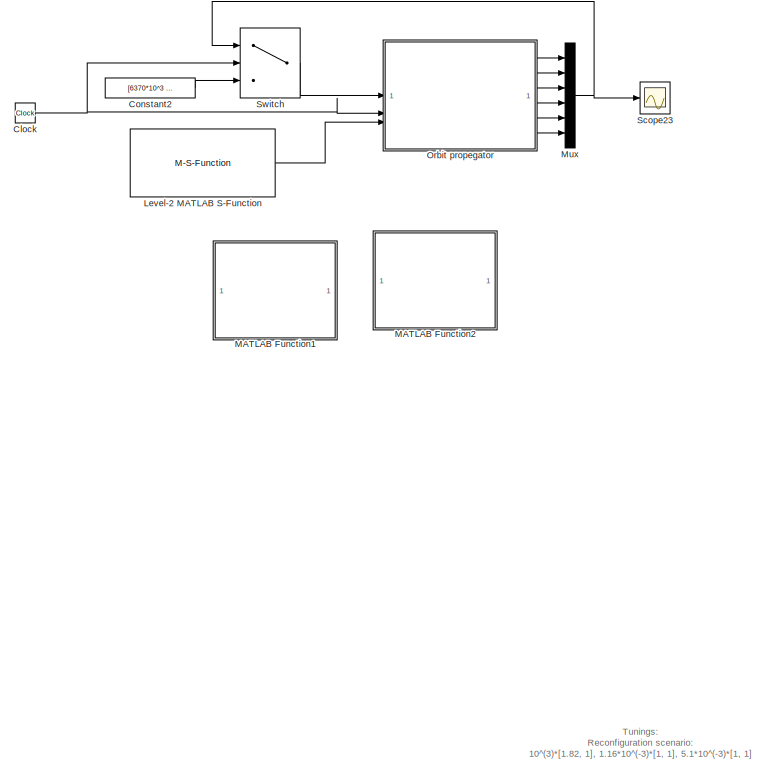
[diagram: root canvas - part 1/4, top left region]
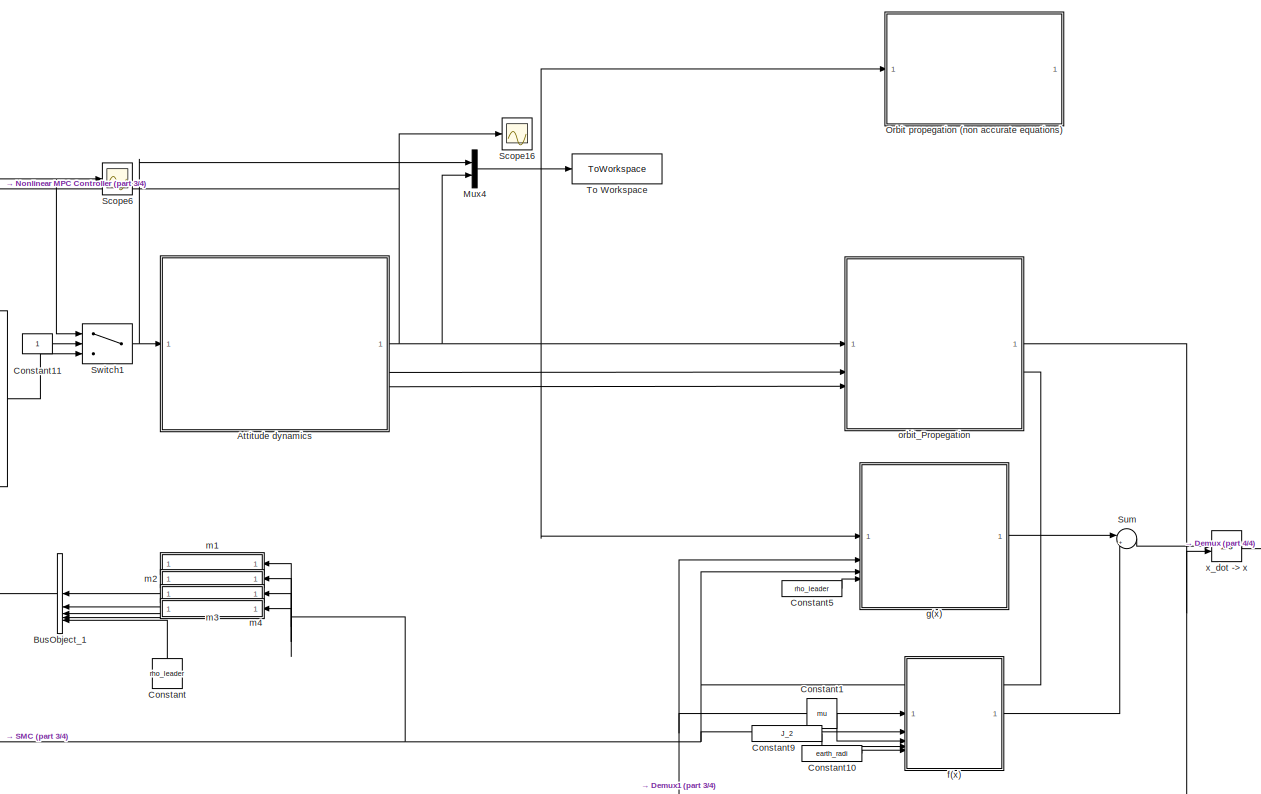
[diagram: root canvas - part 2/4, middle right region]
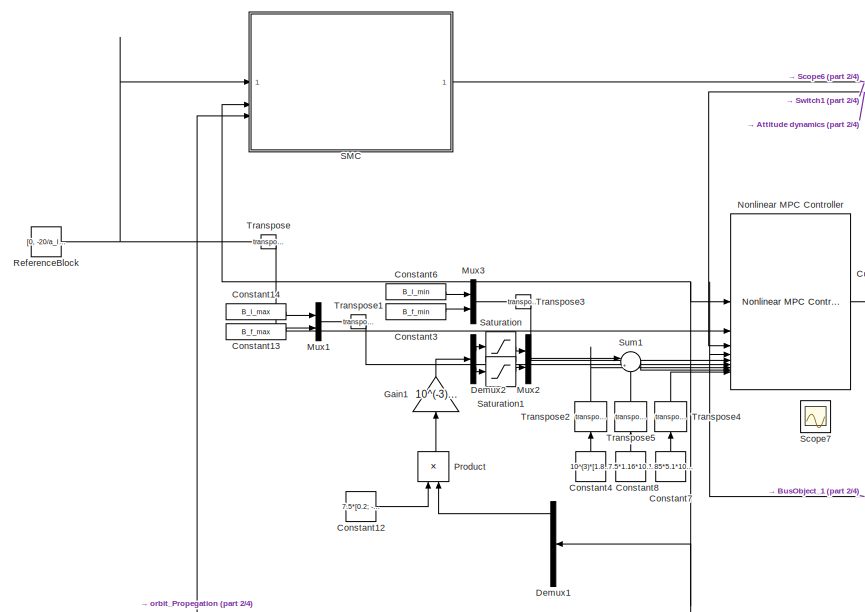
[diagram: root canvas - part 3/4, central region]
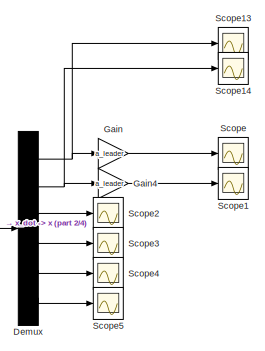
[diagram: root canvas - part 4/4, middle right region]
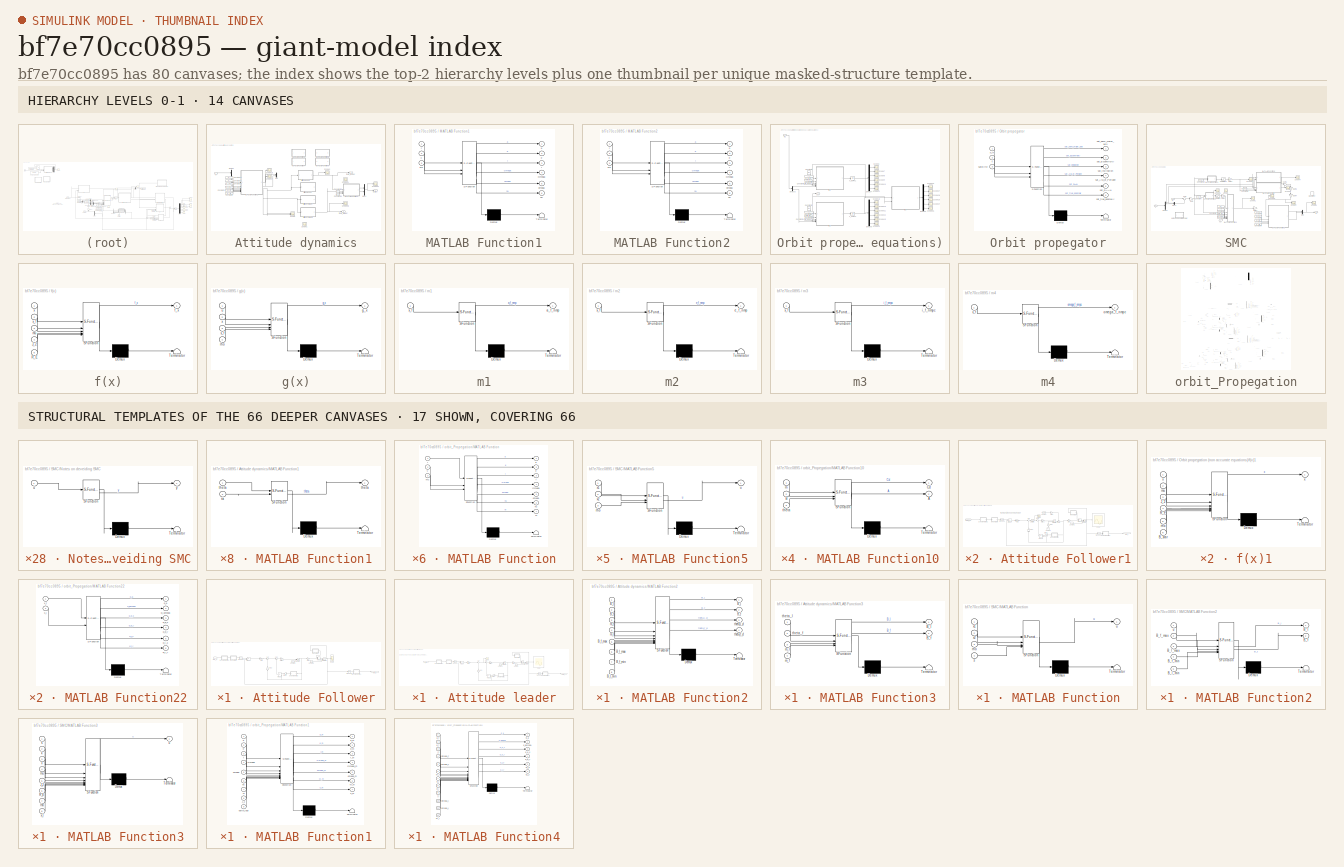
[diagram: thumbnail index - top-2 hierarchy levels (14 canvases) + 17 structural-template representatives of the remaining 66 canvases]
MODEL slx_bf7e70cc0895
KIND model
CONFIG AbsTol = auto
CONFIG EnableMultiTasking = off
CONFIG FixedStep = auto
CONFIG MaxStep = 1.5
CONFIG MinStep = auto
CONFIG RelTol = 1e-9
CONFIG SampleTimeConstraint = Unconstrained
CONFIG SolverName = VariableStepAuto
CONFIG StartTime = 0.0
CONFIG StopTime = 100000.0
BLOCK [SubSystem] Attitude dynamics
BLOCK [SubSystem] Attitude dynamics/Attitude Follower
  Commented = on
BLOCK [Constant] Attitude dynamics/Attitude Follower/Constant1
  Value = q_0
  VectorParams1D = off
BLOCK [Constant] Attitude dynamics/Attitude Follower/Constant2
  Value = w_0
  VectorParams1D = off
BLOCK [Gain] Attitude dynamics/Attitude Follower/Gain
  Gain = -Kp
BLOCK [Gain] Attitude dynamics/Attitude Follower/Gain1
  Gain = 0.5
BLOCK [Gain] Attitude dynamics/Attitude Follower/Gain2
  Gain = -Kd
  NameLocation = right
BLOCK [Integrator] Attitude dynamics/Attitude Follower/Integrator
  ContinuousStateAttributes = 'w'
  InitialConditionSource = external
BLOCK [Integrator] Attitude dynamics/Attitude Follower/Integrator1
  ContinuousStateAttributes = 'Attitude'
  InitialCondition = [0 0 0 1];
  InitialConditionSource = external
BLOCK [SubSystem] Attitude dynamics/Attitude Follower/MATLAB Eq
  ErrorFcn = Stateflow.Translate.translate
  LibrarySourceBlock = simulink/User-Defined\nFunctions/MATLAB Function
  PermitHierarchicalResolution = ExplicitOnly
  SFBlockType = MATLAB Function
  TreatAsAtomicUnit = on
BLOCK [Demux] Attitude dynamics/Attitude Follower/MATLAB Eq/ Demux 
  Outputs = 1
BLOCK [S-Function] Attitude dynamics/Attitude Follower/MATLAB Eq/ SFunction 
  EnableBusSupport = on
  FunctionName = sf_sfun
  PortCounts = [1 2]
  SFcnIsStateOwnerBlock = off
  SFunctionDeploymentMode = off
  Tag = Stateflow S-Function 9
BLOCK [Terminator] Attitude dynamics/Attitude Follower/MATLAB Eq/ Terminator 
BLOCK [Outport] Attitude dynamics/Attitude Follower/MATLAB Eq/E_q
BLOCK [Inport] Attitude dynamics/Attitude Follower/MATLAB Eq/q
BLOCK [SubSystem] Attitude dynamics/Attitude Follower/MATLAB Eq1
  ErrorFcn = Stateflow.Translate.translate
  LibrarySourceBlock = simulink/User-Defined\nFunctions/MATLAB Function
  PermitHierarchicalResolution = ExplicitOnly
  SFBlockType = MATLAB Function
  TreatAsAtomicUnit = on
BLOCK [Demux] Attitude dynamics/Attitude Follower/MATLAB Eq1/ Demux 
  Outputs = 1
BLOCK [S-Function] Attitude dynamics/Attitude Follower/MATLAB Eq1/ SFunction 
  EnableBusSupport = on
  FunctionName = sf_sfun
  PortCounts = [1 2]
  SFcnIsStateOwnerBlock = off
  SFunctionDeploymentMode = off
  Tag = Stateflow S-Function 10
BLOCK [Terminator] Attitude dynamics/Attitude Follower/MATLAB Eq1/ Terminator 
BLOCK [Outport] Attitude dynamics/Attitude Follower/MATLAB Eq1/E_q
BLOCK [Inport] Attitude dynamics/Attitude Follower/MATLAB Eq1/q
BLOCK [SubSystem] Attitude dynamics/Attitude Follower/MATLAB Function
  ErrorFcn = Stateflow.Translate.translate
  LibrarySourceBlock = simulink/User-Defined\nFunctions/MATLAB Function
  NameLocation = top
  PermitHierarchicalResolution = ExplicitOnly
  SFBlockType = MATLAB Function
  TreatAsAtomicUnit = on
BLOCK [Demux] Attitude dynamics/Attitude Follower/MATLAB Function/ Demux 
  Outputs = 1
BLOCK [S-Function] Attitude dynamics/Attitude Follower/MATLAB Function/ SFunction 
  EnableBusSupport = on
  FunctionName = sf_sfun
  PortCounts = [1 2]
  SFcnIsStateOwnerBlock = off
  SFunctionDeploymentMode = off
  Tag = Stateflow S-Function 11
BLOCK [Terminator] Attitude dynamics/Attitude Follower/MATLAB Function/ Terminator 
BLOCK [Outport] Attitude dynamics/Attitude Follower/MATLAB Function/W_x
BLOCK [Inport] Attitude dynamics/Attitude Follower/MATLAB Function/w
BLOCK [SubSystem] Attitude dynamics/Attitude Follower/MATLAB Function1
  ErrorFcn = Stateflow.Translate.translate
  LibrarySourceBlock = simulink/User-Defined\nFunctions/MATLAB Function
  PermitHierarchicalResolution = ExplicitOnly
  SFBlockType = MATLAB Function
  TreatAsAtomicUnit = on
BLOCK [Demux] Attitude dynamics/Attitude Follower/MATLAB Function1/ Demux 
  Outputs = 1
BLOCK [S-Function] Attitude dynamics/Attitude Follower/MATLAB Function1/ SFunction 
  EnableBusSupport = on
  FunctionName = sf_sfun
  PortCounts = [1 2]
  SFcnIsStateOwnerBlock = off
  SFunctionDeploymentMode = off
  Tag = Stateflow S-Function 15
BLOCK [Terminator] Attitude dynamics/Attitude Follower/MATLAB Function1/ Terminator 
BLOCK [Inport] Attitude dynamics/Attitude Follower/MATLAB Function1/quat
BLOCK [Outport] Attitude dynamics/Attitude Follower/MATLAB Function1/theta
BLOCK [SubSystem] Attitude dynamics/Attitude Follower/MATLAB Function4
  ErrorFcn = Stateflow.Translate.translate
  LibrarySourceBlock = simulink/User-Defined\nFunctions/MATLAB Function
  PermitHierarchicalResolution = ExplicitOnly
  SFBlockType = MATLAB Function
  TreatAsAtomicUnit = on
BLOCK [Demux] Attitude dynamics/Attitude Follower/MATLAB Function4/ Demux 
  Outputs = 1
BLOCK [S-Function] Attitude dynamics/Attitude Follower/MATLAB Function4/ SFunction 
  EnableBusSupport = on
  FunctionName = sf_sfun
  PortCounts = [1 2]
  SFcnIsStateOwnerBlock = off
  SFunctionDeploymentMode = off
  Tag = Stateflow S-Function 13
BLOCK [Terminator] Attitude dynamics/Attitude Follower/MATLAB Function4/ Terminator 
BLOCK [Outport] Attitude dynamics/Attitude Follower/MATLAB Function4/qZYX
BLOCK [Inport] Attitude dynamics/Attitude Follower/MATLAB Function4/theta
BLOCK [Gain] Attitude dynamics/Attitude Follower/Multiply1
  Gain = J^(-1)
  Multiplication = Matrix(K*u)
BLOCK [Gain] Attitude dynamics/Attitude Follower/Multiply2
  Gain = J
  Multiplication = Matrix(K*u)
  NameLocation = top
BLOCK [Product] Attitude dynamics/Attitude Follower/Product
  Multiplication = Matrix(*)
BLOCK [Product] Attitude dynamics/Attitude Follower/Product1
  Multiplication = Matrix(*)
  NameLocation = top
BLOCK [Product] Attitude dynamics/Attitude Follower/Product2
  Multiplication = Matrix(*)
BLOCK [Scope] Attitude dynamics/Attitude Follower/Scope
  Floating = off
  NumInputPorts = 1
  ScopeSpecificationString = Simulink.scopes.TimeScopeBlockCfg('CurrentConfiguration', extmgr.ConfigurationSet(extmgr.Configuration('Core','General UI',true),extmgr.Configuration('Core','Source UI',true),extmgr.Configuration('Sources','WiredSimulink',true),extmgr.Configuration('Visuals','Time Domain',true,'SerializedDisplays',{struct('MinYLimReal','-0.125','MaxYLimReal','1.125','YLabelReal','','MinYLimMag','0.00000','MaxYLimM...<+1458ch>
BLOCK [Sum] Attitude dynamics/Attitude Follower/Sum
  Inputs = |++
BLOCK [Sum] Attitude dynamics/Attitude Follower/Sum1
  Inputs = |+-
BLOCK [Math] Attitude dynamics/Attitude Follower/Transpose
  Operator = transpose
BLOCK [Math] Attitude dynamics/Attitude Follower/Transpose1
  Operator = transpose
BLOCK [Outport] Attitude dynamics/Attitude Follower/theta_f
  IconDisplay = Signal name
BLOCK [Inport] Attitude dynamics/Attitude Follower/theta_f_d
BLOCK [SubSystem] Attitude dynamics/Attitude Follower1
BLOCK [Constant] Attitude dynamics/Attitude Follower1/Constant
  Value = [0 ;n_leader; 0]
BLOCK [Constant] Attitude dynamics/Attitude Follower1/Constant1
  Value = q_0*0.25
  VectorParams1D = off
BLOCK [Constant] Attitude dynamics/Attitude Follower1/Constant2
  NameLocation = right
  Value = w_0
  VectorParams1D = off
BLOCK [Gain] Attitude dynamics/Attitude Follower1/Gain
  Gain = -Kp/5000
BLOCK [Gain] Attitude dynamics/Attitude Follower1/Gain1
  Gain = 0.5
BLOCK [Gain] Attitude dynamics/Attitude Follower1/Gain2
  Gain = -Kd/100
  NameLocation = right
BLOCK [Gain] Attitude dynamics/Attitude Follower1/Gain3
BLOCK [Gain] Attitude dynamics/Attitude Follower1/Gain5
  Gain = 0.2
  NameLocation = right
BLOCK [Integrator] Attitude dynamics/Attitude Follower1/Integrator
  InitialConditionSource = external
BLOCK [Integrator] Attitude dynamics/Attitude Follower1/Integrator1
  InitialCondition = [0 0 0 1];
  InitialConditionSource = external
BLOCK [SubSystem] Attitude dynamics/Attitude Follower1/MATLAB Eq
  ErrorFcn = Stateflow.Translate.translate
  LibrarySourceBlock = simulink/User-Defined\nFunctions/MATLAB Function
  PermitHierarchicalResolution = ExplicitOnly
  SFBlockType = MATLAB Function
  TreatAsAtomicUnit = on
BLOCK [Demux] Attitude dynamics/Attitude Follower1/MATLAB Eq/ Demux 
  Outputs = 1
BLOCK [S-Function] Attitude dynamics/Attitude Follower1/MATLAB Eq/ SFunction 
  EnableBusSupport = on
  FunctionName = sf_sfun
  PortCounts = [1 2]
  SFcnIsStateOwnerBlock = off
  SFunctionDeploymentMode = off
  Tag = Stateflow S-Function 67
BLOCK [Terminator] Attitude dynamics/Attitude Follower1/MATLAB Eq/ Terminator 
BLOCK [Outport] Attitude dynamics/Attitude Follower1/MATLAB Eq/E_q
BLOCK [Inport] Attitude dynamics/Attitude Follower1/MATLAB Eq/q
BLOCK [SubSystem] Attitude dynamics/Attitude Follower1/MATLAB Eq1
  ErrorFcn = Stateflow.Translate.translate
  LibrarySourceBlock = simulink/User-Defined\nFunctions/MATLAB Function
  PermitHierarchicalResolution = ExplicitOnly
  SFBlockType = MATLAB Function
  TreatAsAtomicUnit = on
BLOCK [Demux] Attitude dynamics/Attitude Follower1/MATLAB Eq1/ Demux 
  Outputs = 1
BLOCK [S-Function] Attitude dynamics/Attitude Follower1/MATLAB Eq1/ SFunction 
  EnableBusSupport = on
  FunctionName = sf_sfun
  PortCounts = [1 2]
  SFcnIsStateOwnerBlock = off
  SFunctionDeploymentMode = off
  Tag = Stateflow S-Function 68
BLOCK [Terminator] Attitude dynamics/Attitude Follower1/MATLAB Eq1/ Terminator 
BLOCK [Outport] Attitude dynamics/Attitude Follower1/MATLAB Eq1/E_q
BLOCK [Inport] Attitude dynamics/Attitude Follower1/MATLAB Eq1/q
BLOCK [SubSystem] Attitude dynamics/Attitude Follower1/MATLAB Function
  ErrorFcn = Stateflow.Translate.translate
  LibrarySourceBlock = simulink/User-Defined\nFunctions/MATLAB Function
  NameLocation = top
  PermitHierarchicalResolution = ExplicitOnly
  SFBlockType = MATLAB Function
  TreatAsAtomicUnit = on
BLOCK [Demux] Attitude dynamics/Attitude Follower1/MATLAB Function/ Demux 
  Outputs = 1
BLOCK [S-Function] Attitude dynamics/Attitude Follower1/MATLAB Function/ SFunction 
  EnableBusSupport = on
  FunctionName = sf_sfun
  PortCounts = [1 2]
  SFcnIsStateOwnerBlock = off
  SFunctionDeploymentMode = off
  Tag = Stateflow S-Function 69
BLOCK [Terminator] Attitude dynamics/Attitude Follower1/MATLAB Function/ Terminator 
BLOCK [Outport] Attitude dynamics/Attitude Follower1/MATLAB Function/W_x
BLOCK [Inport] Attitude dynamics/Attitude Follower1/MATLAB Function/w
BLOCK [SubSystem] Attitude dynamics/Attitude Follower1/MATLAB Function1
  ErrorFcn = Stateflow.Translate.translate
  LibrarySourceBlock = simulink/User-Defined\nFunctions/MATLAB Function
  PermitHierarchicalResolution = ExplicitOnly
  SFBlockType = MATLAB Function
  TreatAsAtomicUnit = on
BLOCK [Demux] Attitude dynamics/Attitude Follower1/MATLAB Function1/ Demux 
  Outputs = 1
BLOCK [S-Function] Attitude dynamics/Attitude Follower1/MATLAB Function1/ SFunction 
  EnableBusSupport = on
  FunctionName = sf_sfun
  PortCounts = [1 2]
  SFcnIsStateOwnerBlock = off
  SFunctionDeploymentMode = off
  Tag = Stateflow S-Function 70
BLOCK [Terminator] Attitude dynamics/Attitude Follower1/MATLAB Function1/ Terminator 
BLOCK [Inport] Attitude dynamics/Attitude Follower1/MATLAB Function1/quat
BLOCK [Outport] Attitude dynamics/Attitude Follower1/MATLAB Function1/theta
BLOCK [SubSystem] Attitude dynamics/Attitude Follower1/MATLAB Function3
  ErrorFcn = Stateflow.Translate.translate
  LibrarySourceBlock = simulink/User-Defined\nFunctions/MATLAB Function
  PermitHierarchicalResolution = ExplicitOnly
  SFBlockType = MATLAB Function
  TreatAsAtomicUnit = on
BLOCK [Demux] Attitude dynamics/Attitude Follower1/MATLAB Function3/ Demux 
  Outputs = 1
BLOCK [S-Function] Attitude dynamics/Attitude Follower1/MATLAB Function3/ SFunction 
  EnableBusSupport = on
  FunctionName = sf_sfun
  PortCounts = [1 2]
  SFcnIsStateOwnerBlock = off
  SFunctionDeploymentMode = off
  Tag = Stateflow S-Function 71
BLOCK [Terminator] Attitude dynamics/Attitude Follower1/MATLAB Function3/ Terminator 
BLOCK [Outport] Attitude dynamics/Attitude Follower1/MATLAB Function3/qZYX
BLOCK [Inport] Attitude dynamics/Attitude Follower1/MATLAB Function3/theta
BLOCK [Gain] Attitude dynamics/Attitude Follower1/Multiply1
  Gain = J^(-1)
  Multiplication = Matrix(K*u)
BLOCK [Gain] Attitude dynamics/Attitude Follower1/Multiply2
  Gain = J
  Multiplication = Matrix(K*u)
  NameLocation = top
BLOCK [Product] Attitude dynamics/Attitude Follower1/Product
  Multiplication = Matrix(*)
BLOCK [Product] Attitude dynamics/Attitude Follower1/Product1
  Multiplication = Matrix(*)
  NameLocation = top
BLOCK [Product] Attitude dynamics/Attitude Follower1/Product2
  Multiplication = Matrix(*)
BLOCK [Saturate] Attitude dynamics/Attitude Follower1/Saturation
  LowerLimit = -3.2*10^(-3)
  UpperLimit = 3.2*10^(-3)
BLOCK [Scope] Attitude dynamics/Attitude Follower1/Scope
  Floating = off
  NumInputPorts = 1
  ScopeSpecificationString = Simulink.scopes.TimeScopeBlockCfg('CurrentConfiguration', extmgr.ConfigurationSet(extmgr.Configuration('Core','General UI',true),extmgr.Configuration('Core','Source UI',true),extmgr.Configuration('Sources','WiredSimulink',true),extmgr.Configuration('Visuals','Time Domain',true,'SerializedDisplays',{struct('MinYLimReal','-0.125','MaxYLimReal','1.125','YLabelReal','','MinYLimMag','0.00000','MaxYLimM...<+1487ch>  <repeated x3 — deduplicated; at blocks: Scope>
BLOCK [Scope] Attitude dynamics/Attitude Follower1/Scope1
  Floating = off
  NumInputPorts = 1
  ScopeSpecificationString = Simulink.scopes.TimeScopeBlockCfg('CurrentConfiguration', extmgr.ConfigurationSet(extmgr.Configuration('Core','General UI',true),extmgr.Configuration('Core','Source UI',true),extmgr.Configuration('Sources','WiredSimulink',true,'DataLoggingVariableName','ScopeData7'),extmgr.Configuration('Visuals','Time Domain',true,'SerializedDisplays',{struct('MinYLimReal','-0.00037','MaxYLimReal','0.00017','YLab...<+1564ch>
BLOCK [Sum] Attitude dynamics/Attitude Follower1/Sum
  Inputs = |++
BLOCK [Sum] Attitude dynamics/Attitude Follower1/Sum1
  Inputs = |+-
BLOCK [Sum] Attitude dynamics/Attitude Follower1/Sum2
  Inputs = -+|
BLOCK [Math] Attitude dynamics/Attitude Follower1/Transpose
  Operator = transpose
BLOCK [Math] Attitude dynamics/Attitude Follower1/Transpose1
  Operator = transpose
BLOCK [Inport] Attitude dynamics/Attitude Follower1/theta_f_d
  IconDisplay = Port number and signal name
BLOCK [Outport] Attitude dynamics/Attitude Follower1/theta_l
  IconDisplay = Port number and signal name
BLOCK [SubSystem] Attitude dynamics/Attitude leader
  Commented = on
BLOCK [Constant] Attitude dynamics/Attitude leader/Constant1
  Value = q_0
  VectorParams1D = off
BLOCK [Constant] Attitude dynamics/Attitude leader/Constant2
  Value = w_0
  VectorParams1D = off
BLOCK [Gain] Attitude dynamics/Attitude leader/Gain
  Gain = -Kp
BLOCK [Gain] Attitude dynamics/Attitude leader/Gain1
  Gain = 0.5
BLOCK [Gain] Attitude dynamics/Attitude leader/Gain2
  Gain = -Kd
  NameLocation = right
BLOCK [Integrator] Attitude dynamics/Attitude leader/Integrator
  InitialConditionSource = external
BLOCK [Integrator] Attitude dynamics/Attitude leader/Integrator1
  InitialCondition = [0 0 0 1];
  InitialConditionSource = external
BLOCK [SubSystem] Attitude dynamics/Attitude leader/MATLAB Eq
  ErrorFcn = Stateflow.Translate.translate
  LibrarySourceBlock = simulink/User-Defined\nFunctions/MATLAB Function
  PermitHierarchicalResolution = ExplicitOnly
  SFBlockType = MATLAB Function
  TreatAsAtomicUnit = on
BLOCK [Demux] Attitude dynamics/Attitude leader/MATLAB Eq/ Demux 
  Outputs = 1
BLOCK [S-Function] Attitude dynamics/Attitude leader/MATLAB Eq/ SFunction 
  EnableBusSupport = on
  FunctionName = sf_sfun
  PortCounts = [1 2]
  SFcnIsStateOwnerBlock = off
  SFunctionDeploymentMode = off
  Tag = Stateflow S-Function 5
BLOCK [Terminator] Attitude dynamics/Attitude leader/MATLAB Eq/ Terminator 
BLOCK [Outport] Attitude dynamics/Attitude leader/MATLAB Eq/E_q
BLOCK [Inport] Attitude dynamics/Attitude leader/MATLAB Eq/q
BLOCK [SubSystem] Attitude dynamics/Attitude leader/MATLAB Eq1
  ErrorFcn = Stateflow.Translate.translate
  LibrarySourceBlock = simulink/User-Defined\nFunctions/MATLAB Function
  PermitHierarchicalResolution = ExplicitOnly
  SFBlockType = MATLAB Function
  TreatAsAtomicUnit = on
BLOCK [Demux] Attitude dynamics/Attitude leader/MATLAB Eq1/ Demux 
  Outputs = 1
BLOCK [S-Function] Attitude dynamics/Attitude leader/MATLAB Eq1/ SFunction 
  EnableBusSupport = on
  FunctionName = sf_sfun
  PortCounts = [1 2]
  SFcnIsStateOwnerBlock = off
  SFunctionDeploymentMode = off
  Tag = Stateflow S-Function 6
BLOCK [Terminator] Attitude dynamics/Attitude leader/MATLAB Eq1/ Terminator 
BLOCK [Outport] Attitude dynamics/Attitude leader/MATLAB Eq1/E_q
BLOCK [Inport] Attitude dynamics/Attitude leader/MATLAB Eq1/q
BLOCK [SubSystem] Attitude dynamics/Attitude leader/MATLAB Function
  ErrorFcn = Stateflow.Translate.translate
  LibrarySourceBlock = simulink/User-Defined\nFunctions/MATLAB Function
  NameLocation = top
  PermitHierarchicalResolution = ExplicitOnly
  SFBlockType = MATLAB Function
  TreatAsAtomicUnit = on
BLOCK [Demux] Attitude dynamics/Attitude leader/MATLAB Function/ Demux 
  Outputs = 1
BLOCK [S-Function] Attitude dynamics/Attitude leader/MATLAB Function/ SFunction 
  EnableBusSupport = on
  FunctionName = sf_sfun
  PortCounts = [1 2]
  SFcnIsStateOwnerBlock = off
  SFunctionDeploymentMode = off
  Tag = Stateflow S-Function 8
BLOCK [Terminator] Attitude dynamics/Attitude leader/MATLAB Function/ Terminator 
BLOCK [Outport] Attitude dynamics/Attitude leader/MATLAB Function/W_x
BLOCK [Inport] Attitude dynamics/Attitude leader/MATLAB Function/w
BLOCK [SubSystem] Attitude dynamics/Attitude leader/MATLAB Function1
  ErrorFcn = Stateflow.Translate.translate
  LibrarySourceBlock = simulink/User-Defined\nFunctions/MATLAB Function
  PermitHierarchicalResolution = ExplicitOnly
  SFBlockType = MATLAB Function
  TreatAsAtomicUnit = on
BLOCK [Demux] Attitude dynamics/Attitude leader/MATLAB Function1/ Demux 
  Outputs = 1
BLOCK [S-Function] Attitude dynamics/Attitude leader/MATLAB Function1/ SFunction 
  EnableBusSupport = on
  FunctionName = sf_sfun
  PortCounts = [1 2]
  SFcnIsStateOwnerBlock = off
  SFunctionDeploymentMode = off
  Tag = Stateflow S-Function 12
BLOCK [Terminator] Attitude dynamics/Attitude leader/MATLAB Function1/ Terminator 
BLOCK [Inport] Attitude dynamics/Attitude leader/MATLAB Function1/quat
BLOCK [Outport] Attitude dynamics/Attitude leader/MATLAB Function1/theta
BLOCK [SubSystem] Attitude dynamics/Attitude leader/MATLAB Function3
  ErrorFcn = Stateflow.Translate.translate
  LibrarySourceBlock = simulink/User-Defined\nFunctions/MATLAB Function
  PermitHierarchicalResolution = ExplicitOnly
  SFBlockType = MATLAB Function
  TreatAsAtomicUnit = on
BLOCK [Demux] Attitude dynamics/Attitude leader/MATLAB Function3/ Demux 
  Outputs = 1
BLOCK [S-Function] Attitude dynamics/Attitude leader/MATLAB Function3/ SFunction 
  EnableBusSupport = on
  FunctionName = sf_sfun
  PortCounts = [1 2]
  SFcnIsStateOwnerBlock = off
  SFunctionDeploymentMode = off
  Tag = Stateflow S-Function 14
BLOCK [Terminator] Attitude dynamics/Attitude leader/MATLAB Function3/ Terminator 
BLOCK [Outport] Attitude dynamics/Attitude leader/MATLAB Function3/qZYX
BLOCK [Inport] Attitude dynamics/Attitude leader/MATLAB Function3/theta
BLOCK [Gain] Attitude dynamics/Attitude leader/Multiply1
  Gain = J^(-1)
  Multiplication = Matrix(K*u)
BLOCK [Gain] Attitude dynamics/Attitude leader/Multiply2
  Gain = J
  Multiplication = Matrix(K*u)
  NameLocation = top
BLOCK [Product] Attitude dynamics/Attitude leader/Product
  Multiplication = Matrix(*)
BLOCK [Product] Attitude dynamics/Attitude leader/Product1
  Multiplication = Matrix(*)
  NameLocation = top
BLOCK [Product] Attitude dynamics/Attitude leader/Product2
  Multiplication = Matrix(*)
BLOCK [Scope] Attitude dynamics/Attitude leader/Scope
  Floating = off
  NumInputPorts = 1
BLOCK [Scope] Attitude dynamics/Attitude leader/Scope1
  Floating = off
  NumInputPorts = 1
  ScopeSpecificationString = Simulink.scopes.TimeScopeBlockCfg('CurrentConfiguration', extmgr.ConfigurationSet(extmgr.Configuration('Core','General UI',true),extmgr.Configuration('Core','Source UI',true),extmgr.Configuration('Sources','WiredSimulink',true,'DataLoggingVariableName','ScopeData7'),extmgr.Configuration('Visuals','Time Domain',true,'SerializedDisplays',{struct('MinYLimReal','-11.38159','MaxYLimReal','2.43429','YLa...<+1503ch>
BLOCK [Sum] Attitude dynamics/Attitude leader/Sum
  Inputs = |++
BLOCK [Sum] Attitude dynamics/Attitude leader/Sum1
  Inputs = |+-
BLOCK [Math] Attitude dynamics/Attitude leader/Transpose
  Operator = transpose
BLOCK [Math] Attitude dynamics/Attitude leader/Transpose1
  Operator = transpose
BLOCK [Inport] Attitude dynamics/Attitude leader/q_ref
  IconDisplay = Port number and signal name
BLOCK [Outport] Attitude dynamics/Attitude leader/theta_l
  IconDisplay = Port number and signal name
BLOCK [SubSystem] Attitude dynamics/Attitude leader1
BLOCK [Constant] Attitude dynamics/Attitude leader1/Constant
  Value = [0 ;n_leader; 0]
BLOCK [Constant] Attitude dynamics/Attitude leader1/Constant1
  Value = q_0*0.25
  VectorParams1D = off
BLOCK [Constant] Attitude dynamics/Attitude leader1/Constant2
  NameLocation = right
  Value = w_0
  VectorParams1D = off
BLOCK [Gain] Attitude dynamics/Attitude leader1/Gain
  Gain = -Kp/5000
BLOCK [Gain] Attitude dynamics/Attitude leader1/Gain1
  Gain = 0.5
BLOCK [Gain] Attitude dynamics/Attitude leader1/Gain2
  Gain = -Kd/100
  NameLocation = right
BLOCK [Gain] Attitude dynamics/Attitude leader1/Gain3
BLOCK [Gain] Attitude dynamics/Attitude leader1/Gain5
  Gain = 0.2
  NameLocation = right
BLOCK [Integrator] Attitude dynamics/Attitude leader1/Integrator
  InitialConditionSource = external
BLOCK [Integrator] Attitude dynamics/Attitude leader1/Integrator1
  InitialCondition = [0 0 0 1];
  InitialConditionSource = external
BLOCK [SubSystem] Attitude dynamics/Attitude leader1/MATLAB Eq
  ErrorFcn = Stateflow.Translate.translate
  LibrarySourceBlock = simulink/User-Defined\nFunctions/MATLAB Function
  PermitHierarchicalResolution = ExplicitOnly
  SFBlockType = MATLAB Function
  TreatAsAtomicUnit = on
BLOCK [Demux] Attitude dynamics/Attitude leader1/MATLAB Eq/ Demux 
  Outputs = 1
BLOCK [S-Function] Attitude dynamics/Attitude leader1/MATLAB Eq/ SFunction 
  EnableBusSupport = on
  FunctionName = sf_sfun
  PortCounts = [1 2]
  SFcnIsStateOwnerBlock = off
  SFunctionDeploymentMode = off
  Tag = Stateflow S-Function 47
BLOCK [Terminator] Attitude dynamics/Attitude leader1/MATLAB Eq/ Terminator 
BLOCK [Outport] Attitude dynamics/Attitude leader1/MATLAB Eq/E_q
BLOCK [Inport] Attitude dynamics/Attitude leader1/MATLAB Eq/q
BLOCK [SubSystem] Attitude dynamics/Attitude leader1/MATLAB Eq1
  ErrorFcn = Stateflow.Translate.translate
  LibrarySourceBlock = simulink/User-Defined\nFunctions/MATLAB Function
  PermitHierarchicalResolution = ExplicitOnly
  SFBlockType = MATLAB Function
  TreatAsAtomicUnit = on
BLOCK [Demux] Attitude dynamics/Attitude leader1/MATLAB Eq1/ Demux 
  Outputs = 1
BLOCK [S-Function] Attitude dynamics/Attitude leader1/MATLAB Eq1/ SFunction 
  EnableBusSupport = on
  FunctionName = sf_sfun
  PortCounts = [1 2]
  SFcnIsStateOwnerBlock = off
  SFunctionDeploymentMode = off
  Tag = Stateflow S-Function 48
BLOCK [Terminator] Attitude dynamics/Attitude leader1/MATLAB Eq1/ Terminator 
BLOCK [Outport] Attitude dynamics/Attitude leader1/MATLAB Eq1/E_q
BLOCK [Inport] Attitude dynamics/Attitude leader1/MATLAB Eq1/q
BLOCK [SubSystem] Attitude dynamics/Attitude leader1/MATLAB Function
  ErrorFcn = Stateflow.Translate.translate
  LibrarySourceBlock = simulink/User-Defined\nFunctions/MATLAB Function
  NameLocation = top
  PermitHierarchicalResolution = ExplicitOnly
  SFBlockType = MATLAB Function
  TreatAsAtomicUnit = on
BLOCK [Demux] Attitude dynamics/Attitude leader1/MATLAB Function/ Demux 
  Outputs = 1
BLOCK [S-Function] Attitude dynamics/Attitude leader1/MATLAB Function/ SFunction 
  EnableBusSupport = on
  FunctionName = sf_sfun
  PortCounts = [1 2]
  SFcnIsStateOwnerBlock = off
  SFunctionDeploymentMode = off
  Tag = Stateflow S-Function 49
BLOCK [Terminator] Attitude dynamics/Attitude leader1/MATLAB Function/ Terminator 
BLOCK [Outport] Attitude dynamics/Attitude leader1/MATLAB Function/W_x
BLOCK [Inport] Attitude dynamics/Attitude leader1/MATLAB Function/w
BLOCK [SubSystem] Attitude dynamics/Attitude leader1/MATLAB Function1
  ErrorFcn = Stateflow.Translate.translate
  LibrarySourceBlock = simulink/User-Defined\nFunctions/MATLAB Function
  PermitHierarchicalResolution = ExplicitOnly
  SFBlockType = MATLAB Function
  TreatAsAtomicUnit = on
BLOCK [Demux] Attitude dynamics/Attitude leader1/MATLAB Function1/ Demux 
  Outputs = 1
BLOCK [S-Function] Attitude dynamics/Attitude leader1/MATLAB Function1/ SFunction 
  EnableBusSupport = on
  FunctionName = sf_sfun
  PortCounts = [1 2]
  SFcnIsStateOwnerBlock = off
  SFunctionDeploymentMode = off
  Tag = Stateflow S-Function 50
BLOCK [Terminator] Attitude dynamics/Attitude leader1/MATLAB Function1/ Terminator 
BLOCK [Inport] Attitude dynamics/Attitude leader1/MATLAB Function1/quat
BLOCK [Outport] Attitude dynamics/Attitude leader1/MATLAB Function1/theta
BLOCK [SubSystem] Attitude dynamics/Attitude leader1/MATLAB Function3
  ErrorFcn = Stateflow.Translate.translate
  LibrarySourceBlock = simulink/User-Defined\nFunctions/MATLAB Function
  PermitHierarchicalResolution = ExplicitOnly
  SFBlockType = MATLAB Function
  TreatAsAtomicUnit = on
BLOCK [Demux] Attitude dynamics/Attitude leader1/MATLAB Function3/ Demux 
  Outputs = 1
BLOCK [S-Function] Attitude dynamics/Attitude leader1/MATLAB Function3/ SFunction 
  EnableBusSupport = on
  FunctionName = sf_sfun
  PortCounts = [1 2]
  SFcnIsStateOwnerBlock = off
  SFunctionDeploymentMode = off
  Tag = Stateflow S-Function 51
BLOCK [Terminator] Attitude dynamics/Attitude leader1/MATLAB Function3/ Terminator 
BLOCK [Outport] Attitude dynamics/Attitude leader1/MATLAB Function3/qZYX
BLOCK [Inport] Attitude dynamics/Attitude leader1/MATLAB Function3/theta
BLOCK [Gain] Attitude dynamics/Attitude leader1/Multiply1
  Gain = J^(-1)
  Multiplication = Matrix(K*u)
BLOCK [Gain] Attitude dynamics/Attitude leader1/Multiply2
  Gain = J
  Multiplication = Matrix(K*u)
  NameLocation = top
BLOCK [Product] Attitude dynamics/Attitude leader1/Product
  Multiplication = Matrix(*)
BLOCK [Product] Attitude dynamics/Attitude leader1/Product1
  Multiplication = Matrix(*)
  NameLocation = top
BLOCK [Product] Attitude dynamics/Attitude leader1/Product2
  Multiplication = Matrix(*)
BLOCK [Saturate] Attitude dynamics/Attitude leader1/Saturation
  LowerLimit = -3.2*10^(-3)
  UpperLimit = 3.2*10^(-3)
BLOCK [Scope] Attitude dynamics/Attitude leader1/Scope
  Floating = off
  NumInputPorts = 1
BLOCK [Scope] Attitude dynamics/Attitude leader1/Scope1
  Floating = off
  NumInputPorts = 1
  ScopeSpecificationString = Simulink.scopes.TimeScopeBlockCfg('CurrentConfiguration', extmgr.ConfigurationSet(extmgr.Configuration('Core','General UI',true),extmgr.Configuration('Core','Source UI',true),extmgr.Configuration('Sources','WiredSimulink',true,'DataLoggingVariableName','ScopeData7'),extmgr.Configuration('Visuals','Time Domain',true,'SerializedDisplays',{struct('MinYLimReal','-0.00037','MaxYLimReal','0.00017','YLab...<+1564ch>
BLOCK [Sum] Attitude dynamics/Attitude leader1/Sum
  Inputs = |++
BLOCK [Sum] Attitude dynamics/Attitude leader1/Sum1
  Inputs = |+-
BLOCK [Sum] Attitude dynamics/Attitude leader1/Sum2
  Inputs = -+|
BLOCK [Math] Attitude dynamics/Attitude leader1/Transpose
  Operator = transpose
BLOCK [Math] Attitude dynamics/Attitude leader1/Transpose1
  Operator = transpose
BLOCK [Inport] Attitude dynamics/Attitude leader1/q_ref
  IconDisplay = Port number and signal name
BLOCK [Outport] Attitude dynamics/Attitude leader1/theta_l
  IconDisplay = Port number and signal name
BLOCK [Outport] Attitude dynamics/B_l, B_f
BLOCK [Constant] Attitude dynamics/Constant1
  Value = B_f_min
BLOCK [Constant] Attitude dynamics/Constant11
  Value = m_f
BLOCK [Constant] Attitude dynamics/Constant12
  Value = m_l
BLOCK [Constant] Attitude dynamics/Constant13
  Value = B_f_max
BLOCK [Constant] Attitude dynamics/Constant14
  Value = B_l_max
BLOCK [Constant] Attitude dynamics/Constant15
  Value = m_l
BLOCK [Constant] Attitude dynamics/Constant16
  Value = m_f
BLOCK [Constant] Attitude dynamics/Constant2
  Value = B_l_min
BLOCK [Demux] Attitude dynamics/Demux
  Outputs = 2
BLOCK [SubSystem] Attitude dynamics/MATLAB Function1
  Commented = on
  ErrorFcn = Stateflow.Translate.translate
  LibrarySourceBlock = simulink/User-Defined\nFunctions/MATLAB Function
  PermitHierarchicalResolution = ExplicitOnly
  SFBlockType = MATLAB Function
  TreatAsAtomicUnit = on
BLOCK [Demux] Attitude dynamics/MATLAB Function1/ Demux 
  Outputs = 1
BLOCK [S-Function] Attitude dynamics/MATLAB Function1/ SFunction 
  EnableBusSupport = on
  FunctionName = sf_sfun
  PortCounts = [2 2]
  SFcnIsStateOwnerBlock = off
  SFunctionDeploymentMode = off
  Tag = Stateflow S-Function 43
BLOCK [Terminator] Attitude dynamics/MATLAB Function1/ Terminator 
BLOCK [Inport] Attitude dynamics/MATLAB Function1/ta
  Port = 2
BLOCK [Outport] Attitude dynamics/MATLAB Function1/theta
BLOCK [Inport] Attitude dynamics/MATLAB Function1/theta 
BLOCK [SubSystem] Attitude dynamics/MATLAB Function2
  ErrorFcn = Stateflow.Translate.translate
  LibrarySourceBlock = simulink/User-Defined\nFunctions/MATLAB Function
  PermitHierarchicalResolution = ExplicitOnly
  SFBlockType = MATLAB Function
  TreatAsAtomicUnit = on
BLOCK [Demux] Attitude dynamics/MATLAB Function2/ Demux 
  Outputs = 1
BLOCK [S-Function] Attitude dynamics/MATLAB Function2/ SFunction 
  EnableBusSupport = on
  FunctionName = sf_sfun
  PortCounts = [8 5]
  SFcnIsStateOwnerBlock = off
  SFunctionDeploymentMode = off
  Tag = Stateflow S-Function 7
BLOCK [Terminator] Attitude dynamics/MATLAB Function2/ Terminator 
BLOCK [Outport] Attitude dynamics/MATLAB Function2/B_f
  Port = 2
BLOCK [Inport] Attitude dynamics/MATLAB Function2/B_f 
  Port = 2
BLOCK [Inport] Attitude dynamics/MATLAB Function2/B_f_max
  Port = 5
BLOCK [Inport] Attitude dynamics/MATLAB Function2/B_f_min
  Port = 7
BLOCK [Outport] Attitude dynamics/MATLAB Function2/B_l
BLOCK [Inport] Attitude dynamics/MATLAB Function2/B_l 
BLOCK [Inport] Attitude dynamics/MATLAB Function2/B_l_max
  Port = 6
BLOCK [Inport] Attitude dynamics/MATLAB Function2/B_l_min
  Port = 8
BLOCK [Inport] Attitude dynamics/MATLAB Function2/m_f
  Port = 3
BLOCK [Inport] Attitude dynamics/MATLAB Function2/m_l
  Port = 4
BLOCK [Outport] Attitude dynamics/MATLAB Function2/theta_f_d
  Port = 4
BLOCK [Outport] Attitude dynamics/MATLAB Function2/theta_l_d
  Port = 3
BLOCK [SubSystem] Attitude dynamics/MATLAB Function3
  ErrorFcn = Stateflow.Translate.translate
  LibrarySourceBlock = simulink/User-Defined\nFunctions/MATLAB Function
  PermitHierarchicalResolution = ExplicitOnly
  SFBlockType = MATLAB Function
  TreatAsAtomicUnit = on
BLOCK [Demux] Attitude dynamics/MATLAB Function3/ Demux 
  Outputs = 1
BLOCK [S-Function] Attitude dynamics/MATLAB Function3/ SFunction 
  EnableBusSupport = on
  FunctionName = sf_sfun
  PortCounts = [4 3]
  SFcnIsStateOwnerBlock = off
  SFunctionDeploymentMode = off
  Tag = Stateflow S-Function 16
BLOCK [Terminator] Attitude dynamics/MATLAB Function3/ Terminator 
BLOCK [Outport] Attitude dynamics/MATLAB Function3/B_f
  Port = 2
BLOCK [Outport] Attitude dynamics/MATLAB Function3/B_l
BLOCK [Inport] Attitude dynamics/MATLAB Function3/m_f
  Port = 4
BLOCK [Inport] Attitude dynamics/MATLAB Function3/m_l
  Port = 3
BLOCK [Inport] Attitude dynamics/MATLAB Function3/theta_f
  Port = 2
BLOCK [Inport] Attitude dynamics/MATLAB Function3/theta_l
BLOCK [SubSystem] Attitude dynamics/MATLAB Function4
  Commented = on
  ErrorFcn = Stateflow.Translate.translate
  LibrarySourceBlock = simulink/User-Defined\nFunctions/MATLAB Function
  PermitHierarchicalResolution = ExplicitOnly
  SFBlockType = MATLAB Function
  TreatAsAtomicUnit = on
BLOCK [Demux] Attitude dynamics/MATLAB Function4/ Demux 
  Outputs = 1
BLOCK [S-Function] Attitude dynamics/MATLAB Function4/ SFunction 
  EnableBusSupport = on
  FunctionName = sf_sfun
  PortCounts = [2 2]
  SFcnIsStateOwnerBlock = off
  SFunctionDeploymentMode = off
  Tag = Stateflow S-Function 44
BLOCK [Terminator] Attitude dynamics/MATLAB Function4/ Terminator 
BLOCK [Inport] Attitude dynamics/MATLAB Function4/ta
  Port = 2
BLOCK [Outport] Attitude dynamics/MATLAB Function4/theta
BLOCK [Inport] Attitude dynamics/MATLAB Function4/theta 
BLOCK [SubSystem] Attitude dynamics/MATLAB Function5
  Commented = on
  ErrorFcn = Stateflow.Translate.translate
  LibrarySourceBlock = simulink/User-Defined\nFunctions/MATLAB Function
  PermitHierarchicalResolution = ExplicitOnly
  SFBlockType = MATLAB Function
  TreatAsAtomicUnit = on
BLOCK [Demux] Attitude dynamics/MATLAB Function5/ Demux 
  Outputs = 1
BLOCK [S-Function] Attitude dynamics/MATLAB Function5/ SFunction 
  EnableBusSupport = on
  FunctionName = sf_sfun
  PortCounts = [2 2]
  SFcnIsStateOwnerBlock = off
  SFunctionDeploymentMode = off
  Tag = Stateflow S-Function 45
BLOCK [Terminator] Attitude dynamics/MATLAB Function5/ Terminator 
BLOCK [Inport] Attitude dynamics/MATLAB Function5/ta
  Port = 2
BLOCK [Outport] Attitude dynamics/MATLAB Function5/theta
BLOCK [Inport] Attitude dynamics/MATLAB Function5/theta 
BLOCK [SubSystem] Attitude dynamics/MATLAB Function6
  Commented = on
  ErrorFcn = Stateflow.Translate.translate
  LibrarySourceBlock = simulink/User-Defined\nFunctions/MATLAB Function
  PermitHierarchicalResolution = ExplicitOnly
  SFBlockType = MATLAB Function
  TreatAsAtomicUnit = on
BLOCK [Demux] Attitude dynamics/MATLAB Function6/ Demux 
  Outputs = 1
BLOCK [S-Function] Attitude dynamics/MATLAB Function6/ SFunction 
  EnableBusSupport = on
  FunctionName = sf_sfun
  PortCounts = [2 2]
  SFcnIsStateOwnerBlock = off
  SFunctionDeploymentMode = off
  Tag = Stateflow S-Function 46
BLOCK [Terminator] Attitude dynamics/MATLAB Function6/ Terminator 
BLOCK [Inport] Attitude dynamics/MATLAB Function6/ta
  Port = 2
BLOCK [Outport] Attitude dynamics/MATLAB Function6/theta
BLOCK [Inport] Attitude dynamics/MATLAB Function6/theta 
BLOCK [Mux] Attitude dynamics/Mux
  DisplayOption = bar
  Inputs = 2
BLOCK [Mux] Attitude dynamics/Mux1
  DisplayOption = bar
  Inputs = 2
BLOCK [Scope] Attitude dynamics/Scope
  Floating = off
  NumInputPorts = 2
  ScopeSpecificationString = Simulink.scopes.TimeScopeBlockCfg('CurrentConfiguration', extmgr.ConfigurationSet(extmgr.Configuration('Core','General UI',true),extmgr.Configuration('Core','Source UI',true),extmgr.Configuration('Sources','WiredSimulink',true,'DataLoggingVariableName','ScopeData1'),extmgr.Configuration('Visuals','Time Domain',true,'SerializedDisplays',{struct('MinYLimReal','-0.19168','MaxYLimReal','1.72514','YLab...<+1668ch>
BLOCK [Scope] Attitude dynamics/Scope1
  Floating = off
  NumInputPorts = 1
  ScopeSpecificationString = Simulink.scopes.TimeScopeBlockCfg('CurrentConfiguration', extmgr.ConfigurationSet(extmgr.Configuration('Core','General UI',true),extmgr.Configuration('Core','Source UI',true),extmgr.Configuration('Sources','WiredSimulink',true,'DataLoggingVariableName','ScopeData6'),extmgr.Configuration('Visuals','Time Domain',true,'SerializedDisplays',{struct('MinYLimReal','-0.16819','MaxYLimReal','1.51369','YLab...<+1503ch>
BLOCK [Scope] Attitude dynamics/Scope18
  Floating = off
  NumInputPorts = 1
  ScopeSpecificationString = Simulink.scopes.TimeScopeBlockCfg('CurrentConfiguration', extmgr.ConfigurationSet(extmgr.Configuration('Core','General UI',true),extmgr.Configuration('Core','Source UI',true),extmgr.Configuration('Sources','WiredSimulink',true,'DataLoggingVariableName','ScopeData1'),extmgr.Configuration('Visuals','Time Domain',true,'SerializedDisplays',{struct('MinYLimReal','0.0003','MaxYLimReal','0.00183','YLabel...<+1491ch>
BLOCK [Scope] Attitude dynamics/Scope19
  Floating = off
  NumInputPorts = 1
  ScopeSpecificationString = Simulink.scopes.TimeScopeBlockCfg('CurrentConfiguration', extmgr.ConfigurationSet(extmgr.Configuration('Core','General UI',true),extmgr.Configuration('Core','Source UI',true),extmgr.Configuration('Sources','WiredSimulink',true,'DataLoggingVariableName','ScopeData2'),extmgr.Configuration('Visuals','Time Domain',true,'SerializedDisplays',{struct('MinYLimReal','0.00032','MaxYLimReal','0.00197','YLabe...<+1495ch>
BLOCK [Scope] Attitude dynamics/Scope2
  Floating = off
  NumInputPorts = 1
  ScopeSpecificationString = Simulink.scopes.TimeScopeBlockCfg('CurrentConfiguration', extmgr.ConfigurationSet(extmgr.Configuration('Core','General UI',true),extmgr.Configuration('Core','Source UI',true),extmgr.Configuration('Sources','WiredSimulink',true,'DataLoggingVariableName','ScopeData8'),extmgr.Configuration('Visuals','Time Domain',true,'SerializedDisplays',{struct('MinYLimReal','-0.80747','MaxYLimReal','1.68668','YLab...<+1520ch>
BLOCK [Scope] Attitude dynamics/Scope28
  Floating = off
  NumInputPorts = 1
  ScopeSpecificationString = Simulink.scopes.TimeScopeBlockCfg('CurrentConfiguration', extmgr.ConfigurationSet(extmgr.Configuration('Core','General UI',true),extmgr.Configuration('Core','Source UI',true),extmgr.Configuration('Sources','WiredSimulink',true,'DataLoggingVariableName','ScopeData3'),extmgr.Configuration('Visuals','Time Domain',true,'SerializedDisplays',{struct('MinYLimReal','-0.80958','MaxYLimReal','1.58493','YLab...<+1522ch>
BLOCK [Scope] Attitude dynamics/Scope30
  Floating = off
  NumInputPorts = 1
  ScopeSpecificationString = Simulink.scopes.TimeScopeBlockCfg('CurrentConfiguration', extmgr.ConfigurationSet(extmgr.Configuration('Core','General UI',true),extmgr.Configuration('Core','Source UI',true),extmgr.Configuration('Sources','WiredSimulink',true,'DataLoggingVariableName','ScopeData5'),extmgr.Configuration('Visuals','Time Domain',true,'SerializedDisplays',{struct('MinYLimReal','0.00486','MaxYLimReal','0.08677','YLabe...<+1537ch>
BLOCK [Scope] Attitude dynamics/Scope31
  Floating = off
  NumInputPorts = 1
  ScopeSpecificationString = Simulink.scopes.TimeScopeBlockCfg('CurrentConfiguration', extmgr.ConfigurationSet(extmgr.Configuration('Core','General UI',true),extmgr.Configuration('Core','Source UI',true),extmgr.Configuration('Sources','WiredSimulink',true,'DataLoggingVariableName','ScopeData6'),extmgr.Configuration('Visuals','Time Domain',true,'SerializedDisplays',{struct('MinYLimReal','-1.00000','MaxYLimReal','1.00000','YLab...<+1548ch>
BLOCK [Outport] Attitude dynamics/theta_follower
  Port = 2
BLOCK [Outport] Attitude dynamics/theta_leader
  Port = 3
BLOCK [Inport] Attitude dynamics/u
BLOCK [BusCreator] BusObject_1
  DisplayOption = bar
  InheritFromInputs = off
  Inputs = 5
  NameLocation = top
  NonVirtualBus = on
  OutDataTypeStr = Bus: BusObject_2
BLOCK [Clock] Clock
  Commented = on
BLOCK [Constant] Constant
  NameLocation = right
  Value = rho_leader
BLOCK [Constant] Constant1
  Value = mu
BLOCK [Constant] Constant10
  Value = earth_radi
BLOCK [Constant] Constant11
BLOCK [Constant] Constant12
  Value = 7.5*[0.2; -0.2]*9
BLOCK [Constant] Constant13
  Value = B_f_max
BLOCK [Constant] Constant14
  Value = B_l_max
BLOCK [Constant] Constant2
  Commented = on
  Value = [6370*10^3 + 500*10^3; 0.1;\n20; 90;\n10;\n0]
BLOCK [Constant] Constant3
  Value = B_f_min
BLOCK [Constant] Constant4
  NameLocation = right
  Value = 10^(3)*[1.82*1.125, 1]
BLOCK [Constant] Constant5
  Value = rho_leader
BLOCK [Constant] Constant6
  Value = B_l_min
BLOCK [Constant] Constant7
  NameLocation = right
  Value = 1.85*5.1*10^(-3)*[1, 1]
BLOCK [Constant] Constant8
  NameLocation = right
  Value = 7.5*1.16*10^(-3)*[1, 1]
BLOCK [Constant] Constant9
  Value = J_2
BLOCK [Demux] Demux
  Outputs = 6
BLOCK [Demux] Demux1
  NameLocation = top
  Outputs = 6
BLOCK [Demux] Demux2
  Outputs = 2
BLOCK [Gain] Gain
  Gain = a_leader
BLOCK [Gain] Gain1
  Gain = 10^(-3)*10^6
  NameLocation = right
BLOCK [Gain] Gain4
  Gain = a_leader
BLOCK [M-S-Function] Level-2 MATLAB S-Function
  Commented = on
  FunctionName = stk.m
BLOCK [SubSystem] MATLAB Function1
  Commented = on
  ErrorFcn = Stateflow.Translate.translate
  LibrarySourceBlock = simulink/User-Defined\nFunctions/MATLAB Function
  PermitHierarchicalResolution = ExplicitOnly
  SFBlockType = MATLAB Function
  TreatAsAtomicUnit = on
BLOCK [Demux] MATLAB Function1/ Demux 
  Outputs = 1
BLOCK [S-Function] MATLAB Function1/ SFunction 
  EnableBusSupport = off
  FunctionName = sf_sfun
  PortCounts = [3 7]
  SFcnIsStateOwnerBlock = off
  SFunctionDeploymentMode = off
  Tag = Stateflow S-Function 4
BLOCK [Terminator] MATLAB Function1/ Terminator 
BLOCK [Outport] MATLAB Function1/Omega
  Port = 4
BLOCK [Outport] MATLAB Function1/a
BLOCK [Outport] MATLAB Function1/e
  Port = 2
BLOCK [Outport] MATLAB Function1/i
  Port = 3
BLOCK [Inport] MATLAB Function1/mu
  Port = 3
BLOCK [Outport] MATLAB Function1/nu
  Port = 6
BLOCK [Outport] MATLAB Function1/omega
  Port = 5
BLOCK [Inport] MATLAB Function1/r
BLOCK [Inport] MATLAB Function1/v
  Port = 2
BLOCK [SubSystem] MATLAB Function2
  Commented = on
  ErrorFcn = Stateflow.Translate.translate
  LibrarySourceBlock = simulink/User-Defined\nFunctions/MATLAB Function
  PermitHierarchicalResolution = ExplicitOnly
  SFBlockType = MATLAB Function
  TreatAsAtomicUnit = on
BLOCK [Demux] MATLAB Function2/ Demux 
  Outputs = 1
BLOCK [S-Function] MATLAB Function2/ SFunction 
  EnableBusSupport = off
  FunctionName = sf_sfun
  PortCounts = [3 7]
  SFcnIsStateOwnerBlock = off
  SFunctionDeploymentMode = off
  Tag = Stateflow S-Function 17
BLOCK [Terminator] MATLAB Function2/ Terminator 
BLOCK [Outport] MATLAB Function2/Omega
  Port = 4
BLOCK [Outport] MATLAB Function2/a
BLOCK [Outport] MATLAB Function2/e
  Port = 2
BLOCK [Outport] MATLAB Function2/i
  Port = 3
BLOCK [Inport] MATLAB Function2/mu
  Port = 3
BLOCK [Outport] MATLAB Function2/nu
  Port = 6
BLOCK [Outport] MATLAB Function2/omega
  Port = 5
BLOCK [Inport] MATLAB Function2/r
BLOCK [Inport] MATLAB Function2/v
  Port = 2
BLOCK [Mux] Mux
  Commented = on
  DisplayOption = bar
  Inputs = 6
BLOCK [Mux] Mux1
  DisplayOption = bar
  Inputs = 2
BLOCK [Mux] Mux2
  DisplayOption = bar
  Inputs = 2
BLOCK [Mux] Mux3
  DisplayOption = bar
  Inputs = 2
BLOCK [Mux] Mux4
  DisplayOption = bar
  Inputs = 2
BLOCK [Reference] Nonlinear MPC Controller  REF=mpclib/Nonlinear MPC Controller  (lib defined in mdl_ae329e0e0455)
  SourceBlock = mpclib/Nonlinear MPC Controller
  SourceType = NonlinearMPC
BLOCK [SubSystem] Orbit propegation (non accurate equations)
  Commented = on
BLOCK [Constant] Orbit propegation (non accurate equations)/Constant11
  Value = mu
BLOCK [Constant] Orbit propegation (non accurate equations)/Constant12
  Value = earth_radi
BLOCK [Constant] Orbit propegation (non accurate equations)/Constant13
  Value = J_2
BLOCK [Constant] Orbit propegation (non accurate equations)/Constant14
  Value = rho_leader
BLOCK [Constant] Orbit propegation (non accurate equations)/Constant3
  Value = mu
BLOCK [Constant] Orbit propegation (non accurate equations)/Constant4
  Value = earth_radi
BLOCK [Constant] Orbit propegation (non accurate equations)/Constant7
  Value = J_2
BLOCK [Constant] Orbit propegation (non accurate equations)/Constant8
  Value = rho_leader
BLOCK [Demux] Orbit propegation (non accurate equations)/Demux3
  Outputs = 2
BLOCK [Demux] Orbit propegation (non accurate equations)/Demux4
  Outputs = 6
BLOCK [Demux] Orbit propegation (non accurate equations)/Demux5
  Outputs = 6
BLOCK [Demux] Orbit propegation (non accurate equations)/Demux6
  Outputs = 6
BLOCK [Inport] Orbit propegation (non accurate equations)/In1
BLOCK [Scope] Orbit propegation (non accurate equations)/Scope10
  Floating = off
  NumInputPorts = 1
  ScopeSpecificationString = Simulink.scopes.TimeScopeBlockCfg('CurrentConfiguration', extmgr.ConfigurationSet(extmgr.Configuration('Core','General UI',true),extmgr.Configuration('Core','Source UI',true),extmgr.Configuration('Sources','WiredSimulink',true,'DataLoggingVariableName','ScopeData12'),extmgr.Configuration('Visuals','Time Domain',true,'SerializedDisplays',{struct('MinYLimReal','-0.12632','MaxYLimReal','0.01404','YLa...<+1442ch>
BLOCK [Scope] Orbit propegation (non accurate equations)/Scope11
  Floating = off
  NumInputPorts = 1
  ScopeSpecificationString = Simulink.scopes.TimeScopeBlockCfg('CurrentConfiguration', extmgr.ConfigurationSet(extmgr.Configuration('Core','General UI',true),extmgr.Configuration('Core','Source UI',true),extmgr.Configuration('Sources','WiredSimulink',true,'DataLoggingVariableName','ScopeData13'),extmgr.Configuration('Visuals','Time Domain',true,'SerializedDisplays',{struct('MinYLimReal','10.00000','MaxYLimReal','30.00000','YL...<+1448ch>
BLOCK [Scope] Orbit propegation (non accurate equations)/Scope15
  Floating = off
  NumInputPorts = 1
  ScopeSpecificationString = Simulink.scopes.TimeScopeBlockCfg('CurrentConfiguration', extmgr.ConfigurationSet(extmgr.Configuration('Core','General UI',true),extmgr.Configuration('Core','Source UI',true),extmgr.Configuration('Sources','WiredSimulink',true,'DataLoggingVariableName','ScopeData14'),extmgr.Configuration('Visuals','Time Domain',true,'SerializedDisplays',{struct('MinYLimReal','-0.12632','MaxYLimReal','0.01404','YLa...<+1442ch>
BLOCK [Scope] Orbit propegation (non accurate equations)/Scope16
  Floating = off
  NumInputPorts = 1
  ScopeSpecificationString = Simulink.scopes.TimeScopeBlockCfg('CurrentConfiguration', extmgr.ConfigurationSet(extmgr.Configuration('Core','General UI',true),extmgr.Configuration('Core','Source UI',true),extmgr.Configuration('Sources','WiredSimulink',true,'DataLoggingVariableName','ScopeData15'),extmgr.Configuration('Visuals','Time Domain',true,'SerializedDisplays',{struct('MinYLimReal','10.00000','MaxYLimReal','30.00000','YL...<+1448ch>
BLOCK [Scope] Orbit propegation (non accurate equations)/Scope18
  Floating = off
  NumInputPorts = 1
  ScopeSpecificationString = Simulink.scopes.TimeScopeBlockCfg('CurrentConfiguration', extmgr.ConfigurationSet(extmgr.Configuration('Core','General UI',true),extmgr.Configuration('Core','Source UI',true),extmgr.Configuration('Sources','WiredSimulink',true,'DataLoggingVariableName','ScopeData16'),extmgr.Configuration('Visuals','Time Domain',true,'SerializedDisplays',{struct('MinYLimReal','6870981.79366','MaxYLimReal','6871002....<+1487ch>
BLOCK [Scope] Orbit propegation (non accurate equations)/Scope19
  Floating = off
  NumInputPorts = 1
  ScopeSpecificationString = Simulink.scopes.TimeScopeBlockCfg('CurrentConfiguration', extmgr.ConfigurationSet(extmgr.Configuration('Core','General UI',true),extmgr.Configuration('Core','Source UI',true),extmgr.Configuration('Sources','WiredSimulink',true,'DataLoggingVariableName','ScopeData17'),extmgr.Configuration('Visuals','Time Domain',true,'SerializedDisplays',{struct('MinYLimReal','-276634435.7736','MaxYLimReal','248970...<+1502ch>
BLOCK [Scope] Orbit propegation (non accurate equations)/Scope21
  Floating = off
  NumInputPorts = 1
  ScopeSpecificationString = Simulink.scopes.TimeScopeBlockCfg('CurrentConfiguration', extmgr.ConfigurationSet(extmgr.Configuration('Core','General UI',true),extmgr.Configuration('Core','Source UI',true),extmgr.Configuration('Sources','WiredSimulink',true,'DataLoggingVariableName','ScopeData18'),extmgr.Configuration('Visuals','Time Domain',true,'SerializedDisplays',{struct('MinYLimReal','0.4999987','MaxYLimReal','0.5000001','...<+1456ch>
BLOCK [Scope] Orbit propegation (non accurate equations)/Scope22
  Floating = off
  NumInputPorts = 1
  ScopeSpecificationString = Simulink.scopes.TimeScopeBlockCfg('CurrentConfiguration', extmgr.ConfigurationSet(extmgr.Configuration('Core','General UI',true),extmgr.Configuration('Core','Source UI',true),extmgr.Configuration('Sources','WiredSimulink',true,'DataLoggingVariableName','ScopeData19'),extmgr.Configuration('Visuals','Time Domain',true,'SerializedDisplays',{struct('MinYLimReal','-0.0259','MaxYLimReal','0.00288','YLab...<+1438ch>
BLOCK [Scope] Orbit propegation (non accurate equations)/Scope24
  Floating = off
  NumInputPorts = 1
  ScopeSpecificationString = Simulink.scopes.TimeScopeBlockCfg('CurrentConfiguration', extmgr.ConfigurationSet(extmgr.Configuration('Core','General UI',true),extmgr.Configuration('Core','Source UI',true),extmgr.Configuration('Sources','WiredSimulink',true,'DataLoggingVariableName','ScopeData21'),extmgr.Configuration('Visuals','Time Domain',true,'SerializedDisplays',{struct('MinYLimReal','-1.00000','MaxYLimReal','1.00000','YLa...<+1442ch>
BLOCK [Scope] Orbit propegation (non accurate equations)/Scope25
  Floating = off
  NumInputPorts = 1
  ScopeSpecificationString = Simulink.scopes.TimeScopeBlockCfg('CurrentConfiguration', extmgr.ConfigurationSet(extmgr.Configuration('Core','General UI',true),extmgr.Configuration('Core','Source UI',true),extmgr.Configuration('Sources','WiredSimulink',true,'DataLoggingVariableName','ScopeData22'),extmgr.Configuration('Visuals','Time Domain',true,'SerializedDisplays',{struct('MinYLimReal','-0.000000007','MaxYLimReal','0.0000000...<+1474ch>
BLOCK [Scope] Orbit propegation (non accurate equations)/Scope26
  Floating = off
  NumInputPorts = 1
  ScopeSpecificationString = Simulink.scopes.TimeScopeBlockCfg('CurrentConfiguration', extmgr.ConfigurationSet(extmgr.Configuration('Core','General UI',true),extmgr.Configuration('Core','Source UI',true),extmgr.Configuration('Sources','WiredSimulink',true,'DataLoggingVariableName','ScopeData23'),extmgr.Configuration('Visuals','Time Domain',true,'SerializedDisplays',{struct('MinYLimReal','-0.000001','MaxYLimReal','0.0000001','...<+1492ch>
BLOCK [Scope] Orbit propegation (non accurate equations)/Scope27
  Floating = off
  NumInputPorts = 1
  ScopeSpecificationString = Simulink.scopes.TimeScopeBlockCfg('CurrentConfiguration', extmgr.ConfigurationSet(extmgr.Configuration('Core','General UI',true),extmgr.Configuration('Core','Source UI',true),extmgr.Configuration('Sources','WiredSimulink',true,'DataLoggingVariableName','ScopeData24'),extmgr.Configuration('Visuals','Time Domain',true,'SerializedDisplays',{struct('MinYLimReal','-41.7082','MaxYLimReal','375.37381','Y...<+1501ch>
BLOCK [Scope] Orbit propegation (non accurate equations)/Scope28
  Floating = off
  NumInputPorts = 1
  ScopeSpecificationString = Simulink.scopes.TimeScopeBlockCfg('CurrentConfiguration', extmgr.ConfigurationSet(extmgr.Configuration('Core','General UI',true),extmgr.Configuration('Core','Source UI',true),extmgr.Configuration('Sources','WiredSimulink',true,'DataLoggingVariableName','ScopeData25'),extmgr.Configuration('Visuals','Time Domain',true,'SerializedDisplays',{struct('MinYLimReal','-0.0000006','MaxYLimReal','0.0000005',...<+1458ch>
BLOCK [Scope] Orbit propegation (non accurate equations)/Scope29
  Floating = off
  NumInputPorts = 1
  ScopeSpecificationString = Simulink.scopes.TimeScopeBlockCfg('CurrentConfiguration', extmgr.ConfigurationSet(extmgr.Configuration('Core','General UI',true),extmgr.Configuration('Core','Source UI',true),extmgr.Configuration('Sources','WiredSimulink',true,'DataLoggingVariableName','ScopeData26'),extmgr.Configuration('Visuals','Time Domain',true,'SerializedDisplays',{struct('MinYLimReal','-0.000000002','MaxYLimReal','0.0000000...<+1474ch>
BLOCK [Scope] Orbit propegation (non accurate equations)/Scope6
  Floating = off
  NumInputPorts = 1
  ScopeSpecificationString = Simulink.scopes.TimeScopeBlockCfg('CurrentConfiguration', extmgr.ConfigurationSet(extmgr.Configuration('Core','General UI',true),extmgr.Configuration('Core','Source UI',true),extmgr.Configuration('Sources','WiredSimulink',true,'DataLoggingVariableName','ScopeData8'),extmgr.Configuration('Visuals','Time Domain',true,'SerializedDisplays',{struct('MinYLimReal','6870981.79366','MaxYLimReal','6871002.0...<+1487ch>
BLOCK [Scope] Orbit propegation (non accurate equations)/Scope7
  Floating = off
  NumInputPorts = 1
  ScopeSpecificationString = Simulink.scopes.TimeScopeBlockCfg('CurrentConfiguration', extmgr.ConfigurationSet(extmgr.Configuration('Core','General UI',true),extmgr.Configuration('Core','Source UI',true),extmgr.Configuration('Sources','WiredSimulink',true,'DataLoggingVariableName','ScopeData9'),extmgr.Configuration('Visuals','Time Domain',true,'SerializedDisplays',{struct('MinYLimReal','-276634435.7736','MaxYLimReal','2489709...<+1501ch>
BLOCK [Scope] Orbit propegation (non accurate equations)/Scope8
  Floating = off
  NumInputPorts = 1
  ScopeSpecificationString = Simulink.scopes.TimeScopeBlockCfg('CurrentConfiguration', extmgr.ConfigurationSet(extmgr.Configuration('Core','General UI',true),extmgr.Configuration('Core','Source UI',true),extmgr.Configuration('Sources','WiredSimulink',true,'DataLoggingVariableName','ScopeData10'),extmgr.Configuration('Visuals','Time Domain',true,'SerializedDisplays',{struct('MinYLimReal','0.4999987','MaxYLimReal','0.5000001','...<+1456ch>
BLOCK [Scope] Orbit propegation (non accurate equations)/Scope9
  Floating = off
  NumInputPorts = 1
  ScopeSpecificationString = Simulink.scopes.TimeScopeBlockCfg('CurrentConfiguration', extmgr.ConfigurationSet(extmgr.Configuration('Core','General UI',true),extmgr.Configuration('Core','Source UI',true),extmgr.Configuration('Sources','WiredSimulink',true,'DataLoggingVariableName','ScopeData11'),extmgr.Configuration('Visuals','Time Domain',true,'SerializedDisplays',{struct('MinYLimReal','-0.0259','MaxYLimReal','0.00288','YLab...<+1438ch>
BLOCK [SubSystem] Orbit propegation (non accurate equations)/f(x)1
  ErrorFcn = Stateflow.Translate.translate
  LibrarySourceBlock = simulink/User-Defined\nFunctions/MATLAB Function
  PermitHierarchicalResolution = ExplicitOnly
  SFBlockType = MATLAB Function
  TreatAsAtomicUnit = on
BLOCK [Demux] Orbit propegation (non accurate equations)/f(x)1/ Demux 
  Outputs = 1
BLOCK [S-Function] Orbit propegation (non accurate equations)/f(x)1/ SFunction 
  EnableBusSupport = on
  FunctionName = sf_sfun
  PortCounts = [6 2]
  SFcnIsStateOwnerBlock = off
  SFunctionDeploymentMode = off
  Tag = Stateflow S-Function 20
BLOCK [Terminator] Orbit propegation (non accurate equations)/f(x)1/ Terminator 
BLOCK [Inport] Orbit propegation (non accurate equations)/f(x)1/B_star
  Port = 6
BLOCK [Inport] Orbit propegation (non accurate equations)/f(x)1/J_2
  Port = 3
BLOCK [Inport] Orbit propegation (non accurate equations)/f(x)1/R_E
  Port = 4
BLOCK [Inport] Orbit propegation (non accurate equations)/f(x)1/mu
  Port = 2
BLOCK [Inport] Orbit propegation (non accurate equations)/f(x)1/rho
  Port = 5
BLOCK [Outport] Orbit propegation (non accurate equations)/f(x)1/x
BLOCK [Inport] Orbit propegation (non accurate equations)/f(x)1/x 
BLOCK [SubSystem] Orbit propegation (non accurate equations)/f(x)2
  ErrorFcn = Stateflow.Translate.translate
  LibrarySourceBlock = simulink/User-Defined\nFunctions/MATLAB Function
  PermitHierarchicalResolution = ExplicitOnly
  SFBlockType = MATLAB Function
  TreatAsAtomicUnit = on
BLOCK [Demux] Orbit propegation (non accurate equations)/f(x)2/ Demux 
  Outputs = 1
BLOCK [S-Function] Orbit propegation (non accurate equations)/f(x)2/ SFunction 
  EnableBusSupport = on
  FunctionName = sf_sfun
  PortCounts = [6 2]
  SFcnIsStateOwnerBlock = off
  SFunctionDeploymentMode = off
  Tag = Stateflow S-Function 21
BLOCK [Terminator] Orbit propegation (non accurate equations)/f(x)2/ Terminator 
BLOCK [Inport] Orbit propegation (non accurate equations)/f(x)2/B_star
  Port = 6
BLOCK [Inport] Orbit propegation (non accurate equations)/f(x)2/J_2
  Port = 3
BLOCK [Inport] Orbit propegation (non accurate equations)/f(x)2/R_E
  Port = 4
BLOCK [Inport] Orbit propegation (non accurate equations)/f(x)2/mu
  Port = 2
BLOCK [Inport] Orbit propegation (non accurate equations)/f(x)2/rho
  Port = 5
BLOCK [Outport] Orbit propegation (non accurate equations)/f(x)2/x
BLOCK [Inport] Orbit propegation (non accurate equations)/f(x)2/x 
BLOCK [SubSystem] Orbit propegation (non accurate equations)/f(x)3
  ErrorFcn = Stateflow.Translate.translate
  LibrarySourceBlock = simulink/User-Defined\nFunctions/MATLAB Function
  PermitHierarchicalResolution = ExplicitOnly
  SFBlockType = MATLAB Function
  TreatAsAtomicUnit = on
BLOCK [Demux] Orbit propegation (non accurate equations)/f(x)3/ Demux 
  Outputs = 1
BLOCK [S-Function] Orbit propegation (non accurate equations)/f(x)3/ SFunction 
  EnableBusSupport = on
  FunctionName = sf_sfun
  PortCounts = [2 2]
  SFcnIsStateOwnerBlock = off
  SFunctionDeploymentMode = off
  Tag = Stateflow S-Function 22
BLOCK [Terminator] Orbit propegation (non accurate equations)/f(x)3/ Terminator 
BLOCK [Outport] Orbit propegation (non accurate equations)/f(x)3/dx
BLOCK [Inport] Orbit propegation (non accurate equations)/f(x)3/x_f
  Port = 2
BLOCK [Inport] Orbit propegation (non accurate equations)/f(x)3/x_l
BLOCK [Integrator] Orbit propegation (non accurate equations)/x_dot -> x1
  InitialCondition = x_l_prop
BLOCK [Integrator] Orbit propegation (non accurate equations)/x_dot -> x2
  InitialCondition = x_f_prop
BLOCK [Outport] Orbit propegation (non accurate equations)/x_f
BLOCK [SubSystem] Orbit propegator
  Commented = on
  ErrorFcn = Stateflow.Translate.translate
  LibrarySourceBlock = simulink/User-Defined\nFunctions/MATLAB Function
  PermitHierarchicalResolution = ExplicitOnly
  SFBlockType = MATLAB Function
  TreatAsAtomicUnit = on
BLOCK [Demux] Orbit propegator/ Demux 
  Outputs = 1
BLOCK [S-Function] Orbit propegator/ SFunction 
  EnableBusSupport = off
  FunctionName = sf_sfun
  PortCounts = [3 7]
  SFcnIsStateOwnerBlock = off
  SFunctionDeploymentMode = off
  Tag = Stateflow S-Function 23
BLOCK [Terminator] Orbit propegator/ Terminator 
BLOCK [Outport] Orbit propegator/sat_Arg_of_Perigee
  Port = 4
BLOCK [Outport] Orbit propegator/sat_Eccentricity
  Port = 2
BLOCK [Outport] Orbit propegator/sat_RAAN
  Port = 5
BLOCK [Outport] Orbit propegator/sat_inclination
  Port = 3
BLOCK [Outport] Orbit propegator/sat_semi_major_axis
BLOCK [Outport] Orbit propegator/sat_true_anomally
  Port = 6
BLOCK [Inport] Orbit propegator/satellite
  Port = 3
BLOCK [Inport] Orbit propegator/t
  Port = 2
BLOCK [Inport] Orbit propegator/x_in
BLOCK [Product] Product
  NameLocation = right
BLOCK [Constant] ReferenceBlock
  Value = [0, -20/a_leader]
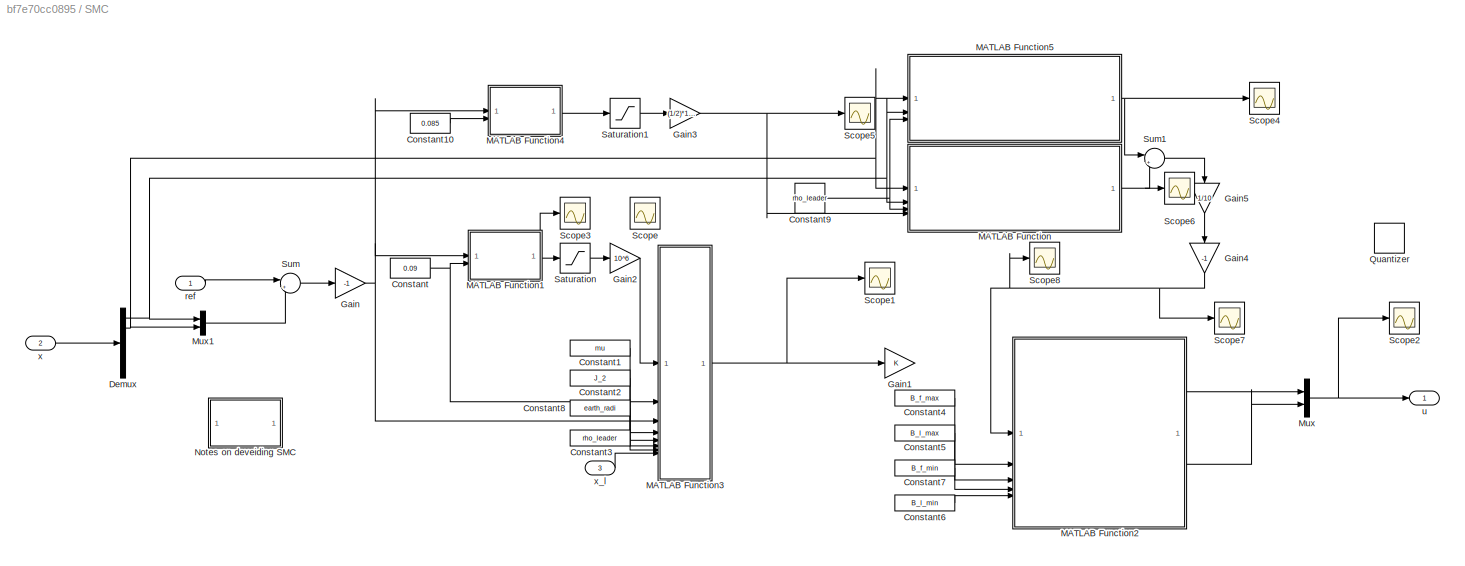
BLOCK [SubSystem] SMC
BLOCK [Constant] SMC/Constant
  Value = 0.09
BLOCK [Constant] SMC/Constant1
  Value = mu
BLOCK [Constant] SMC/Constant10
  Value = 0.085
BLOCK [Constant] SMC/Constant2
  Value = J_2
BLOCK [Constant] SMC/Constant3
  Value = rho_leader
BLOCK [Constant] SMC/Constant4
  Value = B_f_max
BLOCK [Constant] SMC/Constant5
  Value = B_l_max
BLOCK [Constant] SMC/Constant6
  Value = B_l_min
BLOCK [Constant] SMC/Constant7
  Value = B_f_min
BLOCK [Constant] SMC/Constant8
  Value = earth_radi
BLOCK [Constant] SMC/Constant9
  Value = rho_leader
BLOCK [Demux] SMC/Demux
  Outputs = 6
BLOCK [Gain] SMC/Gain
  Gain = -1
BLOCK [Gain] SMC/Gain1
BLOCK [Gain] SMC/Gain2
  Gain = 10^6
BLOCK [Gain] SMC/Gain3
  Gain = (1/2)*10^6
BLOCK [Gain] SMC/Gain4
  Gain = -1
  NameLocation = left
BLOCK [Gain] SMC/Gain5
  Gain = 1/10
  NameLocation = left
BLOCK [SubSystem] SMC/MATLAB Function
  ErrorFcn = Stateflow.Translate.translate
  PermitHierarchicalResolution = ExplicitOnly
  SFBlockType = MATLAB Function
  TreatAsAtomicUnit = on
BLOCK [Demux] SMC/MATLAB Function/ Demux 
  Outputs = 1
BLOCK [S-Function] SMC/MATLAB Function/ SFunction 
  EnableBusSupport = on
  FunctionName = sf_sfun
  PortCounts = [4 2]
  SFcnIsStateOwnerBlock = off
  SFunctionDeploymentMode = off
  Tag = Stateflow S-Function 64
BLOCK [Terminator] SMC/MATLAB Function/ Terminator 
BLOCK [Inport] SMC/MATLAB Function/rho
  Port = 3
BLOCK [Inport] SMC/MATLAB Function/s
  Port = 4
BLOCK [Outport] SMC/MATLAB Function/u
BLOCK [Inport] SMC/MATLAB Function/x1
BLOCK [Inport] SMC/MATLAB Function/x2
  Port = 2
BLOCK [SubSystem] SMC/MATLAB Function1
  ErrorFcn = Stateflow.Translate.translate
  PermitHierarchicalResolution = ExplicitOnly
  SFBlockType = MATLAB Function
  TreatAsAtomicUnit = on
BLOCK [Demux] SMC/MATLAB Function1/ Demux 
  Outputs = 1
BLOCK [S-Function] SMC/MATLAB Function1/ SFunction 
  EnableBusSupport = on
  FunctionName = sf_sfun
  PortCounts = [2 2]
  SFcnIsStateOwnerBlock = off
  SFunctionDeploymentMode = off
  Tag = Stateflow S-Function 40
BLOCK [Terminator] SMC/MATLAB Function1/ Terminator 
BLOCK [Inport] SMC/MATLAB Function1/k
  Port = 2
BLOCK [Outport] SMC/MATLAB Function1/s
BLOCK [Inport] SMC/MATLAB Function1/x
BLOCK [SubSystem] SMC/MATLAB Function2
  ErrorFcn = Stateflow.Translate.translate
  LibrarySourceBlock = simulink/User-Defined\nFunctions/MATLAB Function
  PermitHierarchicalResolution = ExplicitOnly
  SFBlockType = MATLAB Function
  TreatAsAtomicUnit = on
BLOCK [Demux] SMC/MATLAB Function2/ Demux 
  Outputs = 1
BLOCK [S-Function] SMC/MATLAB Function2/ SFunction 
  EnableBusSupport = on
  FunctionName = sf_sfun
  PortCounts = [5 3]
  SFcnIsStateOwnerBlock = off
  SFunctionDeploymentMode = off
  Tag = Stateflow S-Function 41
BLOCK [Terminator] SMC/MATLAB Function2/ Terminator 
BLOCK [Outport] SMC/MATLAB Function2/B_f
  Port = 2
BLOCK [Inport] SMC/MATLAB Function2/B_f_max
  Port = 2
BLOCK [Inport] SMC/MATLAB Function2/B_f_min
  Port = 4
BLOCK [Outport] SMC/MATLAB Function2/B_l
BLOCK [Inport] SMC/MATLAB Function2/B_l_max
  Port = 3
BLOCK [Inport] SMC/MATLAB Function2/B_l_min
  Port = 5
BLOCK [Inport] SMC/MATLAB Function2/u
BLOCK [SubSystem] SMC/MATLAB Function3
  ErrorFcn = Stateflow.Translate.translate
  PermitHierarchicalResolution = ExplicitOnly
  SFBlockType = MATLAB Function
  TreatAsAtomicUnit = on
BLOCK [Demux] SMC/MATLAB Function3/ Demux 
  Outputs = 1
BLOCK [S-Function] SMC/MATLAB Function3/ SFunction 
  EnableBusSupport = on
  FunctionName = sf_sfun
  PortCounts = [8 2]
  SFcnIsStateOwnerBlock = off
  SFunctionDeploymentMode = off
  Tag = Stateflow S-Function 42
BLOCK [Terminator] SMC/MATLAB Function3/ Terminator 
BLOCK [Inport] SMC/MATLAB Function3/J_2
  Port = 5
BLOCK [Inport] SMC/MATLAB Function3/R_E
  Port = 6
BLOCK [Inport] SMC/MATLAB Function3/k
  Port = 2
BLOCK [Inport] SMC/MATLAB Function3/mu
  Port = 4
BLOCK [Inport] SMC/MATLAB Function3/rho
  Port = 7
BLOCK [Inport] SMC/MATLAB Function3/s
BLOCK [Outport] SMC/MATLAB Function3/u
BLOCK [Inport] SMC/MATLAB Function3/x
  Port = 3
BLOCK [Inport] SMC/MATLAB Function3/x_l
  Port = 8
BLOCK [SubSystem] SMC/MATLAB Function4
  ErrorFcn = Stateflow.Translate.translate
  PermitHierarchicalResolution = ExplicitOnly
  SFBlockType = MATLAB Function
  TreatAsAtomicUnit = on
BLOCK [Demux] SMC/MATLAB Function4/ Demux 
  Outputs = 1
BLOCK [S-Function] SMC/MATLAB Function4/ SFunction 
  EnableBusSupport = on
  FunctionName = sf_sfun
  PortCounts = [2 2]
  SFcnIsStateOwnerBlock = off
  SFunctionDeploymentMode = off
  Tag = Stateflow S-Function 65
BLOCK [Terminator] SMC/MATLAB Function4/ Terminator 
BLOCK [Inport] SMC/MATLAB Function4/k
  Port = 2
BLOCK [Outport] SMC/MATLAB Function4/s
BLOCK [Inport] SMC/MATLAB Function4/x
BLOCK [SubSystem] SMC/MATLAB Function5
  ErrorFcn = Stateflow.Translate.translate
  PermitHierarchicalResolution = ExplicitOnly
  SFBlockType = MATLAB Function
  TreatAsAtomicUnit = on
BLOCK [Demux] SMC/MATLAB Function5/ Demux 
  Outputs = 1
BLOCK [S-Function] SMC/MATLAB Function5/ SFunction 
  EnableBusSupport = on
  FunctionName = sf_sfun
  PortCounts = [3 2]
  SFcnIsStateOwnerBlock = off
  SFunctionDeploymentMode = off
  Tag = Stateflow S-Function 66
BLOCK [Terminator] SMC/MATLAB Function5/ Terminator 
BLOCK [Inport] SMC/MATLAB Function5/rho
  Port = 3
BLOCK [Outport] SMC/MATLAB Function5/u
BLOCK [Inport] SMC/MATLAB Function5/x1
BLOCK [Inport] SMC/MATLAB Function5/x2
  Port = 2
BLOCK [Mux] SMC/Mux
  DisplayOption = bar
  Inputs = 2
BLOCK [Mux] SMC/Mux1
  DisplayOption = bar
  Inputs = 2
BLOCK [SubSystem] SMC/Notes on deveiding SMC
  Commented = on
  ErrorFcn = Stateflow.Translate.translate
  PermitHierarchicalResolution = ExplicitOnly
  SFBlockType = MATLAB Function
  TreatAsAtomicUnit = on
BLOCK [Demux] SMC/Notes on deveiding SMC/ Demux 
  Outputs = 1
BLOCK [S-Function] SMC/Notes on deveiding SMC/ SFunction 
  EnableBusSupport = off
  FunctionName = sf_sfun
  PortCounts = [1 2]
  SFcnIsStateOwnerBlock = off
  SFunctionDeploymentMode = off
  Tag = Stateflow S-Function 32
BLOCK [Terminator] SMC/Notes on deveiding SMC/ Terminator 
BLOCK [Inport] SMC/Notes on deveiding SMC/u
BLOCK [Outport] SMC/Notes on deveiding SMC/y
BLOCK [Quantizer] SMC/Quantizer
  NameLocation = top
  QuantizationInterval = 0.001
BLOCK [Saturate] SMC/Saturation
  LowerLimit = -2*10^(-6)
  UpperLimit = 2*10^(-6)
BLOCK [Saturate] SMC/Saturation1
  LowerLimit = -2*10^(-6)
  UpperLimit = 2*10^(-6)
BLOCK [Scope] SMC/Scope
  Floating = off
  NumInputPorts = 1
  ScopeSpecificationString = Simulink.scopes.TimeScopeBlockCfg('CurrentConfiguration', extmgr.ConfigurationSet(extmgr.Configuration('Core','General UI',true),extmgr.Configuration('Core','Source UI',true),extmgr.Configuration('Sources','WiredSimulink',true,'DataLoggingVariableName','ScopeData2'),extmgr.Configuration('Visuals','Time Domain',true,'SerializedDisplays',{struct('MinYLimReal','0.9','MaxYLimReal','1.1','YLabelReal','...<+1463ch>
BLOCK [Scope] SMC/Scope1
  Floating = off
  NumInputPorts = 1
  ScopeSpecificationString = Simulink.scopes.TimeScopeBlockCfg('CurrentConfiguration', extmgr.ConfigurationSet(extmgr.Configuration('Core','General UI',true),extmgr.Configuration('Core','Source UI',true),extmgr.Configuration('Sources','WiredSimulink',true,'DataLoggingVariableName','ScopeData3'),extmgr.Configuration('Visuals','Time Domain',true,'SerializedDisplays',{struct('MinYLimReal','-0.25','MaxYLimReal','0.25','YLabelReal...<+1546ch>
BLOCK [Scope] SMC/Scope2
  Floating = off
  NumInputPorts = 1
  ScopeSpecificationString = Simulink.scopes.TimeScopeBlockCfg('CurrentConfiguration', extmgr.ConfigurationSet(extmgr.Configuration('Core','General UI',true),extmgr.Configuration('Core','Source UI',true),extmgr.Configuration('Sources','WiredSimulink',true,'DataLoggingVariableName','ScopeData4'),extmgr.Configuration('Visuals','Time Domain',true,'SerializedDisplays',{struct('MinYLimReal','0.00488','MaxYLimReal','0.08621','YLabe...<+1614ch>
BLOCK [Scope] SMC/Scope3
  Floating = off
  NumInputPorts = 1
  ScopeSpecificationString = Simulink.scopes.TimeScopeBlockCfg('CurrentConfiguration', extmgr.ConfigurationSet(extmgr.Configuration('Core','General UI',true),extmgr.Configuration('Core','Source UI',true),extmgr.Configuration('Sources','WiredSimulink',true,'DataLoggingVariableName','ScopeData5'),extmgr.Configuration('Visuals','Time Domain',true,'SerializedDisplays',{struct('MinYLimReal','0.001751306','MaxYLimReal','0.001751322...<+1543ch>
BLOCK [Scope] SMC/Scope4
  Floating = off
  NumInputPorts = 1
  ScopeSpecificationString = Simulink.scopes.TimeScopeBlockCfg('CurrentConfiguration', extmgr.ConfigurationSet(extmgr.Configuration('Core','General UI',true),extmgr.Configuration('Core','Source UI',true),extmgr.Configuration('Sources','WiredSimulink',true,'DataLoggingVariableName','ScopeData1'),extmgr.Configuration('Visuals','Time Domain',true,'SerializedDisplays',{struct('MinYLimReal','-330.96489','MaxYLimReal','771.51952','...<+1553ch>
BLOCK [Scope] SMC/Scope5
  Floating = off
  NumInputPorts = 1
  ScopeSpecificationString = Simulink.scopes.TimeScopeBlockCfg('CurrentConfiguration', extmgr.ConfigurationSet(extmgr.Configuration('Core','General UI',true),extmgr.Configuration('Core','Source UI',true),extmgr.Configuration('Sources','WiredSimulink',true,'DataLoggingVariableName','ScopeData2'),extmgr.Configuration('Visuals','Time Domain',true,'SerializedDisplays',{struct('MinYLimReal','-1.04498','MaxYLimReal','1.06598','YLab...<+1553ch>
BLOCK [Scope] SMC/Scope6
  Floating = off
  NumInputPorts = 1
  ScopeSpecificationString = Simulink.scopes.TimeScopeBlockCfg('CurrentConfiguration', extmgr.ConfigurationSet(extmgr.Configuration('Core','General UI',true),extmgr.Configuration('Core','Source UI',true),extmgr.Configuration('Sources','WiredSimulink',true,'DataLoggingVariableName','ScopeData3'),extmgr.Configuration('Visuals','Time Domain',true,'SerializedDisplays',{struct('MinYLimReal','2.3006','MaxYLimReal','222.38984','YLab...<+1541ch>
BLOCK [Scope] SMC/Scope7
  Floating = off
  NumInputPorts = 1
  ScopeSpecificationString = Simulink.scopes.TimeScopeBlockCfg('CurrentConfiguration', extmgr.ConfigurationSet(extmgr.Configuration('Core','General UI',true),extmgr.Configuration('Core','Source UI',true),extmgr.Configuration('Sources','WiredSimulink',true,'DataLoggingVariableName','ScopeData4'),extmgr.Configuration('Visuals','Time Domain',true,'SerializedDisplays',{struct('MinYLimReal','-97.81383','MaxYLimReal','18.67251','YL...<+1559ch>
BLOCK [Scope] SMC/Scope8
  Floating = off
  NumInputPorts = 1
  ScopeSpecificationString = Simulink.scopes.TimeScopeBlockCfg('CurrentConfiguration', extmgr.ConfigurationSet(extmgr.Configuration('Core','General UI',true),extmgr.Configuration('Core','Source UI',true),extmgr.Configuration('Sources','WiredSimulink',true,'DataLoggingVariableName','ScopeData5'),extmgr.Configuration('Visuals','Time Domain',true,'SerializedDisplays',{struct('MinYLimReal','-84.08679','MaxYLimReal','16.76868','YL...<+1508ch>
BLOCK [Sum] SMC/Sum
  Inputs = |+-
BLOCK [Sum] SMC/Sum1
  Inputs = |++
BLOCK [Inport] SMC/ref
BLOCK [Outport] SMC/u
BLOCK [Inport] SMC/x
  Port = 2
BLOCK [Inport] SMC/x_l
  Port = 3
BLOCK [Saturate] Saturation
  LowerLimit = -0.96*7.5*1.16*10^(-3)
  UpperLimit = inf
BLOCK [Saturate] Saturation1
  LowerLimit = -0.96*7.5*1.16*10^(-3)
  UpperLimit = inf
BLOCK [Scope] Scope
  Floating = off
  NumInputPorts = 1
  ScopeSpecificationString = Simulink.scopes.TimeScopeBlockCfg('CurrentConfiguration', extmgr.ConfigurationSet(extmgr.Configuration('Core','General UI',true),extmgr.Configuration('Core','Source UI',true),extmgr.Configuration('Sources','WiredSimulink',true),extmgr.Configuration('Visuals','Time Domain',true,'SerializedDisplays',{struct('MinYLimReal','-71.72968','MaxYLimReal','-47.25733','YLabelReal','','MinYLimMag','0.00000','M...<+1476ch>
BLOCK [Scope] Scope1
  Floating = off
  NumInputPorts = 1
  ScopeSpecificationString = Simulink.scopes.TimeScopeBlockCfg('CurrentConfiguration', extmgr.ConfigurationSet(extmgr.Configuration('Core','General UI',true),extmgr.Configuration('Core','Source UI',true),extmgr.Configuration('Sources','WiredSimulink',true,'DataLoggingVariableName','ScopeData1'),extmgr.Configuration('Visuals','Time Domain',true,'SerializedDisplays',{struct('MinYLimReal','57.70227','MaxYLimReal','1341.29969','Y...<+1565ch>
BLOCK [Scope] Scope13
  Floating = off
  NumInputPorts = 1
  ScopeSpecificationString = Simulink.scopes.TimeScopeBlockCfg('CurrentConfiguration', extmgr.ConfigurationSet(extmgr.Configuration('Core','General UI',true),extmgr.Configuration('Core','Source UI',true),extmgr.Configuration('Sources','WiredSimulink',true,'DataLoggingVariableName','ScopeData13'),extmgr.Configuration('Visuals','Time Domain',true,'SerializedDisplays',{struct('MinYLimReal','-0.0000005','MaxYLimReal','0.0000005',...<+1558ch>
BLOCK [Scope] Scope14
  Floating = off
  NumInputPorts = 1
  ScopeSpecificationString = Simulink.scopes.TimeScopeBlockCfg('CurrentConfiguration', extmgr.ConfigurationSet(extmgr.Configuration('Core','General UI',true),extmgr.Configuration('Core','Source UI',true),extmgr.Configuration('Sources','WiredSimulink',true,'DataLoggingVariableName','ScopeData14'),extmgr.Configuration('Visuals','Time Domain',true,'SerializedDisplays',{struct('MinYLimReal','-0.00003','MaxYLimReal','-0.00001','YL...<+1412ch>
BLOCK [Scope] Scope16
  Floating = off
  NumInputPorts = 1
  ScopeSpecificationString = Simulink.scopes.TimeScopeBlockCfg('CurrentConfiguration', extmgr.ConfigurationSet(extmgr.Configuration('Core','General UI',true),extmgr.Configuration('Core','Source UI',true),extmgr.Configuration('Sources','WiredSimulink',true,'DataLoggingVariableName','ScopeData1'),extmgr.Configuration('Visuals','Time Domain',true,'SerializedDisplays',{struct('MinYLimReal','0.0099','MaxYLimReal','0.08447','YLabel...<+1562ch>
BLOCK [Scope] Scope2
  Floating = off
  NumInputPorts = 1
  ScopeSpecificationString = Simulink.scopes.TimeScopeBlockCfg('CurrentConfiguration', extmgr.ConfigurationSet(extmgr.Configuration('Core','General UI',true),extmgr.Configuration('Core','Source UI',true),extmgr.Configuration('Sources','WiredSimulink',true,'DataLoggingVariableName','ScopeData2'),extmgr.Configuration('Visuals','Time Domain',true,'SerializedDisplays',{struct('MinYLimReal','-0.000000028','MaxYLimReal','-0.0000000...<+1519ch>
BLOCK [Scope] Scope23
  Commented = on
  Floating = off
  NumInputPorts = 1
  ScopeSpecificationString = Simulink.scopes.TimeScopeBlockCfg('CurrentConfiguration', extmgr.ConfigurationSet(extmgr.Configuration('Core','General UI',true),extmgr.Configuration('Core','Source UI',true),extmgr.Configuration('Sources','WiredSimulink',true,'DataLoggingVariableName','ScopeData20'),extmgr.Configuration('Visuals','Time Domain',true,'SerializedDisplays',{struct('MinYLimReal','-10.00000','MaxYLimReal','10.00000','Y...<+1366ch>
BLOCK [Scope] Scope3
  Floating = off
  NumInputPorts = 1
  ScopeSpecificationString = Simulink.scopes.TimeScopeBlockCfg('CurrentConfiguration', extmgr.ConfigurationSet(extmgr.Configuration('Core','General UI',true),extmgr.Configuration('Core','Source UI',true),extmgr.Configuration('Sources','WiredSimulink',true,'DataLoggingVariableName','ScopeData3'),extmgr.Configuration('Visuals','Time Domain',true,'SerializedDisplays',{struct('MinYLimReal','-0.0000000072','MaxYLimReal','-0.000000...<+1527ch>
BLOCK [Scope] Scope4
  Floating = off
  NumInputPorts = 1
  ScopeSpecificationString = Simulink.scopes.TimeScopeBlockCfg('CurrentConfiguration', extmgr.ConfigurationSet(extmgr.Configuration('Core','General UI',true),extmgr.Configuration('Core','Source UI',true),extmgr.Configuration('Sources','WiredSimulink',true,'DataLoggingVariableName','ScopeData4'),extmgr.Configuration('Visuals','Time Domain',true,'SerializedDisplays',{struct('MinYLimReal','0.0000000065','MaxYLimReal','0.00000000...<+1523ch>
BLOCK [Scope] Scope5
  Floating = off
  NumInputPorts = 1
  ScopeSpecificationString = Simulink.scopes.TimeScopeBlockCfg('CurrentConfiguration', extmgr.ConfigurationSet(extmgr.Configuration('Core','General UI',true),extmgr.Configuration('Core','Source UI',true),extmgr.Configuration('Sources','WiredSimulink',true,'DataLoggingVariableName','ScopeData5'),extmgr.Configuration('Visuals','Time Domain',true,'SerializedDisplays',{struct('MinYLimReal','-0.0000000037','MaxYLimReal','-0.000000...<+1527ch>
BLOCK [Scope] Scope6
  Floating = off
  NumInputPorts = 1
  ScopeSpecificationString = Simulink.scopes.TimeScopeBlockCfg('CurrentConfiguration', extmgr.ConfigurationSet(extmgr.Configuration('Core','General UI',true),extmgr.Configuration('Core','Source UI',true),extmgr.Configuration('Sources','WiredSimulink',true,'DataLoggingVariableName','ScopeData1'),extmgr.Configuration('Visuals','Time Domain',true,'SerializedDisplays',{struct('MinYLimReal','0.00488','MaxYLimReal','0.08621','YLabe...<+1569ch>
BLOCK [Scope] Scope7
  Floating = off
  NumInputPorts = 1
  ScopeSpecificationString = Simulink.scopes.TimeScopeBlockCfg('CurrentConfiguration', extmgr.ConfigurationSet(extmgr.Configuration('Core','General UI',true),extmgr.Configuration('Core','Source UI',true),extmgr.Configuration('Sources','WiredSimulink',true,'DataLoggingVariableName','ScopeData1'),extmgr.Configuration('Visuals','Time Domain',true,'SerializedDisplays',{struct('MinYLimReal','-1.00000','MaxYLimReal','1.00000','YLab...<+1548ch>
BLOCK [Sum] Sum
  Inputs = |++
BLOCK [Sum] Sum1
  Inputs = |++
BLOCK [Switch] Switch
  Commented = on
  Criteria = u2 > Threshold
  InputSameDT = off
  SaturateOnIntegerOverflow = off
  Threshold = 2
BLOCK [Switch] Switch1
  Criteria = u2 > Threshold
  InputSameDT = off
  SaturateOnIntegerOverflow = off
BLOCK [ToWorkspace] To Workspace
  FixptAsFi = on
  MaxDataPoints = inf
  SampleTime = -1
  SaveFormat = Timeseries
  VariableName = ballistic
BLOCK [Math] Transpose
  Operator = transpose
BLOCK [Math] Transpose1
  Operator = transpose
BLOCK [Math] Transpose2
  NameLocation = right
  Operator = transpose
BLOCK [Math] Transpose3
  Operator = transpose
BLOCK [Math] Transpose4
  NameLocation = right
  Operator = transpose
BLOCK [Math] Transpose5
  NameLocation = right
  Operator = transpose
BLOCK [SubSystem] f(x)
  ErrorFcn = Stateflow.Translate.translate
  LibrarySourceBlock = simulink/User-Defined\nFunctions/MATLAB Function
  PermitHierarchicalResolution = ExplicitOnly
  SFBlockType = MATLAB Function
  TreatAsAtomicUnit = on
BLOCK [Demux] f(x)/ Demux 
  Outputs = 1
BLOCK [S-Function] f(x)/ SFunction 
  EnableBusSupport = on
  FunctionName = sf_sfun
  PortCounts = [5 2]
  SFcnIsStateOwnerBlock = off
  SFunctionDeploymentMode = off
  Tag = Stateflow S-Function 2
BLOCK [Terminator] f(x)/ Terminator 
BLOCK [Inport] f(x)/J_2
  Port = 4
BLOCK [Inport] f(x)/R_E
  Port = 5
BLOCK [Outport] f(x)/f_x
BLOCK [Inport] f(x)/mu
  Port = 3
BLOCK [Inport] f(x)/x
BLOCK [Inport] f(x)/x_f
  Port = 2
BLOCK [SubSystem] g(x)
  ErrorFcn = Stateflow.Translate.translate
  LibrarySourceBlock = simulink/User-Defined\nFunctions/MATLAB Function
  PermitHierarchicalResolution = ExplicitOnly
  SFBlockType = MATLAB Function
  TreatAsAtomicUnit = on
BLOCK [Demux] g(x)/ Demux 
  Outputs = 1
BLOCK [S-Function] g(x)/ SFunction 
  EnableBusSupport = on
  FunctionName = sf_sfun
  PortCounts = [4 2]
  SFcnIsStateOwnerBlock = off
  SFunctionDeploymentMode = off
  Tag = Stateflow S-Function 1
BLOCK [Terminator] g(x)/ Terminator 
BLOCK [Outport] g(x)/g_x
BLOCK [Inport] g(x)/rho
  Port = 4
BLOCK [Inport] g(x)/u
BLOCK [Inport] g(x)/x
  Port = 2
BLOCK [Inport] g(x)/x_f
  Port = 3
BLOCK [SubSystem] m1
  ErrorFcn = Stateflow.Translate.translate
  LibrarySourceBlock = simulink/User-Defined\nFunctions/MATLAB Function
  NameLocation = top
  PermitHierarchicalResolution = ExplicitOnly
  SFBlockType = MATLAB Function
  TreatAsAtomicUnit = on
BLOCK [Demux] m1/ Demux 
  Outputs = 1
BLOCK [S-Function] m1/ SFunction 
  EnableBusSupport = on
  FunctionName = sf_sfun
  PortCounts = [1 2]
  SFcnIsStateOwnerBlock = off
  SFunctionDeploymentMode = off
  Tag = Stateflow S-Function 33
BLOCK [Terminator] m1/ Terminator 
BLOCK [Outport] m1/a_f_nmp
BLOCK [Inport] m1/x_f
BLOCK [SubSystem] m2
  ErrorFcn = Stateflow.Translate.translate
  LibrarySourceBlock = simulink/User-Defined\nFunctions/MATLAB Function
  NameLocation = top
  PermitHierarchicalResolution = ExplicitOnly
  SFBlockType = MATLAB Function
  TreatAsAtomicUnit = on
BLOCK [Demux] m2/ Demux 
  Outputs = 1
BLOCK [S-Function] m2/ SFunction 
  EnableBusSupport = on
  FunctionName = sf_sfun
  PortCounts = [1 2]
  SFcnIsStateOwnerBlock = off
  SFunctionDeploymentMode = off
  Tag = Stateflow S-Function 34
BLOCK [Terminator] m2/ Terminator 
BLOCK [Outport] m2/e_f_nmp
BLOCK [Inport] m2/x_f
BLOCK [SubSystem] m3
  ErrorFcn = Stateflow.Translate.translate
  LibrarySourceBlock = simulink/User-Defined\nFunctions/MATLAB Function
  NameLocation = top
  PermitHierarchicalResolution = ExplicitOnly
  SFBlockType = MATLAB Function
  TreatAsAtomicUnit = on
BLOCK [Demux] m3/ Demux 
  Outputs = 1
BLOCK [S-Function] m3/ SFunction 
  EnableBusSupport = on
  FunctionName = sf_sfun
  PortCounts = [1 2]
  SFcnIsStateOwnerBlock = off
  SFunctionDeploymentMode = off
  Tag = Stateflow S-Function 35
BLOCK [Terminator] m3/ Terminator 
BLOCK [Outport] m3/i_f_nmpc
BLOCK [Inport] m3/x_f
BLOCK [SubSystem] m4
  ErrorFcn = Stateflow.Translate.translate
  LibrarySourceBlock = simulink/User-Defined\nFunctions/MATLAB Function
  NameLocation = top
  PermitHierarchicalResolution = ExplicitOnly
  SFBlockType = MATLAB Function
  TreatAsAtomicUnit = on
BLOCK [Demux] m4/ Demux 
  Outputs = 1
BLOCK [S-Function] m4/ SFunction 
  EnableBusSupport = on
  FunctionName = sf_sfun
  PortCounts = [1 2]
  SFcnIsStateOwnerBlock = off
  SFunctionDeploymentMode = off
  Tag = Stateflow S-Function 36
BLOCK [Terminator] m4/ Terminator 
BLOCK [Outport] m4/omega_f_nmpc
BLOCK [Inport] m4/x_f
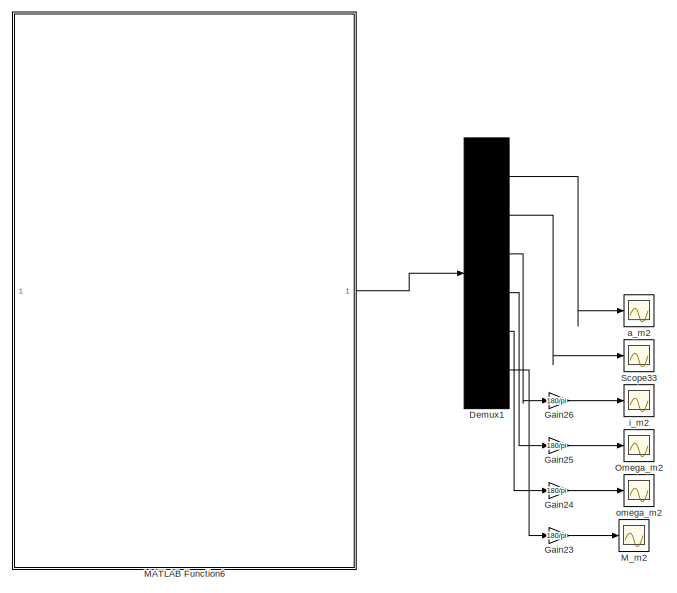
[diagram: orbit_Propegation - part 1/13, top center region]
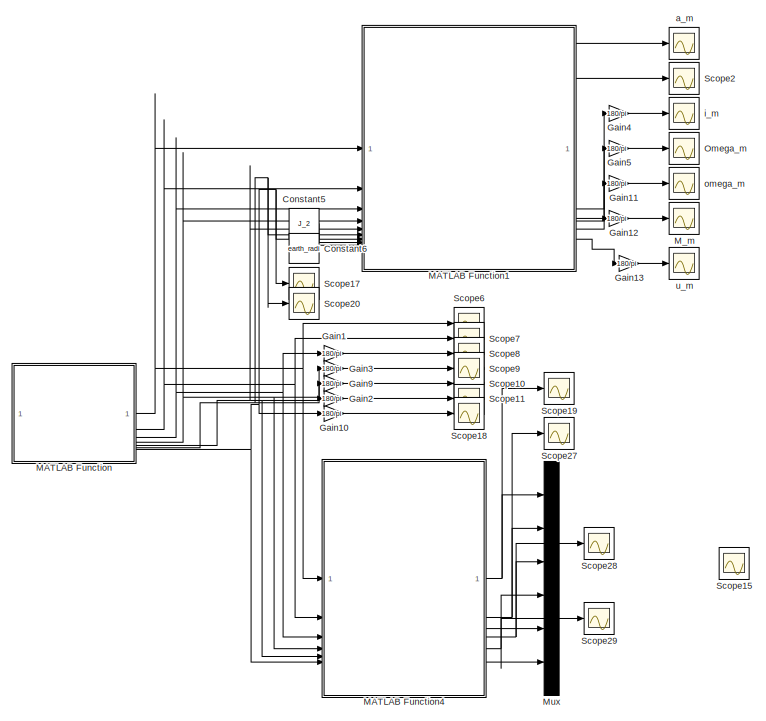
[diagram: orbit_Propegation - part 2/13, top left region]
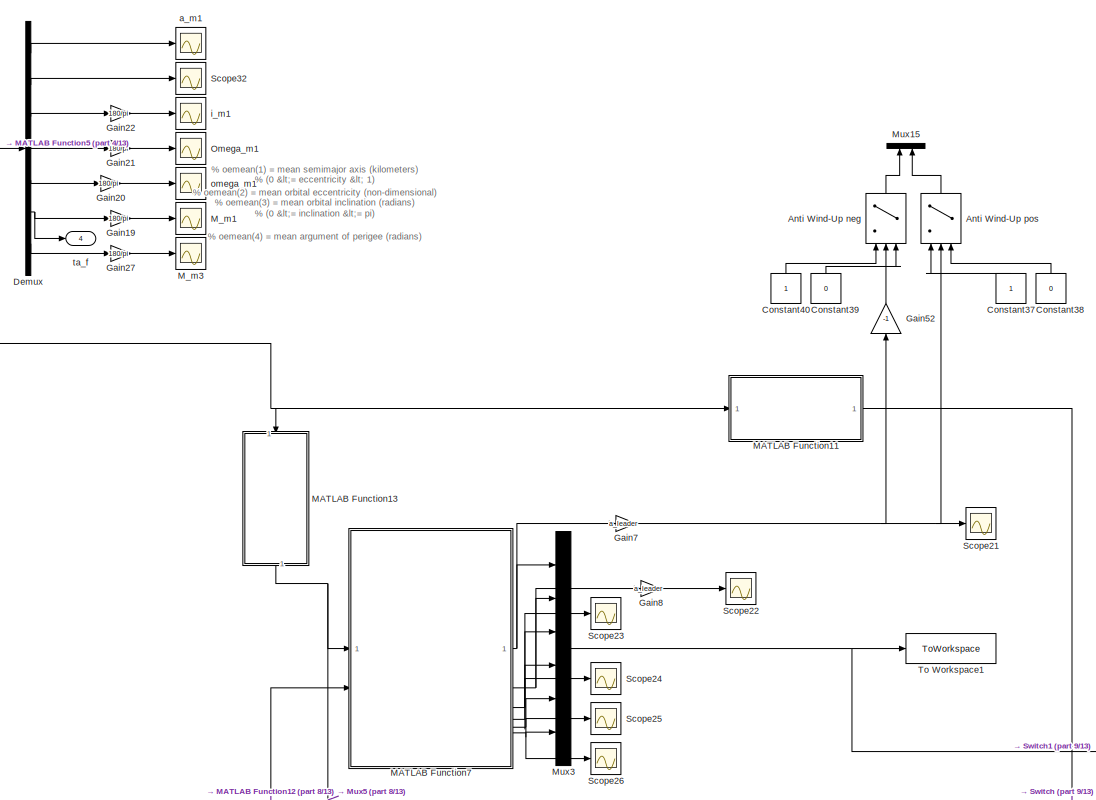
[diagram: orbit_Propegation - part 3/13, middle right region]
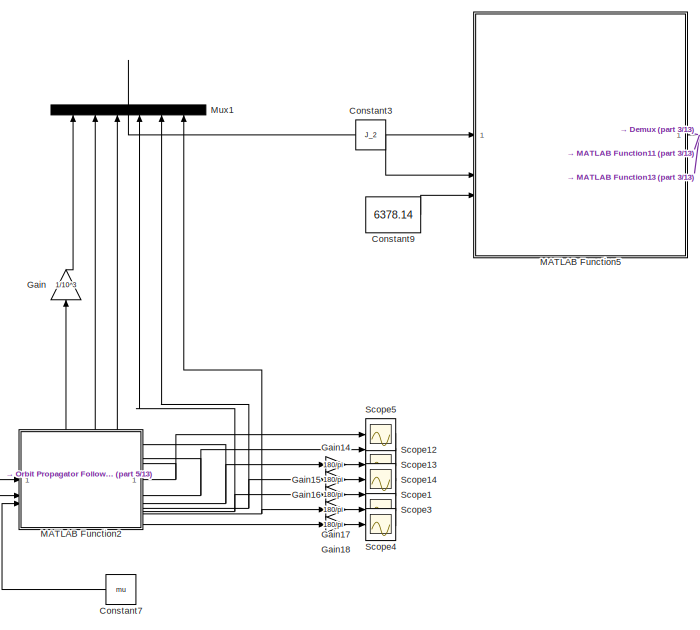
[diagram: orbit_Propegation - part 4/13, central region]
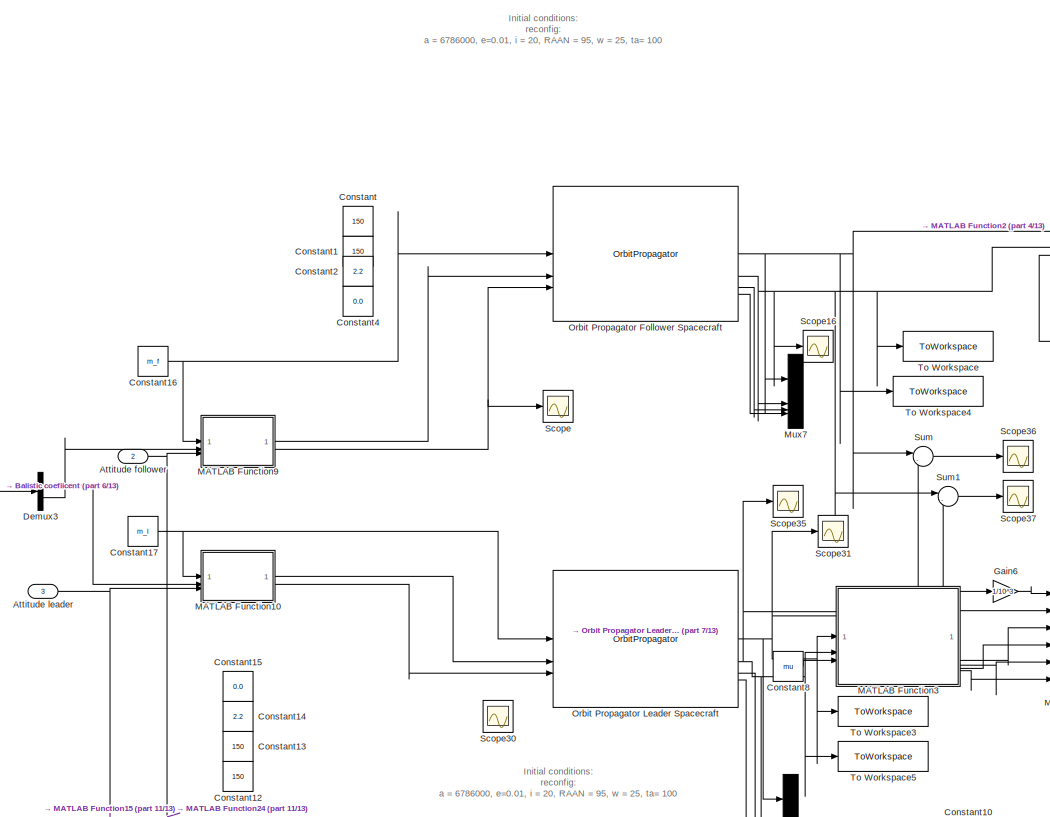
[diagram: orbit_Propegation - part 5/13, middle left region]
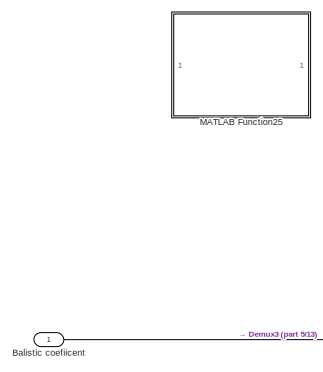
[diagram: orbit_Propegation - part 6/13, middle left region]
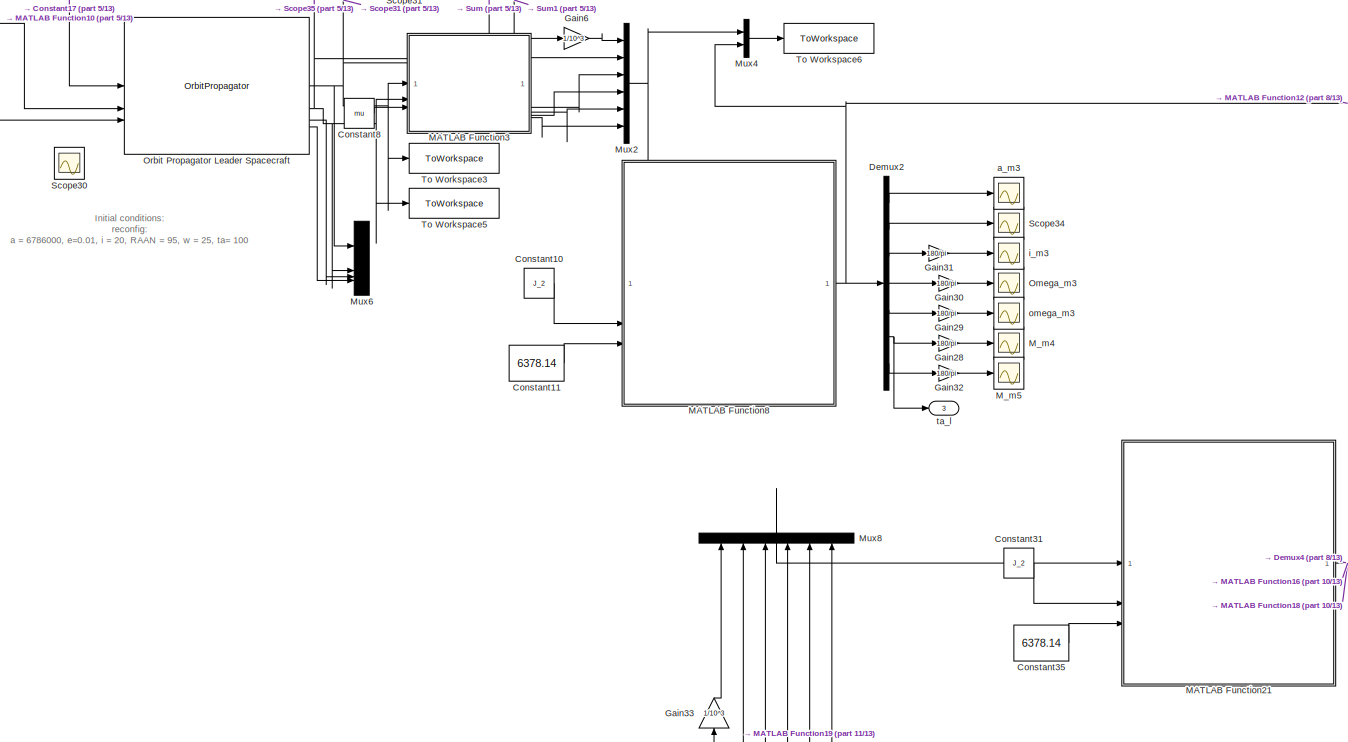
[diagram: orbit_Propegation - part 7/13, central region]
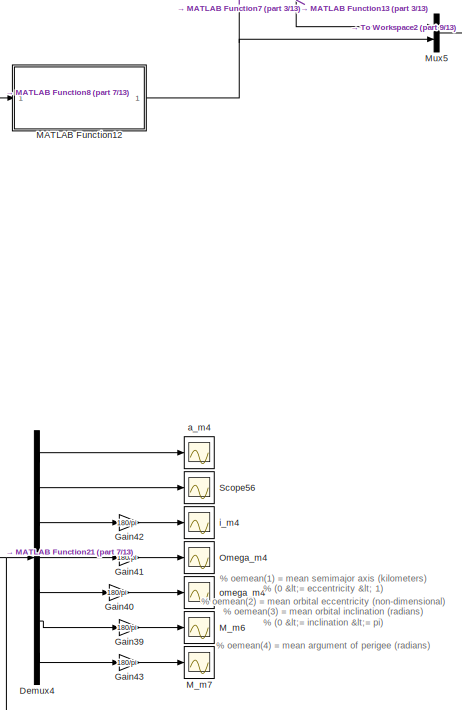
[diagram: orbit_Propegation - part 8/13, central region]
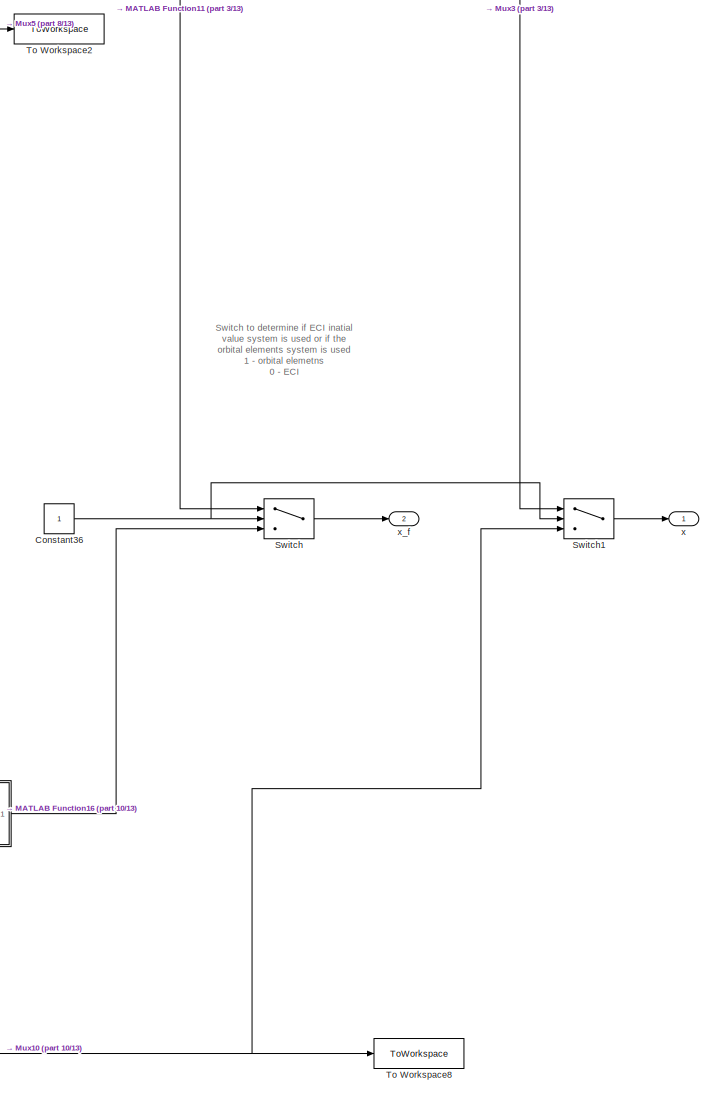
[diagram: orbit_Propegation - part 9/13, bottom right region]
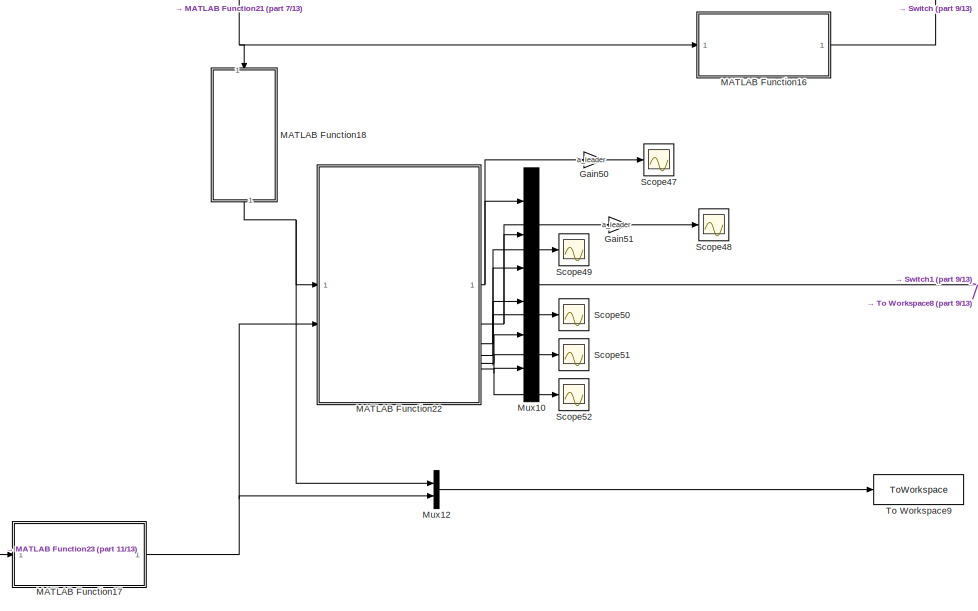
[diagram: orbit_Propegation - part 10/13, bottom right region]
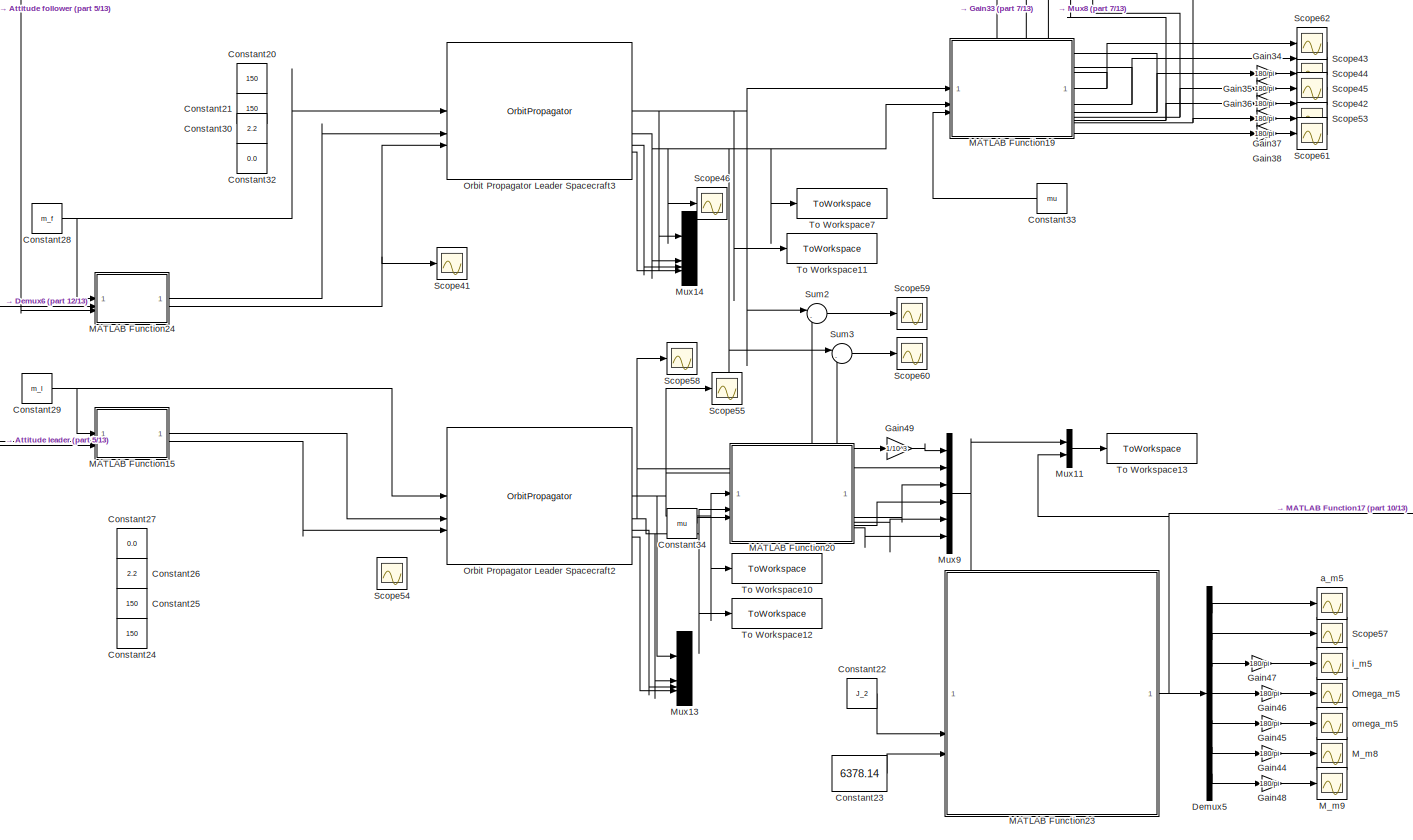
[diagram: orbit_Propegation - part 11/13, bottom center region]
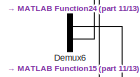
[diagram: orbit_Propegation - part 12/13, bottom left region]
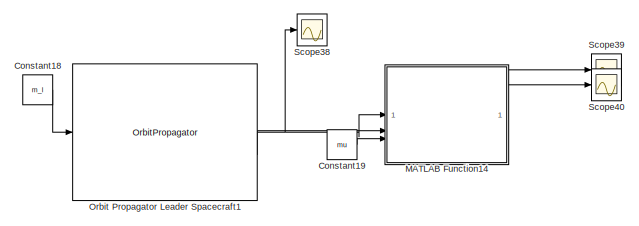
[diagram: orbit_Propegation - part 13/13, bottom left region]
BLOCK [SubSystem] orbit_Propegation
BLOCK [Switch] orbit_Propegation/Anti Wind-Up neg
  Criteria = u2 > Threshold
  InputSameDT = off
  NameLocation = left
  SaturateOnIntegerOverflow = off
  Threshold = 10
BLOCK [Switch] orbit_Propegation/Anti Wind-Up pos
  Criteria = u2 > Threshold
  InputSameDT = off
  NameLocation = right
  SaturateOnIntegerOverflow = off
  Threshold = 10
BLOCK [Inport] orbit_Propegation/Attitude follower
  Port = 2
BLOCK [Inport] orbit_Propegation/Attitude leader
  Port = 3
BLOCK [Inport] orbit_Propegation/Balistic coefiicent
BLOCK [Constant] orbit_Propegation/Constant
  Value = 150
BLOCK [Constant] orbit_Propegation/Constant1
  Value = 150
BLOCK [Constant] orbit_Propegation/Constant10
  Value = J_2
BLOCK [Constant] orbit_Propegation/Constant11
  Value = 6378.14
BLOCK [Constant] orbit_Propegation/Constant12
  Value = 150
BLOCK [Constant] orbit_Propegation/Constant13
  Value = 150
BLOCK [Constant] orbit_Propegation/Constant14
  Value = 2.2
BLOCK [Constant] orbit_Propegation/Constant15
  Value = 0.0
BLOCK [Constant] orbit_Propegation/Constant16
  Value = m_f
BLOCK [Constant] orbit_Propegation/Constant17
  Value = m_l
BLOCK [Constant] orbit_Propegation/Constant18
  Commented = on
  Value = m_l
BLOCK [Constant] orbit_Propegation/Constant19
  Commented = on
  Value = mu
BLOCK [Constant] orbit_Propegation/Constant2
  Value = 2.2
BLOCK [Constant] orbit_Propegation/Constant20
  Commented = on
  Value = 150
BLOCK [Constant] orbit_Propegation/Constant21
  Commented = on
  Value = 150
BLOCK [Constant] orbit_Propegation/Constant22
  Commented = on
  Value = J_2
BLOCK [Constant] orbit_Propegation/Constant23
  Commented = on
  Value = 6378.14
BLOCK [Constant] orbit_Propegation/Constant24
  Commented = on
  Value = 150
BLOCK [Constant] orbit_Propegation/Constant25
  Commented = on
  Value = 150
BLOCK [Constant] orbit_Propegation/Constant26
  Commented = on
  Value = 2.2
BLOCK [Constant] orbit_Propegation/Constant27
  Commented = on
  Value = 0.0
BLOCK [Constant] orbit_Propegation/Constant28
  Commented = on
  Value = m_f
BLOCK [Constant] orbit_Propegation/Constant29
  Commented = on
  Value = m_l
BLOCK [Constant] orbit_Propegation/Constant3
  Value = J_2
BLOCK [Constant] orbit_Propegation/Constant30
  Commented = on
  Value = 2.2
BLOCK [Constant] orbit_Propegation/Constant31
  Commented = on
  Value = J_2
BLOCK [Constant] orbit_Propegation/Constant32
  Commented = on
  Value = 0.0
BLOCK [Constant] orbit_Propegation/Constant33
  Commented = on
  NameLocation = top
  Value = mu
BLOCK [Constant] orbit_Propegation/Constant34
  Commented = on
  Value = mu
BLOCK [Constant] orbit_Propegation/Constant35
  Commented = on
  Value = 6378.14
BLOCK [Constant] orbit_Propegation/Constant36
BLOCK [Constant] orbit_Propegation/Constant37
  NameLocation = right
BLOCK [Constant] orbit_Propegation/Constant38
  NameLocation = right
  Value = 0
BLOCK [Constant] orbit_Propegation/Constant39
  NameLocation = right
  Value = 0
BLOCK [Constant] orbit_Propegation/Constant4
  Value = 0.0
BLOCK [Constant] orbit_Propegation/Constant40
  NameLocation = right
BLOCK [Constant] orbit_Propegation/Constant5
  Commented = on
  Value = J_2
BLOCK [Constant] orbit_Propegation/Constant6
  Commented = on
  Value = earth_radi
BLOCK [Constant] orbit_Propegation/Constant7
  NameLocation = top
  Value = mu
BLOCK [Constant] orbit_Propegation/Constant8
  Value = mu
BLOCK [Constant] orbit_Propegation/Constant9
  Value = 6378.14
BLOCK [Demux] orbit_Propegation/Demux
  Outputs = 7
BLOCK [Demux] orbit_Propegation/Demux1
  Commented = on
  Outputs = 6
BLOCK [Demux] orbit_Propegation/Demux2
  Outputs = 7
BLOCK [Demux] orbit_Propegation/Demux3
  Outputs = 2
BLOCK [Demux] orbit_Propegation/Demux4
  Commented = on
  Outputs = 7
BLOCK [Demux] orbit_Propegation/Demux5
  Commented = on
  Outputs = 7
BLOCK [Demux] orbit_Propegation/Demux6
  Commented = on
  Outputs = 2
BLOCK [Gain] orbit_Propegation/Gain
  Gain = 1/10^3
  NameLocation = right
BLOCK [Gain] orbit_Propegation/Gain1
  Commented = on
  Gain = 180/pi
BLOCK [Gain] orbit_Propegation/Gain10
  Commented = on
  Gain = 180/pi
BLOCK [Gain] orbit_Propegation/Gain11
  Commented = on
  Gain = 180/pi
BLOCK [Gain] orbit_Propegation/Gain12
  Commented = on
  Gain = 180/pi
BLOCK [Gain] orbit_Propegation/Gain13
  Commented = on
  Gain = 180/pi
BLOCK [Gain] orbit_Propegation/Gain14
  Gain = 180/pi
BLOCK [Gain] orbit_Propegation/Gain15
  Gain = 180/pi
BLOCK [Gain] orbit_Propegation/Gain16
  Gain = 180/pi
BLOCK [Gain] orbit_Propegation/Gain17
  Gain = 180/pi
BLOCK [Gain] orbit_Propegation/Gain18
  Gain = 180/pi
BLOCK [Gain] orbit_Propegation/Gain19
  Gain = 180/pi
BLOCK [Gain] orbit_Propegation/Gain2
  Commented = on
  Gain = 180/pi
BLOCK [Gain] orbit_Propegation/Gain20
  Gain = 180/pi
BLOCK [Gain] orbit_Propegation/Gain21
  Gain = 180/pi
BLOCK [Gain] orbit_Propegation/Gain22
  Gain = 180/pi
BLOCK [Gain] orbit_Propegation/Gain23
  Commented = on
  Gain = 180/pi
BLOCK [Gain] orbit_Propegation/Gain24
  Commented = on
  Gain = 180/pi
BLOCK [Gain] orbit_Propegation/Gain25
  Commented = on
  Gain = 180/pi
BLOCK [Gain] orbit_Propegation/Gain26
  Commented = on
  Gain = 180/pi
BLOCK [Gain] orbit_Propegation/Gain27
  Gain = 180/pi
BLOCK [Gain] orbit_Propegation/Gain28
  Gain = 180/pi
BLOCK [Gain] orbit_Propegation/Gain29
  Gain = 180/pi
BLOCK [Gain] orbit_Propegation/Gain3
  Commented = on
  Gain = 180/pi
BLOCK [Gain] orbit_Propegation/Gain30
  Gain = 180/pi
BLOCK [Gain] orbit_Propegation/Gain31
  Gain = 180/pi
BLOCK [Gain] orbit_Propegation/Gain32
  Gain = 180/pi
BLOCK [Gain] orbit_Propegation/Gain33
  Commented = on
  Gain = 1/10^3
  NameLocation = right
BLOCK [Gain] orbit_Propegation/Gain34
  Commented = on
  Gain = 180/pi
BLOCK [Gain] orbit_Propegation/Gain35
  Commented = on
  Gain = 180/pi
BLOCK [Gain] orbit_Propegation/Gain36
  Commented = on
  Gain = 180/pi
BLOCK [Gain] orbit_Propegation/Gain37
  Commented = on
  Gain = 180/pi
BLOCK [Gain] orbit_Propegation/Gain38
  Commented = on
  Gain = 180/pi
BLOCK [Gain] orbit_Propegation/Gain39
  Commented = on
  Gain = 180/pi
BLOCK [Gain] orbit_Propegation/Gain4
  Commented = on
  Gain = 180/pi
BLOCK [Gain] orbit_Propegation/Gain40
  Commented = on
  Gain = 180/pi
BLOCK [Gain] orbit_Propegation/Gain41
  Commented = on
  Gain = 180/pi
BLOCK [Gain] orbit_Propegation/Gain42
  Commented = on
  Gain = 180/pi
BLOCK [Gain] orbit_Propegation/Gain43
  Commented = on
  Gain = 180/pi
BLOCK [Gain] orbit_Propegation/Gain44
  Commented = on
  Gain = 180/pi
BLOCK [Gain] orbit_Propegation/Gain45
  Commented = on
  Gain = 180/pi
BLOCK [Gain] orbit_Propegation/Gain46
  Commented = on
  Gain = 180/pi
BLOCK [Gain] orbit_Propegation/Gain47
  Commented = on
  Gain = 180/pi
BLOCK [Gain] orbit_Propegation/Gain48
  Commented = on
  Gain = 180/pi
BLOCK [Gain] orbit_Propegation/Gain49
  Commented = on
  Gain = 1/10^3
BLOCK [Gain] orbit_Propegation/Gain5
  Commented = on
  Gain = 180/pi
BLOCK [Gain] orbit_Propegation/Gain50
  Commented = on
  Gain = a_leader
BLOCK [Gain] orbit_Propegation/Gain51
  Commented = on
  Gain = a_leader
BLOCK [Gain] orbit_Propegation/Gain52
  Gain = -1
  NameLocation = right
BLOCK [Gain] orbit_Propegation/Gain6
  Gain = 1/10^3
BLOCK [Gain] orbit_Propegation/Gain7
  Gain = a_leader
BLOCK [Gain] orbit_Propegation/Gain8
  Gain = a_leader
BLOCK [Gain] orbit_Propegation/Gain9
  Commented = on
  Gain = 180/pi
BLOCK [SubSystem] orbit_Propegation/MATLAB Function
  Commented = on
  ErrorFcn = Stateflow.Translate.translate
  LibrarySourceBlock = simulink/User-Defined\nFunctions/MATLAB Function
  PermitHierarchicalResolution = ExplicitOnly
  SFBlockType = MATLAB Function
  TreatAsAtomicUnit = on
BLOCK [Demux] orbit_Propegation/MATLAB Function/ Demux 
  Outputs = 1
BLOCK [S-Function] orbit_Propegation/MATLAB Function/ SFunction 
  EnableBusSupport = off
  FunctionName = sf_sfun
  PortCounts = [3 8]
  SFcnIsStateOwnerBlock = off
  SFunctionDeploymentMode = off
  Tag = Stateflow S-Function 3
BLOCK [Terminator] orbit_Propegation/MATLAB Function/ Terminator 
BLOCK [Outport] orbit_Propegation/MATLAB Function/M
  Port = 7
BLOCK [Outport] orbit_Propegation/MATLAB Function/Omega
  Port = 4
BLOCK [Outport] orbit_Propegation/MATLAB Function/a
BLOCK [Outport] orbit_Propegation/MATLAB Function/e
  Port = 2
BLOCK [Outport] orbit_Propegation/MATLAB Function/i
  Port = 3
BLOCK [Inport] orbit_Propegation/MATLAB Function/mu
  Port = 3
BLOCK [Outport] orbit_Propegation/MATLAB Function/nu
  Port = 6
BLOCK [Outport] orbit_Propegation/MATLAB Function/omega
  Port = 5
BLOCK [Inport] orbit_Propegation/MATLAB Function/r
BLOCK [Inport] orbit_Propegation/MATLAB Function/v
  Port = 2
BLOCK [SubSystem] orbit_Propegation/MATLAB Function1
  Commented = on
  ErrorFcn = Stateflow.Translate.translate
  LibrarySourceBlock = simulink/User-Defined\nFunctions/MATLAB Function
  PermitHierarchicalResolution = ExplicitOnly
  SFBlockType = MATLAB Function
  TreatAsAtomicUnit = on
BLOCK [Demux] orbit_Propegation/MATLAB Function1/ Demux 
  Outputs = 1
BLOCK [S-Function] orbit_Propegation/MATLAB Function1/ SFunction 
  EnableBusSupport = off
  FunctionName = sf_sfun
  PortCounts = [9 8]
  SFcnIsStateOwnerBlock = off
  SFunctionDeploymentMode = off
  Tag = Stateflow S-Function 24
BLOCK [Terminator] orbit_Propegation/MATLAB Function1/ Terminator 
BLOCK [Inport] orbit_Propegation/MATLAB Function1/J_2
  Port = 8
BLOCK [Inport] orbit_Propegation/MATLAB Function1/M
  Port = 7
BLOCK [Outport] orbit_Propegation/MATLAB Function1/M_m
  Port = 6
BLOCK [Inport] orbit_Propegation/MATLAB Function1/Omega
  Port = 4
BLOCK [Outport] orbit_Propegation/MATLAB Function1/Omega_m
  Port = 4
BLOCK [Inport] orbit_Propegation/MATLAB Function1/a
BLOCK [Outport] orbit_Propegation/MATLAB Function1/a_m
BLOCK [Inport] orbit_Propegation/MATLAB Function1/e
  Port = 2
BLOCK [Outport] orbit_Propegation/MATLAB Function1/e_m
  Port = 2
BLOCK [Inport] orbit_Propegation/MATLAB Function1/earth_radi
  Port = 9
BLOCK [Inport] orbit_Propegation/MATLAB Function1/i
  Port = 3
BLOCK [Outport] orbit_Propegation/MATLAB Function1/i_m
  Port = 3
BLOCK [Inport] orbit_Propegation/MATLAB Function1/nu
  Port = 6
BLOCK [Inport] orbit_Propegation/MATLAB Function1/omega
  Port = 5
BLOCK [Outport] orbit_Propegation/MATLAB Function1/omega_m
  Port = 5
BLOCK [Outport] orbit_Propegation/MATLAB Function1/u_m
  Port = 7
BLOCK [SubSystem] orbit_Propegation/MATLAB Function10
  ErrorFcn = Stateflow.Translate.translate
  LibrarySourceBlock = simulink/User-Defined\nFunctions/MATLAB Function
  PermitHierarchicalResolution = ExplicitOnly
  SFBlockType = MATLAB Function
  TreatAsAtomicUnit = on
BLOCK [Demux] orbit_Propegation/MATLAB Function10/ Demux 
  Outputs = 1
BLOCK [S-Function] orbit_Propegation/MATLAB Function10/ SFunction 
  EnableBusSupport = on
  FunctionName = sf_sfun
  PortCounts = [3 3]
  SFcnIsStateOwnerBlock = off
  SFunctionDeploymentMode = off
  Tag = Stateflow S-Function 31
BLOCK [Terminator] orbit_Propegation/MATLAB Function10/ Terminator 
BLOCK [Outport] orbit_Propegation/MATLAB Function10/A
  Port = 2
BLOCK [Inport] orbit_Propegation/MATLAB Function10/B
  Port = 2
BLOCK [Outport] orbit_Propegation/MATLAB Function10/Cd
BLOCK [Inport] orbit_Propegation/MATLAB Function10/m
BLOCK [Inport] orbit_Propegation/MATLAB Function10/theta
  Port = 3
BLOCK [SubSystem] orbit_Propegation/MATLAB Function11
  ErrorFcn = Stateflow.Translate.translate
  LibrarySourceBlock = simulink/User-Defined\nFunctions/MATLAB Function
  PermitHierarchicalResolution = ExplicitOnly
  SFBlockType = MATLAB Function
  TreatAsAtomicUnit = on
BLOCK [Demux] orbit_Propegation/MATLAB Function11/ Demux 
  Outputs = 1
BLOCK [S-Function] orbit_Propegation/MATLAB Function11/ SFunction 
  EnableBusSupport = on
  FunctionName = sf_sfun
  PortCounts = [1 2]
  SFcnIsStateOwnerBlock = off
  SFunctionDeploymentMode = off
  Tag = Stateflow S-Function 37
BLOCK [Terminator] orbit_Propegation/MATLAB Function11/ Terminator 
BLOCK [Inport] orbit_Propegation/MATLAB Function11/ob_km
BLOCK [Outport] orbit_Propegation/MATLAB Function11/ob_m
BLOCK [SubSystem] orbit_Propegation/MATLAB Function12
  ErrorFcn = Stateflow.Translate.translate
  LibrarySourceBlock = simulink/User-Defined\nFunctions/MATLAB Function
  PermitHierarchicalResolution = ExplicitOnly
  SFBlockType = MATLAB Function
  TreatAsAtomicUnit = on
BLOCK [Demux] orbit_Propegation/MATLAB Function12/ Demux 
  Outputs = 1
BLOCK [S-Function] orbit_Propegation/MATLAB Function12/ SFunction 
  EnableBusSupport = on
  FunctionName = sf_sfun
  PortCounts = [1 2]
  SFcnIsStateOwnerBlock = off
  SFunctionDeploymentMode = off
  Tag = Stateflow S-Function 38
BLOCK [Terminator] orbit_Propegation/MATLAB Function12/ Terminator 
BLOCK [Inport] orbit_Propegation/MATLAB Function12/ob_km
BLOCK [Outport] orbit_Propegation/MATLAB Function12/ob_m
BLOCK [SubSystem] orbit_Propegation/MATLAB Function13
  ErrorFcn = Stateflow.Translate.translate
  LibrarySourceBlock = simulink/User-Defined\nFunctions/MATLAB Function
  NameLocation = left
  PermitHierarchicalResolution = ExplicitOnly
  SFBlockType = MATLAB Function
  TreatAsAtomicUnit = on
BLOCK [Demux] orbit_Propegation/MATLAB Function13/ Demux 
  Outputs = 1
BLOCK [S-Function] orbit_Propegation/MATLAB Function13/ SFunction 
  EnableBusSupport = on
  FunctionName = sf_sfun
  PortCounts = [1 2]
  SFcnIsStateOwnerBlock = off
  SFunctionDeploymentMode = off
  Tag = Stateflow S-Function 39
BLOCK [Terminator] orbit_Propegation/MATLAB Function13/ Terminator 
BLOCK [Inport] orbit_Propegation/MATLAB Function13/ob_km
BLOCK [Outport] orbit_Propegation/MATLAB Function13/ob_m
BLOCK [SubSystem] orbit_Propegation/MATLAB Function14
  Commented = on
  ErrorFcn = Stateflow.Translate.translate
  LibrarySourceBlock = simulink/User-Defined\nFunctions/MATLAB Function
  PermitHierarchicalResolution = ExplicitOnly
  SFBlockType = MATLAB Function
  TreatAsAtomicUnit = on
BLOCK [Demux] orbit_Propegation/MATLAB Function14/ Demux 
  Outputs = 1
BLOCK [S-Function] orbit_Propegation/MATLAB Function14/ SFunction 
  EnableBusSupport = on
  FunctionName = sf_sfun
  PortCounts = [3 8]
  SFcnIsStateOwnerBlock = off
  SFunctionDeploymentMode = off
  Tag = Stateflow S-Function 52
BLOCK [Terminator] orbit_Propegation/MATLAB Function14/ Terminator 
BLOCK [Outport] orbit_Propegation/MATLAB Function14/M
  Port = 7
BLOCK [Outport] orbit_Propegation/MATLAB Function14/Omega
  Port = 4
BLOCK [Outport] orbit_Propegation/MATLAB Function14/a
BLOCK [Outport] orbit_Propegation/MATLAB Function14/e
  Port = 2
BLOCK [Outport] orbit_Propegation/MATLAB Function14/i
  Port = 3
BLOCK [Inport] orbit_Propegation/MATLAB Function14/mu
  Port = 3
BLOCK [Outport] orbit_Propegation/MATLAB Function14/nu
  Port = 6
BLOCK [Outport] orbit_Propegation/MATLAB Function14/omega
  Port = 5
BLOCK [Inport] orbit_Propegation/MATLAB Function14/r_vec
BLOCK [Inport] orbit_Propegation/MATLAB Function14/v_vec
  Port = 2
BLOCK [SubSystem] orbit_Propegation/MATLAB Function15
  Commented = on
  ErrorFcn = Stateflow.Translate.translate
  LibrarySourceBlock = simulink/User-Defined\nFunctions/MATLAB Function
  PermitHierarchicalResolution = ExplicitOnly
  SFBlockType = MATLAB Function
  TreatAsAtomicUnit = on
BLOCK [Demux] orbit_Propegation/MATLAB Function15/ Demux 
  Outputs = 1
BLOCK [S-Function] orbit_Propegation/MATLAB Function15/ SFunction 
  EnableBusSupport = on
  FunctionName = sf_sfun
  PortCounts = [3 3]
  SFcnIsStateOwnerBlock = off
  SFunctionDeploymentMode = off
  Tag = Stateflow S-Function 53
BLOCK [Terminator] orbit_Propegation/MATLAB Function15/ Terminator 
BLOCK [Outport] orbit_Propegation/MATLAB Function15/A
  Port = 2
BLOCK [Inport] orbit_Propegation/MATLAB Function15/B
  Port = 2
BLOCK [Outport] orbit_Propegation/MATLAB Function15/Cd
BLOCK [Inport] orbit_Propegation/MATLAB Function15/m
BLOCK [Inport] orbit_Propegation/MATLAB Function15/theta
  Port = 3
BLOCK [SubSystem] orbit_Propegation/MATLAB Function16
  Commented = on
  ErrorFcn = Stateflow.Translate.translate
  LibrarySourceBlock = simulink/User-Defined\nFunctions/MATLAB Function
  PermitHierarchicalResolution = ExplicitOnly
  SFBlockType = MATLAB Function
  TreatAsAtomicUnit = on
BLOCK [Demux] orbit_Propegation/MATLAB Function16/ Demux 
  Outputs = 1
BLOCK [S-Function] orbit_Propegation/MATLAB Function16/ SFunction 
  EnableBusSupport = on
  FunctionName = sf_sfun
  PortCounts = [1 2]
  SFcnIsStateOwnerBlock = off
  SFunctionDeploymentMode = off
  Tag = Stateflow S-Function 54
BLOCK [Terminator] orbit_Propegation/MATLAB Function16/ Terminator 
BLOCK [Inport] orbit_Propegation/MATLAB Function16/ob_km
BLOCK [Outport] orbit_Propegation/MATLAB Function16/ob_m
BLOCK [SubSystem] orbit_Propegation/MATLAB Function17
  Commented = on
  ErrorFcn = Stateflow.Translate.translate
  LibrarySourceBlock = simulink/User-Defined\nFunctions/MATLAB Function
  PermitHierarchicalResolution = ExplicitOnly
  SFBlockType = MATLAB Function
  TreatAsAtomicUnit = on
BLOCK [Demux] orbit_Propegation/MATLAB Function17/ Demux 
  Outputs = 1
BLOCK [S-Function] orbit_Propegation/MATLAB Function17/ SFunction 
  EnableBusSupport = on
  FunctionName = sf_sfun
  PortCounts = [1 2]
  SFcnIsStateOwnerBlock = off
  SFunctionDeploymentMode = off
  Tag = Stateflow S-Function 55
BLOCK [Terminator] orbit_Propegation/MATLAB Function17/ Terminator 
BLOCK [Inport] orbit_Propegation/MATLAB Function17/ob_km
BLOCK [Outport] orbit_Propegation/MATLAB Function17/ob_m
BLOCK [SubSystem] orbit_Propegation/MATLAB Function18
  Commented = on
  ErrorFcn = Stateflow.Translate.translate
  LibrarySourceBlock = simulink/User-Defined\nFunctions/MATLAB Function
  NameLocation = left
  PermitHierarchicalResolution = ExplicitOnly
  SFBlockType = MATLAB Function
  TreatAsAtomicUnit = on
BLOCK [Demux] orbit_Propegation/MATLAB Function18/ Demux 
  Outputs = 1
BLOCK [S-Function] orbit_Propegation/MATLAB Function18/ SFunction 
  EnableBusSupport = on
  FunctionName = sf_sfun
  PortCounts = [1 2]
  SFcnIsStateOwnerBlock = off
  SFunctionDeploymentMode = off
  Tag = Stateflow S-Function 56
BLOCK [Terminator] orbit_Propegation/MATLAB Function18/ Terminator 
BLOCK [Inport] orbit_Propegation/MATLAB Function18/ob_km
BLOCK [Outport] orbit_Propegation/MATLAB Function18/ob_m
BLOCK [SubSystem] orbit_Propegation/MATLAB Function19
  Commented = on
  ErrorFcn = Stateflow.Translate.translate
  LibrarySourceBlock = simulink/User-Defined\nFunctions/MATLAB Function
  PermitHierarchicalResolution = ExplicitOnly
  SFBlockType = MATLAB Function
  TreatAsAtomicUnit = on
BLOCK [Demux] orbit_Propegation/MATLAB Function19/ Demux 
  Outputs = 1
BLOCK [S-Function] orbit_Propegation/MATLAB Function19/ SFunction 
  EnableBusSupport = on
  FunctionName = sf_sfun
  PortCounts = [3 8]
  SFcnIsStateOwnerBlock = off
  SFunctionDeploymentMode = off
  Tag = Stateflow S-Function 57
BLOCK [Terminator] orbit_Propegation/MATLAB Function19/ Terminator 
BLOCK [Outport] orbit_Propegation/MATLAB Function19/M
  Port = 7
BLOCK [Outport] orbit_Propegation/MATLAB Function19/Omega
  Port = 4
BLOCK [Outport] orbit_Propegation/MATLAB Function19/a
BLOCK [Outport] orbit_Propegation/MATLAB Function19/e
  Port = 2
BLOCK [Outport] orbit_Propegation/MATLAB Function19/i
  Port = 3
BLOCK [Inport] orbit_Propegation/MATLAB Function19/mu
  Port = 3
BLOCK [Outport] orbit_Propegation/MATLAB Function19/nu
  Port = 6
BLOCK [Outport] orbit_Propegation/MATLAB Function19/omega
  Port = 5
BLOCK [Inport] orbit_Propegation/MATLAB Function19/r_vec
BLOCK [Inport] orbit_Propegation/MATLAB Function19/v_vec
  Port = 2
BLOCK [SubSystem] orbit_Propegation/MATLAB Function2
  ErrorFcn = Stateflow.Translate.translate
  LibrarySourceBlock = simulink/User-Defined\nFunctions/MATLAB Function
  PermitHierarchicalResolution = ExplicitOnly
  SFBlockType = MATLAB Function
  TreatAsAtomicUnit = on
BLOCK [Demux] orbit_Propegation/MATLAB Function2/ Demux 
  Outputs = 1
BLOCK [S-Function] orbit_Propegation/MATLAB Function2/ SFunction 
  EnableBusSupport = on
  FunctionName = sf_sfun
  PortCounts = [3 8]
  SFcnIsStateOwnerBlock = off
  SFunctionDeploymentMode = off
  Tag = Stateflow S-Function 25
BLOCK [Terminator] orbit_Propegation/MATLAB Function2/ Terminator 
BLOCK [Outport] orbit_Propegation/MATLAB Function2/M
  Port = 7
BLOCK [Outport] orbit_Propegation/MATLAB Function2/Omega
  Port = 4
BLOCK [Outport] orbit_Propegation/MATLAB Function2/a
BLOCK [Outport] orbit_Propegation/MATLAB Function2/e
  Port = 2
BLOCK [Outport] orbit_Propegation/MATLAB Function2/i
  Port = 3
BLOCK [Inport] orbit_Propegation/MATLAB Function2/mu
  Port = 3
BLOCK [Outport] orbit_Propegation/MATLAB Function2/nu
  Port = 6
BLOCK [Outport] orbit_Propegation/MATLAB Function2/omega
  Port = 5
BLOCK [Inport] orbit_Propegation/MATLAB Function2/r_vec
BLOCK [Inport] orbit_Propegation/MATLAB Function2/v_vec
  Port = 2
BLOCK [SubSystem] orbit_Propegation/MATLAB Function20
  Commented = on
  ErrorFcn = Stateflow.Translate.translate
  LibrarySourceBlock = simulink/User-Defined\nFunctions/MATLAB Function
  PermitHierarchicalResolution = ExplicitOnly
  SFBlockType = MATLAB Function
  TreatAsAtomicUnit = on
BLOCK [Demux] orbit_Propegation/MATLAB Function20/ Demux 
  Outputs = 1
BLOCK [S-Function] orbit_Propegation/MATLAB Function20/ SFunction 
  EnableBusSupport = on
  FunctionName = sf_sfun
  PortCounts = [3 8]
  SFcnIsStateOwnerBlock = off
  SFunctionDeploymentMode = off
  Tag = Stateflow S-Function 58
BLOCK [Terminator] orbit_Propegation/MATLAB Function20/ Terminator 
BLOCK [Outport] orbit_Propegation/MATLAB Function20/M
  Port = 7
BLOCK [Outport] orbit_Propegation/MATLAB Function20/Omega
  Port = 4
BLOCK [Outport] orbit_Propegation/MATLAB Function20/a
BLOCK [Outport] orbit_Propegation/MATLAB Function20/e
  Port = 2
BLOCK [Outport] orbit_Propegation/MATLAB Function20/i
  Port = 3
BLOCK [Inport] orbit_Propegation/MATLAB Function20/mu
  Port = 3
BLOCK [Outport] orbit_Propegation/MATLAB Function20/nu
  Port = 6
BLOCK [Outport] orbit_Propegation/MATLAB Function20/omega
  Port = 5
BLOCK [Inport] orbit_Propegation/MATLAB Function20/r_vec
BLOCK [Inport] orbit_Propegation/MATLAB Function20/v_vec
  Port = 2
BLOCK [SubSystem] orbit_Propegation/MATLAB Function21
  Commented = on
  ErrorFcn = Stateflow.Translate.translate
  LibrarySourceBlock = simulink/User-Defined\nFunctions/MATLAB Function
  PermitHierarchicalResolution = ExplicitOnly
  SFBlockType = MATLAB Function
  TreatAsAtomicUnit = on
BLOCK [Demux] orbit_Propegation/MATLAB Function21/ Demux 
  Outputs = 1
BLOCK [S-Function] orbit_Propegation/MATLAB Function21/ SFunction 
  EnableBusSupport = on
  FunctionName = sf_sfun
  PortCounts = [3 2]
  SFcnIsStateOwnerBlock = off
  SFunctionDeploymentMode = off
  Tag = Stateflow S-Function 59
BLOCK [Terminator] orbit_Propegation/MATLAB Function21/ Terminator 
BLOCK [Inport] orbit_Propegation/MATLAB Function21/j2
  Port = 2
BLOCK [Outport] orbit_Propegation/MATLAB Function21/oemean
BLOCK [Inport] orbit_Propegation/MATLAB Function21/oeosc
BLOCK [Inport] orbit_Propegation/MATLAB Function21/req
  Port = 3
BLOCK [SubSystem] orbit_Propegation/MATLAB Function22
  Commented = on
  ErrorFcn = Stateflow.Translate.translate
  LibrarySourceBlock = simulink/User-Defined\nFunctions/MATLAB Function
  PermitHierarchicalResolution = ExplicitOnly
  SFBlockType = MATLAB Function
  TreatAsAtomicUnit = on
BLOCK [Demux] orbit_Propegation/MATLAB Function22/ Demux 
  Outputs = 1
BLOCK [S-Function] orbit_Propegation/MATLAB Function22/ SFunction 
  EnableBusSupport = on
  FunctionName = sf_sfun
  PortCounts = [2 7]
  SFcnIsStateOwnerBlock = off
  SFunctionDeploymentMode = off
  Tag = Stateflow S-Function 60
BLOCK [Terminator] orbit_Propegation/MATLAB Function22/ Terminator 
BLOCK [Outport] orbit_Propegation/MATLAB Function22/d_a
BLOCK [Outport] orbit_Propegation/MATLAB Function22/d_e_x
  Port = 3
BLOCK [Outport] orbit_Propegation/MATLAB Function22/d_e_y
  Port = 4
BLOCK [Outport] orbit_Propegation/MATLAB Function22/d_i_x
  Port = 5
BLOCK [Outport] orbit_Propegation/MATLAB Function22/d_i_y
  Port = 6
BLOCK [Outport] orbit_Propegation/MATLAB Function22/d_lambda
  Port = 2
BLOCK [Inport] orbit_Propegation/MATLAB Function22/x_f
BLOCK [Inport] orbit_Propegation/MATLAB Function22/x_l
  Port = 2
BLOCK [SubSystem] orbit_Propegation/MATLAB Function23
  Commented = on
  ErrorFcn = Stateflow.Translate.translate
  LibrarySourceBlock = simulink/User-Defined\nFunctions/MATLAB Function
  PermitHierarchicalResolution = ExplicitOnly
  SFBlockType = MATLAB Function
  TreatAsAtomicUnit = on
BLOCK [Demux] orbit_Propegation/MATLAB Function23/ Demux 
  Outputs = 1
BLOCK [S-Function] orbit_Propegation/MATLAB Function23/ SFunction 
  EnableBusSupport = on
  FunctionName = sf_sfun
  PortCounts = [3 2]
  SFcnIsStateOwnerBlock = off
  SFunctionDeploymentMode = off
  Tag = Stateflow S-Function 61
BLOCK [Terminator] orbit_Propegation/MATLAB Function23/ Terminator 
BLOCK [Inport] orbit_Propegation/MATLAB Function23/j2
  Port = 2
BLOCK [Outport] orbit_Propegation/MATLAB Function23/oemean
BLOCK [Inport] orbit_Propegation/MATLAB Function23/oeosc
BLOCK [Inport] orbit_Propegation/MATLAB Function23/req
  Port = 3
BLOCK [SubSystem] orbit_Propegation/MATLAB Function24
  Commented = on
  ErrorFcn = Stateflow.Translate.translate
  LibrarySourceBlock = simulink/User-Defined\nFunctions/MATLAB Function
  PermitHierarchicalResolution = ExplicitOnly
  SFBlockType = MATLAB Function
  TreatAsAtomicUnit = on
BLOCK [Demux] orbit_Propegation/MATLAB Function24/ Demux 
  Outputs = 1
BLOCK [S-Function] orbit_Propegation/MATLAB Function24/ SFunction 
  EnableBusSupport = on
  FunctionName = sf_sfun
  PortCounts = [3 3]
  SFcnIsStateOwnerBlock = off
  SFunctionDeploymentMode = off
  Tag = Stateflow S-Function 62
BLOCK [Terminator] orbit_Propegation/MATLAB Function24/ Terminator 
BLOCK [Outport] orbit_Propegation/MATLAB Function24/A
  Port = 2
BLOCK [Inport] orbit_Propegation/MATLAB Function24/B
  Port = 2
BLOCK [Outport] orbit_Propegation/MATLAB Function24/Cd
BLOCK [Inport] orbit_Propegation/MATLAB Function24/m
BLOCK [Inport] orbit_Propegation/MATLAB Function24/theta
  Port = 3
BLOCK [SubSystem] orbit_Propegation/MATLAB Function25
  Commented = on
  ErrorFcn = Stateflow.Translate.translate
  PermitHierarchicalResolution = ExplicitOnly
  SFBlockType = MATLAB Function
  TreatAsAtomicUnit = on
BLOCK [Demux] orbit_Propegation/MATLAB Function25/ Demux 
  Outputs = 1
BLOCK [S-Function] orbit_Propegation/MATLAB Function25/ SFunction 
  EnableBusSupport = on
  FunctionName = sf_sfun
  PortCounts = [2 2]
  SFcnIsStateOwnerBlock = off
  SFunctionDeploymentMode = off
  Tag = Stateflow S-Function 63
BLOCK [Terminator] orbit_Propegation/MATLAB Function25/ Terminator 
BLOCK [Inport] orbit_Propegation/MATLAB Function25/BC
  Port = 2
BLOCK [Outport] orbit_Propegation/MATLAB Function25/ballistic
BLOCK [Inport] orbit_Propegation/MATLAB Function25/wind_up
BLOCK [SubSystem] orbit_Propegation/MATLAB Function3
  ErrorFcn = Stateflow.Translate.translate
  LibrarySourceBlock = simulink/User-Defined\nFunctions/MATLAB Function
  PermitHierarchicalResolution = ExplicitOnly
  SFBlockType = MATLAB Function
  TreatAsAtomicUnit = on
BLOCK [Demux] orbit_Propegation/MATLAB Function3/ Demux 
  Outputs = 1
BLOCK [S-Function] orbit_Propegation/MATLAB Function3/ SFunction 
  EnableBusSupport = on
  FunctionName = sf_sfun
  PortCounts = [3 8]
  SFcnIsStateOwnerBlock = off
  SFunctionDeploymentMode = off
  Tag = Stateflow S-Function 18
BLOCK [Terminator] orbit_Propegation/MATLAB Function3/ Terminator 
BLOCK [Outport] orbit_Propegation/MATLAB Function3/M
  Port = 7
BLOCK [Outport] orbit_Propegation/MATLAB Function3/Omega
  Port = 4
BLOCK [Outport] orbit_Propegation/MATLAB Function3/a
BLOCK [Outport] orbit_Propegation/MATLAB Function3/e
  Port = 2
BLOCK [Outport] orbit_Propegation/MATLAB Function3/i
  Port = 3
BLOCK [Inport] orbit_Propegation/MATLAB Function3/mu
  Port = 3
BLOCK [Outport] orbit_Propegation/MATLAB Function3/nu
  Port = 6
BLOCK [Outport] orbit_Propegation/MATLAB Function3/omega
  Port = 5
BLOCK [Inport] orbit_Propegation/MATLAB Function3/r_vec
BLOCK [Inport] orbit_Propegation/MATLAB Function3/v_vec
  Port = 2
BLOCK [SubSystem] orbit_Propegation/MATLAB Function4
  Commented = on
  ErrorFcn = Stateflow.Translate.translate
  LibrarySourceBlock = simulink/User-Defined\nFunctions/MATLAB Function
  PermitHierarchicalResolution = ExplicitOnly
  SFBlockType = MATLAB Function
  TreatAsAtomicUnit = on
BLOCK [Demux] orbit_Propegation/MATLAB Function4/ Demux 
  Outputs = 1
BLOCK [S-Function] orbit_Propegation/MATLAB Function4/ SFunction 
  EnableBusSupport = off
  FunctionName = sf_sfun
  PortCounts = [12 7]
  SFcnIsStateOwnerBlock = off
  SFunctionDeploymentMode = off
  Tag = Stateflow S-Function 19
BLOCK [Terminator] orbit_Propegation/MATLAB Function4/ Terminator 
BLOCK [Inport] orbit_Propegation/MATLAB Function4/M_f
  Port = 6
BLOCK [Inport] orbit_Propegation/MATLAB Function4/M_l
  Port = 12
BLOCK [Inport] orbit_Propegation/MATLAB Function4/Omega_f
  Port = 4
BLOCK [Inport] orbit_Propegation/MATLAB Function4/Omega_l
  Port = 10
BLOCK [Inport] orbit_Propegation/MATLAB Function4/a_f
BLOCK [Inport] orbit_Propegation/MATLAB Function4/a_l
  Port = 7
BLOCK [Outport] orbit_Propegation/MATLAB Function4/d_a
BLOCK [Outport] orbit_Propegation/MATLAB Function4/d_e_x
  Port = 3
BLOCK [Outport] orbit_Propegation/MATLAB Function4/d_e_y
  Port = 4
BLOCK [Outport] orbit_Propegation/MATLAB Function4/d_i_x
  Port = 5
BLOCK [Outport] orbit_Propegation/MATLAB Function4/d_i_y
  Port = 6
BLOCK [Outport] orbit_Propegation/MATLAB Function4/d_lambda
  Port = 2
BLOCK [Inport] orbit_Propegation/MATLAB Function4/e_f
  Port = 2
BLOCK [Inport] orbit_Propegation/MATLAB Function4/e_l
  Port = 8
BLOCK [Inport] orbit_Propegation/MATLAB Function4/i_f
  Port = 3
BLOCK [Inport] orbit_Propegation/MATLAB Function4/i_l
  Port = 9
BLOCK [Inport] orbit_Propegation/MATLAB Function4/omega_f
  Port = 5
BLOCK [Inport] orbit_Propegation/MATLAB Function4/omega_l
  Port = 11
BLOCK [SubSystem] orbit_Propegation/MATLAB Function5
  ErrorFcn = Stateflow.Translate.translate
  LibrarySourceBlock = simulink/User-Defined\nFunctions/MATLAB Function
  PermitHierarchicalResolution = ExplicitOnly
  SFBlockType = MATLAB Function
  TreatAsAtomicUnit = on
BLOCK [Demux] orbit_Propegation/MATLAB Function5/ Demux 
  Outputs = 1
BLOCK [S-Function] orbit_Propegation/MATLAB Function5/ SFunction 
  EnableBusSupport = on
  FunctionName = sf_sfun
  PortCounts = [3 2]
  SFcnIsStateOwnerBlock = off
  SFunctionDeploymentMode = off
  Tag = Stateflow S-Function 26
BLOCK [Terminator] orbit_Propegation/MATLAB Function5/ Terminator 
BLOCK [Inport] orbit_Propegation/MATLAB Function5/j2
  Port = 2
BLOCK [Outport] orbit_Propegation/MATLAB Function5/oemean
BLOCK [Inport] orbit_Propegation/MATLAB Function5/oeosc
BLOCK [Inport] orbit_Propegation/MATLAB Function5/req
  Port = 3
BLOCK [SubSystem] orbit_Propegation/MATLAB Function6
  Commented = on
  ErrorFcn = Stateflow.Translate.translate
  LibrarySourceBlock = simulink/User-Defined\nFunctions/MATLAB Function
  PermitHierarchicalResolution = ExplicitOnly
  SFBlockType = MATLAB Function
  TreatAsAtomicUnit = on
BLOCK [Demux] orbit_Propegation/MATLAB Function6/ Demux 
  Outputs = 1
BLOCK [S-Function] orbit_Propegation/MATLAB Function6/ SFunction 
  EnableBusSupport = off
  FunctionName = sf_sfun
  PortCounts = [1 2]
  SFcnIsStateOwnerBlock = off
  SFunctionDeploymentMode = off
  Tag = Stateflow S-Function 27
BLOCK [Terminator] orbit_Propegation/MATLAB Function6/ Terminator 
BLOCK [Inport] orbit_Propegation/MATLAB Function6/x
BLOCK [Outport] orbit_Propegation/MATLAB Function6/xn
BLOCK [SubSystem] orbit_Propegation/MATLAB Function7
  ErrorFcn = Stateflow.Translate.translate
  LibrarySourceBlock = simulink/User-Defined\nFunctions/MATLAB Function
  PermitHierarchicalResolution = ExplicitOnly
  SFBlockType = MATLAB Function
  TreatAsAtomicUnit = on
BLOCK [Demux] orbit_Propegation/MATLAB Function7/ Demux 
  Outputs = 1
BLOCK [S-Function] orbit_Propegation/MATLAB Function7/ SFunction 
  EnableBusSupport = on
  FunctionName = sf_sfun
  PortCounts = [2 7]
  SFcnIsStateOwnerBlock = off
  SFunctionDeploymentMode = off
  Tag = Stateflow S-Function 28
BLOCK [Terminator] orbit_Propegation/MATLAB Function7/ Terminator 
BLOCK [Outport] orbit_Propegation/MATLAB Function7/d_a
BLOCK [Outport] orbit_Propegation/MATLAB Function7/d_e_x
  Port = 3
BLOCK [Outport] orbit_Propegation/MATLAB Function7/d_e_y
  Port = 4
BLOCK [Outport] orbit_Propegation/MATLAB Function7/d_i_x
  Port = 5
BLOCK [Outport] orbit_Propegation/MATLAB Function7/d_i_y
  Port = 6
BLOCK [Outport] orbit_Propegation/MATLAB Function7/d_lambda
  Port = 2
BLOCK [Inport] orbit_Propegation/MATLAB Function7/x_f
BLOCK [Inport] orbit_Propegation/MATLAB Function7/x_l
  Port = 2
BLOCK [SubSystem] orbit_Propegation/MATLAB Function8
  ErrorFcn = Stateflow.Translate.translate
  LibrarySourceBlock = simulink/User-Defined\nFunctions/MATLAB Function
  PermitHierarchicalResolution = ExplicitOnly
  SFBlockType = MATLAB Function
  TreatAsAtomicUnit = on
BLOCK [Demux] orbit_Propegation/MATLAB Function8/ Demux 
  Outputs = 1
BLOCK [S-Function] orbit_Propegation/MATLAB Function8/ SFunction 
  EnableBusSupport = on
  FunctionName = sf_sfun
  PortCounts = [3 2]
  SFcnIsStateOwnerBlock = off
  SFunctionDeploymentMode = off
  Tag = Stateflow S-Function 29
BLOCK [Terminator] orbit_Propegation/MATLAB Function8/ Terminator 
BLOCK [Inport] orbit_Propegation/MATLAB Function8/j2
  Port = 2
BLOCK [Outport] orbit_Propegation/MATLAB Function8/oemean
BLOCK [Inport] orbit_Propegation/MATLAB Function8/oeosc
BLOCK [Inport] orbit_Propegation/MATLAB Function8/req
  Port = 3
BLOCK [SubSystem] orbit_Propegation/MATLAB Function9
  ErrorFcn = Stateflow.Translate.translate
  LibrarySourceBlock = simulink/User-Defined\nFunctions/MATLAB Function
  PermitHierarchicalResolution = ExplicitOnly
  SFBlockType = MATLAB Function
  TreatAsAtomicUnit = on
BLOCK [Demux] orbit_Propegation/MATLAB Function9/ Demux 
  Outputs = 1
BLOCK [S-Function] orbit_Propegation/MATLAB Function9/ SFunction 
  EnableBusSupport = on
  FunctionName = sf_sfun
  PortCounts = [3 3]
  SFcnIsStateOwnerBlock = off
  SFunctionDeploymentMode = off
  Tag = Stateflow S-Function 30
BLOCK [Terminator] orbit_Propegation/MATLAB Function9/ Terminator 
BLOCK [Outport] orbit_Propegation/MATLAB Function9/A
  Port = 2
BLOCK [Inport] orbit_Propegation/MATLAB Function9/B
  Port = 2
BLOCK [Outport] orbit_Propegation/MATLAB Function9/Cd
BLOCK [Inport] orbit_Propegation/MATLAB Function9/m
BLOCK [Inport] orbit_Propegation/MATLAB Function9/theta
  Port = 3
BLOCK [Scope] orbit_Propegation/M_m
  Commented = on
  Floating = off
  NumInputPorts = 1
  ScopeSpecificationString = Simulink.scopes.TimeScopeBlockCfg('CurrentConfiguration', extmgr.ConfigurationSet(extmgr.Configuration('Core','General UI',true),extmgr.Configuration('Core','Source UI',true),extmgr.Configuration('Sources','WiredSimulink',true,'DataLoggingVariableName','ScopeData5'),extmgr.Configuration('Visuals','Time Domain',true,'SerializedDisplays',{struct('MinYLimReal','-44.95274','MaxYLimReal','404.96632','Y...<+1462ch>
BLOCK [Scope] orbit_Propegation/M_m1
  Floating = off
  NumInputPorts = 1
  ScopeSpecificationString = Simulink.scopes.TimeScopeBlockCfg('CurrentConfiguration', extmgr.ConfigurationSet(extmgr.Configuration('Core','General UI',true),extmgr.Configuration('Core','Source UI',true),extmgr.Configuration('Sources','WiredSimulink',true,'DataLoggingVariableName','ScopeData3'),extmgr.Configuration('Visuals','Time Domain',true,'SerializedDisplays',{struct('MinYLimReal','-44.95364','MaxYLimReal','404.98667','Y...<+1513ch>
BLOCK [Scope] orbit_Propegation/M_m2
  Commented = on
  Floating = off
  NumInputPorts = 1
  ScopeSpecificationString = Simulink.scopes.TimeScopeBlockCfg('CurrentConfiguration', extmgr.ConfigurationSet(extmgr.Configuration('Core','General UI',true),extmgr.Configuration('Core','Source UI',true),extmgr.Configuration('Sources','WiredSimulink',true,'DataLoggingVariableName','ScopeData9'),extmgr.Configuration('Visuals','Time Domain',true,'SerializedDisplays',{struct('MinYLimReal','-44.99807','MaxYLimReal','404.98746','Y...<+1462ch>
BLOCK [Scope] orbit_Propegation/M_m3
  Floating = off
  NumInputPorts = 1
  ScopeSpecificationString = Simulink.scopes.TimeScopeBlockCfg('CurrentConfiguration', extmgr.ConfigurationSet(extmgr.Configuration('Core','General UI',true),extmgr.Configuration('Core','Source UI',true),extmgr.Configuration('Sources','WiredSimulink',true,'DataLoggingVariableName','ScopeData15'),extmgr.Configuration('Visuals','Time Domain',true,'SerializedDisplays',{struct('MinYLimReal','-0.67003','MaxYLimReal','370.34453','Y...<+1538ch>
BLOCK [Scope] orbit_Propegation/M_m4
  Floating = off
  NumInputPorts = 1
  ScopeSpecificationString = Simulink.scopes.TimeScopeBlockCfg('CurrentConfiguration', extmgr.ConfigurationSet(extmgr.Configuration('Core','General UI',true),extmgr.Configuration('Core','Source UI',true),extmgr.Configuration('Sources','WiredSimulink',true,'DataLoggingVariableName','ScopeData16'),extmgr.Configuration('Visuals','Time Domain',true,'SerializedDisplays',{struct('MinYLimReal','-44.96798','MaxYLimReal','404.97428','...<+1450ch>
BLOCK [Scope] orbit_Propegation/M_m5
  Floating = off
  NumInputPorts = 1
  ScopeSpecificationString = Simulink.scopes.TimeScopeBlockCfg('CurrentConfiguration', extmgr.ConfigurationSet(extmgr.Configuration('Core','General UI',true),extmgr.Configuration('Core','Source UI',true),extmgr.Configuration('Sources','WiredSimulink',true,'DataLoggingVariableName','ScopeData17'),extmgr.Configuration('Visuals','Time Domain',true,'SerializedDisplays',{struct('MinYLimReal','-45.00000','MaxYLimReal','405.00000','...<+1450ch>
BLOCK [Scope] orbit_Propegation/M_m6
  Commented = on
  Floating = off
  NumInputPorts = 1
  ScopeSpecificationString = Simulink.scopes.TimeScopeBlockCfg('CurrentConfiguration', extmgr.ConfigurationSet(extmgr.Configuration('Core','General UI',true),extmgr.Configuration('Core','Source UI',true),extmgr.Configuration('Sources','WiredSimulink',true,'DataLoggingVariableName','ScopeData4'),extmgr.Configuration('Visuals','Time Domain',true,'SerializedDisplays',{struct('MinYLimReal','-44.95364','MaxYLimReal','404.98667','Y...<+1513ch>
BLOCK [Scope] orbit_Propegation/M_m7
  Commented = on
  Floating = off
  NumInputPorts = 1
  ScopeSpecificationString = Simulink.scopes.TimeScopeBlockCfg('CurrentConfiguration', extmgr.ConfigurationSet(extmgr.Configuration('Core','General UI',true),extmgr.Configuration('Core','Source UI',true),extmgr.Configuration('Sources','WiredSimulink',true,'DataLoggingVariableName','ScopeData5'),extmgr.Configuration('Visuals','Time Domain',true,'SerializedDisplays',{struct('MinYLimReal','-0.67003','MaxYLimReal','370.34453','YL...<+1563ch>
BLOCK [Scope] orbit_Propegation/M_m8
  Commented = on
  Floating = off
  NumInputPorts = 1
  ScopeSpecificationString = Simulink.scopes.TimeScopeBlockCfg('CurrentConfiguration', extmgr.ConfigurationSet(extmgr.Configuration('Core','General UI',true),extmgr.Configuration('Core','Source UI',true),extmgr.Configuration('Sources','WiredSimulink',true,'DataLoggingVariableName','ScopeData6'),extmgr.Configuration('Visuals','Time Domain',true,'SerializedDisplays',{struct('MinYLimReal','-44.96798','MaxYLimReal','404.97428','Y...<+1449ch>
BLOCK [Scope] orbit_Propegation/M_m9
  Commented = on
  Floating = off
  NumInputPorts = 1
  ScopeSpecificationString = Simulink.scopes.TimeScopeBlockCfg('CurrentConfiguration', extmgr.ConfigurationSet(extmgr.Configuration('Core','General UI',true),extmgr.Configuration('Core','Source UI',true),extmgr.Configuration('Sources','WiredSimulink',true,'DataLoggingVariableName','ScopeData7'),extmgr.Configuration('Visuals','Time Domain',true,'SerializedDisplays',{struct('MinYLimReal','-45.00000','MaxYLimReal','405.00000','Y...<+1449ch>
BLOCK [Mux] orbit_Propegation/Mux
  Commented = on
  DisplayOption = bar
  Inputs = 6
BLOCK [Mux] orbit_Propegation/Mux1
  DisplayOption = bar
  Inputs = 6
  NameLocation = right
BLOCK [Mux] orbit_Propegation/Mux10
  Commented = on
  DisplayOption = bar
  Inputs = 6
BLOCK [Mux] orbit_Propegation/Mux11
  Commented = on
  DisplayOption = bar
  Inputs = 2
BLOCK [Mux] orbit_Propegation/Mux12
  Commented = on
  DisplayOption = bar
  Inputs = 2
BLOCK [Mux] orbit_Propegation/Mux13
  Commented = on
  DisplayOption = bar
BLOCK [Mux] orbit_Propegation/Mux14
  Commented = on
  DisplayOption = bar
BLOCK [Mux] orbit_Propegation/Mux15
  DisplayOption = bar
  Inputs = 2
  NameLocation = right
BLOCK [Mux] orbit_Propegation/Mux2
  DisplayOption = bar
  Inputs = 6
BLOCK [Mux] orbit_Propegation/Mux3
  DisplayOption = bar
  Inputs = 6
BLOCK [Mux] orbit_Propegation/Mux4
  DisplayOption = bar
  Inputs = 2
BLOCK [Mux] orbit_Propegation/Mux5
  DisplayOption = bar
  Inputs = 2
BLOCK [Mux] orbit_Propegation/Mux6
  DisplayOption = bar
BLOCK [Mux] orbit_Propegation/Mux7
  DisplayOption = bar
BLOCK [Mux] orbit_Propegation/Mux8
  DisplayOption = bar
  Inputs = 6
  NameLocation = right
BLOCK [Mux] orbit_Propegation/Mux9
  Commented = on
  DisplayOption = bar
  Inputs = 6
BLOCK [Scope] orbit_Propegation/Omega_m
  Commented = on
  Floating = off
  NumInputPorts = 1
  ScopeSpecificationString = Simulink.scopes.TimeScopeBlockCfg('CurrentConfiguration', extmgr.ConfigurationSet(extmgr.Configuration('Core','General UI',true),extmgr.Configuration('Core','Source UI',true),extmgr.Configuration('Sources','WiredSimulink',true,'DataLoggingVariableName','ScopeData3'),extmgr.Configuration('Visuals','Time Domain',true,'SerializedDisplays',{struct('MinYLimReal','180.82622','MaxYLimReal','185.50559','Y...<+1446ch>
BLOCK [Scope] orbit_Propegation/Omega_m1
  Floating = off
  NumInputPorts = 1
  ScopeSpecificationString = Simulink.scopes.TimeScopeBlockCfg('CurrentConfiguration', extmgr.ConfigurationSet(extmgr.Configuration('Core','General UI',true),extmgr.Configuration('Core','Source UI',true),extmgr.Configuration('Sources','WiredSimulink',true,'DataLoggingVariableName','ScopeData4'),extmgr.Configuration('Visuals','Time Domain',true,'SerializedDisplays',{struct('MinYLimReal','17.77027','MaxYLimReal','26.62569','YLa...<+1439ch>
BLOCK [Scope] orbit_Propegation/Omega_m2
  Commented = on
  Floating = off
  NumInputPorts = 1
  ScopeSpecificationString = Simulink.scopes.TimeScopeBlockCfg('CurrentConfiguration', extmgr.ConfigurationSet(extmgr.Configuration('Core','General UI',true),extmgr.Configuration('Core','Source UI',true),extmgr.Configuration('Sources','WiredSimulink',true,'DataLoggingVariableName','ScopeData10'),extmgr.Configuration('Visuals','Time Domain',true,'SerializedDisplays',{struct('MinYLimReal','14.4227','MaxYLimReal','30.99701','YLa...<+1462ch>
BLOCK [Scope] orbit_Propegation/Omega_m3
  Floating = off
  NumInputPorts = 1
  ScopeSpecificationString = Simulink.scopes.TimeScopeBlockCfg('CurrentConfiguration', extmgr.ConfigurationSet(extmgr.Configuration('Core','General UI',true),extmgr.Configuration('Core','Source UI',true),extmgr.Configuration('Sources','WiredSimulink',true,'DataLoggingVariableName','ScopeData18'),extmgr.Configuration('Visuals','Time Domain',true,'SerializedDisplays',{struct('MinYLimReal','17.77296','MaxYLimReal','26.59011','YL...<+1440ch>
BLOCK [Scope] orbit_Propegation/Omega_m4
  Commented = on
  Floating = off
  NumInputPorts = 1
  ScopeSpecificationString = Simulink.scopes.TimeScopeBlockCfg('CurrentConfiguration', extmgr.ConfigurationSet(extmgr.Configuration('Core','General UI',true),extmgr.Configuration('Core','Source UI',true),extmgr.Configuration('Sources','WiredSimulink',true,'DataLoggingVariableName','ScopeData8'),extmgr.Configuration('Visuals','Time Domain',true,'SerializedDisplays',{struct('MinYLimReal','17.77027','MaxYLimReal','26.62569','YLa...<+1439ch>
BLOCK [Scope] orbit_Propegation/Omega_m5
  Commented = on
  Floating = off
  NumInputPorts = 1
  ScopeSpecificationString = Simulink.scopes.TimeScopeBlockCfg('CurrentConfiguration', extmgr.ConfigurationSet(extmgr.Configuration('Core','General UI',true),extmgr.Configuration('Core','Source UI',true),extmgr.Configuration('Sources','WiredSimulink',true,'DataLoggingVariableName','ScopeData9'),extmgr.Configuration('Visuals','Time Domain',true,'SerializedDisplays',{struct('MinYLimReal','178.52751','MaxYLimReal','183.19431','Y...<+1499ch>
BLOCK [OrbitPropagator] orbit_Propegation/Orbit Propagator Follower Spacecraft
  argPeriapsis = 25
  customJ2 = 1.0826269e-03
  customMu = 4.305e13
  customOmega = 4.06125949e-3
  customR = 3396200
  dragArea = 0.6
  dragAreaSrc = Port
  dragCoeff = 2.3
  dragCoeffSrc = Port
  eccentricity = 0.01+0.00000013*2
  fixedPosition = [-4142689.0 -2676864.7 -4669861.6]
  fixedVelocity = [1452.7 -6720.7 2568.1]
  gravityModel = Oblate ellipsoid (J2)
  inclination = 20
  inertialPosition = [3649700.0 3308200.0 -4676600.0]
  inertialVelocity = [-2750.8 6666.4 2573.4]
  mass = 2.0
  massSrc = Port
  outputTransform = on
  propagator = Numerical (high precision)
  semiMajorAxis = 6786000-17.1*2
  trueAnomaly = 100
  useDrag = on
  useOxygen = off
  useThirdBodyGravity = on
BLOCK [OrbitPropagator] orbit_Propegation/Orbit Propagator Leader Spacecraft
  argPeriapsis = 25
  customJ2 = 1.0826269e-03
  customMu = 4.305e13
  customOmega = 4.06125949e-3
  customR = 3396200
  dragArea = 0.6
  dragAreaSrc = Port
  dragCoeff = 2.3
  dragCoeffSrc = Port
  eccentricity = 0.01-0.0000013*2
  fixedPosition = [-4142689.0 -2676864.7 -4669861.6]
  fixedVelocity = [1452.7 -6720.7 2568.1]
  gravityModel = Oblate ellipsoid (J2)
  inclination = 20
  inertialPosition = [3649700.0 3308200.0 -4676600.0]
  inertialVelocity = [-2750.8 6666.4 2573.4]
  mass = 2.0
  massSrc = Port
  outputTransform = on
  propagator = Numerical (high precision)
  semiMajorAxis = 6786000+17.1*2
  trueAnomaly = 100.001-0.001*2
  useDrag = on
  useOxygen = off
  useThirdBodyGravity = on
BLOCK [OrbitPropagator] orbit_Propegation/Orbit Propagator Leader Spacecraft1
  Commented = on
  argPeriapsis = 0
  customJ2 = 1.0826269e-03
  customMu = 4.305e13
  customOmega = 4.06125949e-3
  customR = 3396200
  dragArea = 0.6
  dragAreaSrc = Port
  dragCoeff = 2.3
  dragCoeffSrc = Port
  fixedPosition = [-4142689.0 -2676864.7 -4669861.6]
  fixedVelocity = [1452.7 -6720.7 2568.1]
  gravityModel = Oblate ellipsoid (J2)
  inclination = 20
  inertialPosition = [(6371+500)*10^3 0 0]
  inertialVelocity = [0 7.616*10^3 0]
  mass = 2.0
  massSrc = Port
  outputTransform = on
  propagator = Numerical (high precision)
  stateFormatNum = ICRF state vector
  trueAnomaly = 100.001
  useDrag = on
  useOxygen = off
  useThirdBodyGravity = on
BLOCK [OrbitPropagator] orbit_Propegation/Orbit Propagator Leader Spacecraft2
  Commented = on
  argPeriapsis = 0
  customJ2 = 1.0826269e-03
  customMu = 4.305e13
  customOmega = 4.06125949e-3
  customR = 3396200
  dragArea = 0.6
  dragAreaSrc = Port
  dragCoeff = 2.3
  dragCoeffSrc = Port
  fixedPosition = [-4142689.0 -2676864.7 -4669861.6]
  fixedVelocity = [1452.7 -6720.7 2568.1]
  gravityModel = Oblate ellipsoid (J2)
  inclination = 20
  inertialPosition = [(6371+500)*10^3 0 0]
  inertialVelocity = [0, 7000-0.001, 3000.57]
  mass = 2.0
  massSrc = Port
  outputTransform = on
  propagator = Numerical (high precision)
  stateFormatNum = ICRF state vector
  trueAnomaly = 100.001
  useDrag = on
  useOxygen = off
  useThirdBodyGravity = on
BLOCK [OrbitPropagator] orbit_Propegation/Orbit Propagator Leader Spacecraft3
  Commented = on
  argPeriapsis = 0
  customJ2 = 1.0826269e-03
  customMu = 4.305e13
  customOmega = 4.06125949e-3
  customR = 3396200
  dragArea = 0.6
  dragAreaSrc = Port
  dragCoeff = 2.3
  dragCoeffSrc = Port
  fixedPosition = [-4142689.0 -2676864.7 -4669861.6]
  fixedVelocity = [1452.7 -6720.7 2568.1]
  gravityModel = Oblate ellipsoid (J2)
  inclination = 20
  inertialPosition = [(6371+500)*10^3 0 0]
  inertialVelocity = [0, 7000+0.001, 3000.57]
  mass = 2.0
  massSrc = Port
  outputTransform = on
  propagator = Numerical (high precision)
  stateFormatNum = ICRF state vector
  trueAnomaly = 100.001
  useDrag = on
  useOxygen = off
  useThirdBodyGravity = on
BLOCK [Scope] orbit_Propegation/Scope
  Floating = off
  NumInputPorts = 1
  ScopeSpecificationString = Simulink.scopes.TimeScopeBlockCfg('CurrentConfiguration', extmgr.ConfigurationSet(extmgr.Configuration('Core','General UI',true),extmgr.Configuration('Core','Source UI',true),extmgr.Configuration('Sources','WiredSimulink',true,'DataLoggingVariableName','ScopeData5'),extmgr.Configuration('Visuals','Time Domain',true,'SerializedDisplays',{struct('MinYLimReal','0.0037','MaxYLimReal','0.06702','YLabel...<+1502ch>
BLOCK [Scope] orbit_Propegation/Scope1
  Floating = off
  NumInputPorts = 1
  ScopeSpecificationString = Simulink.scopes.TimeScopeBlockCfg('CurrentConfiguration', extmgr.ConfigurationSet(extmgr.Configuration('Core','General UI',true),extmgr.Configuration('Core','Source UI',true),extmgr.Configuration('Sources','WiredSimulink',true,'DataLoggingVariableName','ScopeData1'),extmgr.Configuration('Visuals','Time Domain',true,'SerializedDisplays',{struct('MinYLimReal','10.69112','MaxYLimReal','31.86406','YLa...<+1509ch>
BLOCK [Scope] orbit_Propegation/Scope10
  Commented = on
  Floating = off
  NumInputPorts = 1
  ScopeSpecificationString = Simulink.scopes.TimeScopeBlockCfg('CurrentConfiguration', extmgr.ConfigurationSet(extmgr.Configuration('Core','General UI',true),extmgr.Configuration('Core','Source UI',true),extmgr.Configuration('Sources','WiredSimulink',true,'DataLoggingVariableName','ScopeData10'),extmgr.Configuration('Visuals','Time Domain',true,'SerializedDisplays',{struct('MinYLimReal','9.81682','MaxYLimReal','32.28502','YLa...<+1409ch>
BLOCK [Scope] orbit_Propegation/Scope11
  Commented = on
  Floating = off
  NumInputPorts = 1
  ScopeSpecificationString = Simulink.scopes.TimeScopeBlockCfg('CurrentConfiguration', extmgr.ConfigurationSet(extmgr.Configuration('Core','General UI',true),extmgr.Configuration('Core','Source UI',true),extmgr.Configuration('Sources','WiredSimulink',true,'DataLoggingVariableName','ScopeData8'),extmgr.Configuration('Visuals','Time Domain',true,'SerializedDisplays',{struct('MinYLimReal','-44.95033','MaxYLimReal','404.97648','Y...<+1458ch>
BLOCK [Scope] orbit_Propegation/Scope12
  Floating = off
  NumInputPorts = 1
  ScopeSpecificationString = Simulink.scopes.TimeScopeBlockCfg('CurrentConfiguration', extmgr.ConfigurationSet(extmgr.Configuration('Core','General UI',true),extmgr.Configuration('Core','Source UI',true),extmgr.Configuration('Sources','WiredSimulink',true,'DataLoggingVariableName','ScopeData2'),extmgr.Configuration('Visuals','Time Domain',true,'SerializedDisplays',{struct('MinYLimReal','0.00855','MaxYLimReal','0.0119','YLabel...<+1502ch>
BLOCK [Scope] orbit_Propegation/Scope13
  Floating = off
  NumInputPorts = 1
  ScopeSpecificationString = Simulink.scopes.TimeScopeBlockCfg('CurrentConfiguration', extmgr.ConfigurationSet(extmgr.Configuration('Core','General UI',true),extmgr.Configuration('Core','Source UI',true),extmgr.Configuration('Sources','WiredSimulink',true,'DataLoggingVariableName','ScopeData3'),extmgr.Configuration('Visuals','Time Domain',true,'SerializedDisplays',{struct('MinYLimReal','19.98809','MaxYLimReal','20.0214','YLab...<+1498ch>
BLOCK [Scope] orbit_Propegation/Scope14
  Floating = off
  NumInputPorts = 1
  ScopeSpecificationString = Simulink.scopes.TimeScopeBlockCfg('CurrentConfiguration', extmgr.ConfigurationSet(extmgr.Configuration('Core','General UI',true),extmgr.Configuration('Core','Source UI',true),extmgr.Configuration('Sources','WiredSimulink',true,'DataLoggingVariableName','ScopeData4'),extmgr.Configuration('Visuals','Time Domain',true,'SerializedDisplays',{struct('MinYLimReal','93.59725','MaxYLimReal','95.15586','YLa...<+1490ch>
BLOCK [Scope] orbit_Propegation/Scope15
  Commented = on
  Floating = off
  NumInputPorts = 1
  ScopeSpecificationString = Simulink.scopes.TimeScopeBlockCfg('CurrentConfiguration', extmgr.ConfigurationSet(extmgr.Configuration('Core','General UI',true),extmgr.Configuration('Core','Source UI',true),extmgr.Configuration('Sources','WiredSimulink',true,'DataLoggingVariableName','ScopeData15'),extmgr.Configuration('Visuals','Time Domain',true,'SerializedDisplays',{struct('MinYLimReal','-9222704.3676','MaxYLimReal','8677706....<+1614ch>
BLOCK [Scope] orbit_Propegation/Scope16
  Floating = off
  NumInputPorts = 1
  ScopeSpecificationString = Simulink.scopes.TimeScopeBlockCfg('CurrentConfiguration', extmgr.ConfigurationSet(extmgr.Configuration('Core','General UI',true),extmgr.Configuration('Core','Source UI',true),extmgr.Configuration('Sources','WiredSimulink',true,'DataLoggingVariableName','ScopeData16'),extmgr.Configuration('Visuals','Time Domain',true,'SerializedDisplays',{struct('MinYLimReal','-9629.91848','MaxYLimReal','9557.32577...<+1627ch>
BLOCK [Scope] orbit_Propegation/Scope17
  Commented = on
  Floating = off
  NumInputPorts = 1
  ScopeSpecificationString = Simulink.scopes.TimeScopeBlockCfg('CurrentConfiguration', extmgr.ConfigurationSet(extmgr.Configuration('Core','General UI',true),extmgr.Configuration('Core','Source UI',true),extmgr.Configuration('Sources','WiredSimulink',true,'DataLoggingVariableName','ScopeData1'),extmgr.Configuration('Visuals','Time Domain',true,'SerializedDisplays',{struct('MinYLimReal','-0.78535','MaxYLimReal','7.06819','YLab...<+1418ch>
BLOCK [Scope] orbit_Propegation/Scope18
  Commented = on
  Floating = off
  NumInputPorts = 1
  ScopeSpecificationString = Simulink.scopes.TimeScopeBlockCfg('CurrentConfiguration', extmgr.ConfigurationSet(extmgr.Configuration('Core','General UI',true),extmgr.Configuration('Core','Source UI',true),extmgr.Configuration('Sources','WiredSimulink',true,'DataLoggingVariableName','ScopeData1'),extmgr.Configuration('Visuals','Time Domain',true,'SerializedDisplays',{struct('MinYLimReal','-44.9621','MaxYLimReal','404.95704','YL...<+1473ch>
BLOCK [Scope] orbit_Propegation/Scope19
  Commented = on
  Floating = off
  NumInputPorts = 1
  ScopeSpecificationString = Simulink.scopes.TimeScopeBlockCfg('CurrentConfiguration', extmgr.ConfigurationSet(extmgr.Configuration('Core','General UI',true),extmgr.Configuration('Core','Source UI',true),extmgr.Configuration('Sources','WiredSimulink',true,'DataLoggingVariableName','ScopeData2'),extmgr.Configuration('Visuals','Time Domain',true,'SerializedDisplays',{struct('MinYLimReal','0.99987','MaxYLimReal','1.00033','YLabe...<+1406ch>
BLOCK [Scope] orbit_Propegation/Scope2
  Commented = on
  Floating = off
  NumInputPorts = 1
  ScopeSpecificationString = Simulink.scopes.TimeScopeBlockCfg('CurrentConfiguration', extmgr.ConfigurationSet(extmgr.Configuration('Core','General UI',true),extmgr.Configuration('Core','Source UI',true),extmgr.Configuration('Sources','WiredSimulink',true,'DataLoggingVariableName','ScopeData1'),extmgr.Configuration('Visuals','Time Domain',true,'SerializedDisplays',{struct('MinYLimReal','0.010162','MaxYLimReal','0.010244','YLa...<+1425ch>
BLOCK [Scope] orbit_Propegation/Scope20
  Commented = on
  Floating = off
  NumInputPorts = 1
  ScopeSpecificationString = Simulink.scopes.TimeScopeBlockCfg('CurrentConfiguration', extmgr.ConfigurationSet(extmgr.Configuration('Core','General UI',true),extmgr.Configuration('Core','Source UI',true),extmgr.Configuration('Sources','WiredSimulink',true,'DataLoggingVariableName','ScopeData2'),extmgr.Configuration('Visuals','Time Domain',true,'SerializedDisplays',{struct('MinYLimReal','-0.78533','MaxYLimReal','7.06853','YLab...<+1419ch>
BLOCK [Scope] orbit_Propegation/Scope21
  Floating = off
  NumInputPorts = 1
  ScopeSpecificationString = Simulink.scopes.TimeScopeBlockCfg('CurrentConfiguration', extmgr.ConfigurationSet(extmgr.Configuration('Core','General UI',true),extmgr.Configuration('Core','Source UI',true),extmgr.Configuration('Sources','WiredSimulink',true,'DataLoggingVariableName','ScopeData23'),extmgr.Configuration('Visuals','Time Domain',true,'SerializedDisplays',{struct('MinYLimReal','-83.43844','MaxYLimReal','58.18006','Y...<+1560ch>
BLOCK [Scope] orbit_Propegation/Scope22
  Floating = off
  NumInputPorts = 1
  ScopeSpecificationString = Simulink.scopes.TimeScopeBlockCfg('CurrentConfiguration', extmgr.ConfigurationSet(extmgr.Configuration('Core','General UI',true),extmgr.Configuration('Core','Source UI',true),extmgr.Configuration('Sources','WiredSimulink',true,'DataLoggingVariableName','ScopeData24'),extmgr.Configuration('Visuals','Time Domain',true,'SerializedDisplays',{struct('MinYLimReal','-259.73504','MaxYLimReal','1869.71852'...<+1597ch>
BLOCK [Scope] orbit_Propegation/Scope23
  Floating = off
  NumInputPorts = 1
  ScopeSpecificationString = Simulink.scopes.TimeScopeBlockCfg('CurrentConfiguration', extmgr.ConfigurationSet(extmgr.Configuration('Core','General UI',true),extmgr.Configuration('Core','Source UI',true),extmgr.Configuration('Sources','WiredSimulink',true,'DataLoggingVariableName','ScopeData1'),extmgr.Configuration('Visuals','Time Domain',true,'SerializedDisplays',{struct('MinYLimReal','0.00878','MaxYLimReal','0.00912','YLabe...<+1543ch>
BLOCK [Scope] orbit_Propegation/Scope24
  Floating = off
  NumInputPorts = 1
  ScopeSpecificationString = Simulink.scopes.TimeScopeBlockCfg('CurrentConfiguration', extmgr.ConfigurationSet(extmgr.Configuration('Core','General UI',true),extmgr.Configuration('Core','Source UI',true),extmgr.Configuration('Sources','WiredSimulink',true,'DataLoggingVariableName','ScopeData2'),extmgr.Configuration('Visuals','Time Domain',true,'SerializedDisplays',{struct('MinYLimReal','0.0038','MaxYLimReal','0.00818','YLabel...<+1551ch>
BLOCK [Scope] orbit_Propegation/Scope25
  Floating = off
  NumInputPorts = 1
  ScopeSpecificationString = Simulink.scopes.TimeScopeBlockCfg('CurrentConfiguration', extmgr.ConfigurationSet(extmgr.Configuration('Core','General UI',true),extmgr.Configuration('Core','Source UI',true),extmgr.Configuration('Sources','WiredSimulink',true,'DataLoggingVariableName','ScopeData3'),extmgr.Configuration('Visuals','Time Domain',true,'SerializedDisplays',{struct('MinYLimReal','-0.000000009','MaxYLimReal','0.00000000...<+1563ch>
BLOCK [Scope] orbit_Propegation/Scope26
  Floating = off
  NumInputPorts = 1
  ScopeSpecificationString = Simulink.scopes.TimeScopeBlockCfg('CurrentConfiguration', extmgr.ConfigurationSet(extmgr.Configuration('Core','General UI',true),extmgr.Configuration('Core','Source UI',true),extmgr.Configuration('Sources','WiredSimulink',true,'DataLoggingVariableName','ScopeData4'),extmgr.Configuration('Visuals','Time Domain',true,'SerializedDisplays',{struct('MinYLimReal','-0.0000000085','MaxYLimReal','-0.000000...<+1573ch>
BLOCK [Scope] orbit_Propegation/Scope27
  Commented = on
  Floating = off
  NumInputPorts = 1
  ScopeSpecificationString = Simulink.scopes.TimeScopeBlockCfg('CurrentConfiguration', extmgr.ConfigurationSet(extmgr.Configuration('Core','General UI',true),extmgr.Configuration('Core','Source UI',true),extmgr.Configuration('Sources','WiredSimulink',true,'DataLoggingVariableName','ScopeData3'),extmgr.Configuration('Visuals','Time Domain',true,'SerializedDisplays',{struct('MinYLimReal','-7.86293','MaxYLimReal','7.8424','YLabe...<+1455ch>
BLOCK [Scope] orbit_Propegation/Scope28
  Commented = on
  Floating = off
  NumInputPorts = 1
  ScopeSpecificationString = Simulink.scopes.TimeScopeBlockCfg('CurrentConfiguration', extmgr.ConfigurationSet(extmgr.Configuration('Core','General UI',true),extmgr.Configuration('Core','Source UI',true),extmgr.Configuration('Sources','WiredSimulink',true,'DataLoggingVariableName','ScopeData4'),extmgr.Configuration('Visuals','Time Domain',true,'SerializedDisplays',{struct('MinYLimReal','-0.01237','MaxYLimReal','0.0035','YLabe...<+1408ch>
BLOCK [Scope] orbit_Propegation/Scope29
  Commented = on
  Floating = off
  NumInputPorts = 1
  ScopeSpecificationString = Simulink.scopes.TimeScopeBlockCfg('CurrentConfiguration', extmgr.ConfigurationSet(extmgr.Configuration('Core','General UI',true),extmgr.Configuration('Core','Source UI',true),extmgr.Configuration('Sources','WiredSimulink',true,'DataLoggingVariableName','ScopeData5'),extmgr.Configuration('Visuals','Time Domain',true,'SerializedDisplays',{struct('MinYLimReal','0.00174','MaxYLimReal','0.00548','YLabe...<+1408ch>
BLOCK [Scope] orbit_Propegation/Scope3
  Floating = off
  NumInputPorts = 1
  ScopeSpecificationString = Simulink.scopes.TimeScopeBlockCfg('CurrentConfiguration', extmgr.ConfigurationSet(extmgr.Configuration('Core','General UI',true),extmgr.Configuration('Core','Source UI',true),extmgr.Configuration('Sources','WiredSimulink',true,'DataLoggingVariableName','ScopeData5'),extmgr.Configuration('Visuals','Time Domain',true,'SerializedDisplays',{struct('MinYLimReal','-1.7684','MaxYLimReal','361.41076','YLa...<+1532ch>
BLOCK [Scope] orbit_Propegation/Scope30
  Floating = off
  NumInputPorts = 1
  ScopeSpecificationString = Simulink.scopes.TimeScopeBlockCfg('CurrentConfiguration', extmgr.ConfigurationSet(extmgr.Configuration('Core','General UI',true),extmgr.Configuration('Core','Source UI',true),extmgr.Configuration('Sources','WiredSimulink',true,'DataLoggingVariableName','ScopeData6'),extmgr.Configuration('Visuals','Time Domain',true,'SerializedDisplays',{struct('MinYLimReal','0.00368','MaxYLimReal','0.06715','YLabe...<+1418ch>
BLOCK [Scope] orbit_Propegation/Scope31
  Floating = off
  NumInputPorts = 1
  ScopeSpecificationString = Simulink.scopes.TimeScopeBlockCfg('CurrentConfiguration', extmgr.ConfigurationSet(extmgr.Configuration('Core','General UI',true),extmgr.Configuration('Core','Source UI',true),extmgr.Configuration('Sources','WiredSimulink',true,'DataLoggingVariableName','ScopeData7'),extmgr.Configuration('Visuals','Time Domain',true,'SerializedDisplays',{struct('MinYLimReal','-8533762.30313','MaxYLimReal','8407999....<+1669ch>
BLOCK [Scope] orbit_Propegation/Scope32
  Floating = off
  NumInputPorts = 1
  ScopeSpecificationString = Simulink.scopes.TimeScopeBlockCfg('CurrentConfiguration', extmgr.ConfigurationSet(extmgr.Configuration('Core','General UI',true),extmgr.Configuration('Core','Source UI',true),extmgr.Configuration('Sources','WiredSimulink',true,'DataLoggingVariableName','ScopeData5'),extmgr.Configuration('Visuals','Time Domain',true,'SerializedDisplays',{struct('MinYLimReal','0.01016','MaxYLimReal','0.0103','YLabel...<+1489ch>
BLOCK [Scope] orbit_Propegation/Scope33
  Commented = on
  Floating = off
  NumInputPorts = 1
  ScopeSpecificationString = Simulink.scopes.TimeScopeBlockCfg('CurrentConfiguration', extmgr.ConfigurationSet(extmgr.Configuration('Core','General UI',true),extmgr.Configuration('Core','Source UI',true),extmgr.Configuration('Sources','WiredSimulink',true,'DataLoggingVariableName','ScopeData11'),extmgr.Configuration('Visuals','Time Domain',true,'SerializedDisplays',{struct('MinYLimReal','0.01078','MaxYLimReal','0.01152','YLab...<+1406ch>
BLOCK [Scope] orbit_Propegation/Scope34
  Floating = off
  NumInputPorts = 1
  ScopeSpecificationString = Simulink.scopes.TimeScopeBlockCfg('CurrentConfiguration', extmgr.ConfigurationSet(extmgr.Configuration('Core','General UI',true),extmgr.Configuration('Core','Source UI',true),extmgr.Configuration('Sources','WiredSimulink',true,'DataLoggingVariableName','ScopeData19'),extmgr.Configuration('Visuals','Time Domain',true,'SerializedDisplays',{struct('MinYLimReal','0.01014','MaxYLimReal','0.0103','YLabe...<+1402ch>
BLOCK [Scope] orbit_Propegation/Scope35
  Floating = off
  NumInputPorts = 1
  ScopeSpecificationString = Simulink.scopes.TimeScopeBlockCfg('CurrentConfiguration', extmgr.ConfigurationSet(extmgr.Configuration('Core','General UI',true),extmgr.Configuration('Core','Source UI',true),extmgr.Configuration('Sources','WiredSimulink',true,'DataLoggingVariableName','ScopeData1'),extmgr.Configuration('Visuals','Time Domain',true,'SerializedDisplays',{struct('MinYLimReal','-9620.35788','MaxYLimReal','9556.2626',...<+1643ch>
BLOCK [Scope] orbit_Propegation/Scope36
  Floating = off
  NumInputPorts = 1
  ScopeSpecificationString = Simulink.scopes.TimeScopeBlockCfg('CurrentConfiguration', extmgr.ConfigurationSet(extmgr.Configuration('Core','General UI',true),extmgr.Configuration('Core','Source UI',true),extmgr.Configuration('Sources','WiredSimulink',true,'DataLoggingVariableName','ScopeData2'),extmgr.Configuration('Visuals','Time Domain',true,'SerializedDisplays',{struct('MinYLimReal','-404.7143','MaxYLimReal','464.03529','Y...<+1511ch>
BLOCK [Scope] orbit_Propegation/Scope37
  Floating = off
  NumInputPorts = 1
  ScopeSpecificationString = Simulink.scopes.TimeScopeBlockCfg('CurrentConfiguration', extmgr.ConfigurationSet(extmgr.Configuration('Core','General UI',true),extmgr.Configuration('Core','Source UI',true),extmgr.Configuration('Sources','WiredSimulink',true,'DataLoggingVariableName','ScopeData3'),extmgr.Configuration('Visuals','Time Domain',true,'SerializedDisplays',{struct('MinYLimReal','-0.46961','MaxYLimReal','0.46303','YLab...<+1502ch>
BLOCK [Scope] orbit_Propegation/Scope38
  Commented = on
  Floating = off
  NumInputPorts = 1
  ScopeSpecificationString = Simulink.scopes.TimeScopeBlockCfg('CurrentConfiguration', extmgr.ConfigurationSet(extmgr.Configuration('Core','General UI',true),extmgr.Configuration('Core','Source UI',true),extmgr.Configuration('Sources','WiredSimulink',true,'DataLoggingVariableName','ScopeData4'),extmgr.Configuration('Visuals','Time Domain',true,'SerializedDisplays',{struct('MinYLimReal','-858875.74756','MaxYLimReal','7729875.0...<+1642ch>
BLOCK [Scope] orbit_Propegation/Scope39
  Commented = on
  Floating = off
  NumInputPorts = 1
  ScopeSpecificationString = Simulink.scopes.TimeScopeBlockCfg('CurrentConfiguration', extmgr.ConfigurationSet(extmgr.Configuration('Core','General UI',true),extmgr.Configuration('Core','Source UI',true),extmgr.Configuration('Sources','WiredSimulink',true,'DataLoggingVariableName','ScopeData5'),extmgr.Configuration('Visuals','Time Domain',true,'SerializedDisplays',{struct('MinYLimReal','6870182.07452','MaxYLimReal','6870182.7...<+1568ch>
BLOCK [Scope] orbit_Propegation/Scope4
  Floating = off
  NumInputPorts = 1
  ScopeSpecificationString = Simulink.scopes.TimeScopeBlockCfg('CurrentConfiguration', extmgr.ConfigurationSet(extmgr.Configuration('Core','General UI',true),extmgr.Configuration('Core','Source UI',true),extmgr.Configuration('Sources','WiredSimulink',true,'DataLoggingVariableName','ScopeData6'),extmgr.Configuration('Visuals','Time Domain',true,'SerializedDisplays',{struct('MinYLimReal','-44.99551','MaxYLimReal','404.9995','YL...<+1535ch>
BLOCK [Scope] orbit_Propegation/Scope40
  Commented = on
  Floating = off
  NumInputPorts = 1
  ScopeSpecificationString = Simulink.scopes.TimeScopeBlockCfg('CurrentConfiguration', extmgr.ConfigurationSet(extmgr.Configuration('Core','General UI',true),extmgr.Configuration('Core','Source UI',true),extmgr.Configuration('Sources','WiredSimulink',true,'DataLoggingVariableName','ScopeData6'),extmgr.Configuration('Visuals','Time Domain',true,'SerializedDisplays',{struct('MinYLimReal','0.0001','MaxYLimReal','0.00032','YLabel...<+1517ch>
BLOCK [Scope] orbit_Propegation/Scope41
  Commented = on
  Floating = off
  NumInputPorts = 1
  ScopeSpecificationString = Simulink.scopes.TimeScopeBlockCfg('CurrentConfiguration', extmgr.ConfigurationSet(extmgr.Configuration('Core','General UI',true),extmgr.Configuration('Core','Source UI',true),extmgr.Configuration('Sources','WiredSimulink',true,'DataLoggingVariableName','ScopeData10'),extmgr.Configuration('Visuals','Time Domain',true,'SerializedDisplays',{struct('MinYLimReal','0.0037','MaxYLimReal','0.06702','YLabe...<+1504ch>
BLOCK [Scope] orbit_Propegation/Scope42
  Commented = on
  Floating = off
  NumInputPorts = 1
  ScopeSpecificationString = Simulink.scopes.TimeScopeBlockCfg('CurrentConfiguration', extmgr.ConfigurationSet(extmgr.Configuration('Core','General UI',true),extmgr.Configuration('Core','Source UI',true),extmgr.Configuration('Sources','WiredSimulink',true,'DataLoggingVariableName','ScopeData11'),extmgr.Configuration('Visuals','Time Domain',true,'SerializedDisplays',{struct('MinYLimReal','-44.99964','MaxYLimReal','404.99996','...<+1513ch>
BLOCK [Scope] orbit_Propegation/Scope43
  Commented = on
  Floating = off
  NumInputPorts = 1
  ScopeSpecificationString = Simulink.scopes.TimeScopeBlockCfg('CurrentConfiguration', extmgr.ConfigurationSet(extmgr.Configuration('Core','General UI',true),extmgr.Configuration('Core','Source UI',true),extmgr.Configuration('Sources','WiredSimulink',true,'DataLoggingVariableName','ScopeData12'),extmgr.Configuration('Visuals','Time Domain',true,'SerializedDisplays',{struct('MinYLimReal','-0.0002','MaxYLimReal','0.00302','YLab...<+1508ch>
BLOCK [Scope] orbit_Propegation/Scope44
  Commented = on
  Floating = off
  NumInputPorts = 1
  ScopeSpecificationString = Simulink.scopes.TimeScopeBlockCfg('CurrentConfiguration', extmgr.ConfigurationSet(extmgr.Configuration('Core','General UI',true),extmgr.Configuration('Core','Source UI',true),extmgr.Configuration('Sources','WiredSimulink',true,'DataLoggingVariableName','ScopeData13'),extmgr.Configuration('Visuals','Time Domain',true,'SerializedDisplays',{struct('MinYLimReal','23.16756','MaxYLimReal','23.20641','YL...<+1503ch>
BLOCK [Scope] orbit_Propegation/Scope45
  Commented = on
  Floating = off
  NumInputPorts = 1
  ScopeSpecificationString = Simulink.scopes.TimeScopeBlockCfg('CurrentConfiguration', extmgr.ConfigurationSet(extmgr.Configuration('Core','General UI',true),extmgr.Configuration('Core','Source UI',true),extmgr.Configuration('Sources','WiredSimulink',true,'DataLoggingVariableName','ScopeData14'),extmgr.Configuration('Visuals','Time Domain',true,'SerializedDisplays',{struct('MinYLimReal','358.69602','MaxYLimReal','360.14489','...<+1499ch>
BLOCK [Scope] orbit_Propegation/Scope46
  Commented = on
  Floating = off
  NumInputPorts = 1
  ScopeSpecificationString = Simulink.scopes.TimeScopeBlockCfg('CurrentConfiguration', extmgr.ConfigurationSet(extmgr.Configuration('Core','General UI',true),extmgr.Configuration('Core','Source UI',true),extmgr.Configuration('Sources','WiredSimulink',true,'DataLoggingVariableName','ScopeData15'),extmgr.Configuration('Visuals','Time Domain',true,'SerializedDisplays',{struct('MinYLimReal','-9531.97834','MaxYLimReal','9532.04212...<+1636ch>
BLOCK [Scope] orbit_Propegation/Scope47
  Commented = on
  Floating = off
  NumInputPorts = 1
  ScopeSpecificationString = Simulink.scopes.TimeScopeBlockCfg('CurrentConfiguration', extmgr.ConfigurationSet(extmgr.Configuration('Core','General UI',true),extmgr.Configuration('Core','Source UI',true),extmgr.Configuration('Sources','WiredSimulink',true,'DataLoggingVariableName','ScopeData16'),extmgr.Configuration('Visuals','Time Domain',true,'SerializedDisplays',{struct('MinYLimReal','-2.65695','MaxYLimReal','4.183','YLabe...<+1572ch>
BLOCK [Scope] orbit_Propegation/Scope48
  Commented = on
  Floating = off
  NumInputPorts = 1
  ScopeSpecificationString = Simulink.scopes.TimeScopeBlockCfg('CurrentConfiguration', extmgr.ConfigurationSet(extmgr.Configuration('Core','General UI',true),extmgr.Configuration('Core','Source UI',true),extmgr.Configuration('Sources','WiredSimulink',true,'DataLoggingVariableName','ScopeData17'),extmgr.Configuration('Visuals','Time Domain',true,'SerializedDisplays',{struct('MinYLimReal','-56.43237','MaxYLimReal','52.60865','Y...<+1560ch>
BLOCK [Scope] orbit_Propegation/Scope49
  Commented = on
  Floating = off
  NumInputPorts = 1
  ScopeSpecificationString = Simulink.scopes.TimeScopeBlockCfg('CurrentConfiguration', extmgr.ConfigurationSet(extmgr.Configuration('Core','General UI',true),extmgr.Configuration('Core','Source UI',true),extmgr.Configuration('Sources','WiredSimulink',true,'DataLoggingVariableName','ScopeData18'),extmgr.Configuration('Visuals','Time Domain',true,'SerializedDisplays',{struct('MinYLimReal','0.00000021','MaxYLimReal','0.00000056'...<+1543ch>
BLOCK [Scope] orbit_Propegation/Scope5
  Floating = off
  NumInputPorts = 1
  ScopeSpecificationString = Simulink.scopes.TimeScopeBlockCfg('CurrentConfiguration', extmgr.ConfigurationSet(extmgr.Configuration('Core','General UI',true),extmgr.Configuration('Core','Source UI',true),extmgr.Configuration('Sources','WiredSimulink',true,'DataLoggingVariableName','ScopeData7'),extmgr.Configuration('Visuals','Time Domain',true,'SerializedDisplays',{struct('MinYLimReal','6786088.23793','MaxYLimReal','6786689.5...<+1465ch>
BLOCK [Scope] orbit_Propegation/Scope50
  Commented = on
  Floating = off
  NumInputPorts = 1
  ScopeSpecificationString = Simulink.scopes.TimeScopeBlockCfg('CurrentConfiguration', extmgr.ConfigurationSet(extmgr.Configuration('Core','General UI',true),extmgr.Configuration('Core','Source UI',true),extmgr.Configuration('Sources','WiredSimulink',true,'DataLoggingVariableName','ScopeData19'),extmgr.Configuration('Visuals','Time Domain',true,'SerializedDisplays',{struct('MinYLimReal','-0.00000008','MaxYLimReal','0.0000003'...<+1553ch>
BLOCK [Scope] orbit_Propegation/Scope51
  Commented = on
  Floating = off
  NumInputPorts = 1
  ScopeSpecificationString = Simulink.scopes.TimeScopeBlockCfg('CurrentConfiguration', extmgr.ConfigurationSet(extmgr.Configuration('Core','General UI',true),extmgr.Configuration('Core','Source UI',true),extmgr.Configuration('Sources','WiredSimulink',true,'DataLoggingVariableName','ScopeData20'),extmgr.Configuration('Visuals','Time Domain',true,'SerializedDisplays',{struct('MinYLimReal','-0.0000001105','MaxYLimReal','-0.00000...<+1575ch>
BLOCK [Scope] orbit_Propegation/Scope52
  Commented = on
  Floating = off
  NumInputPorts = 1
  ScopeSpecificationString = Simulink.scopes.TimeScopeBlockCfg('CurrentConfiguration', extmgr.ConfigurationSet(extmgr.Configuration('Core','General UI',true),extmgr.Configuration('Core','Source UI',true),extmgr.Configuration('Sources','WiredSimulink',true,'DataLoggingVariableName','ScopeData21'),extmgr.Configuration('Visuals','Time Domain',true,'SerializedDisplays',{struct('MinYLimReal','-2.78326','MaxYLimReal','0.30925','YLa...<+1521ch>
BLOCK [Scope] orbit_Propegation/Scope53
  Commented = on
  Floating = off
  NumInputPorts = 1
  ScopeSpecificationString = Simulink.scopes.TimeScopeBlockCfg('CurrentConfiguration', extmgr.ConfigurationSet(extmgr.Configuration('Core','General UI',true),extmgr.Configuration('Core','Source UI',true),extmgr.Configuration('Sources','WiredSimulink',true,'DataLoggingVariableName','ScopeData22'),extmgr.Configuration('Visuals','Time Domain',true,'SerializedDisplays',{struct('MinYLimReal','-44.98677','MaxYLimReal','404.98053','...<+1578ch>
BLOCK [Scope] orbit_Propegation/Scope54
  Commented = on
  Floating = off
  NumInputPorts = 1
  ScopeSpecificationString = Simulink.scopes.TimeScopeBlockCfg('CurrentConfiguration', extmgr.ConfigurationSet(extmgr.Configuration('Core','General UI',true),extmgr.Configuration('Core','Source UI',true),extmgr.Configuration('Sources','WiredSimulink',true,'DataLoggingVariableName','ScopeData23'),extmgr.Configuration('Visuals','Time Domain',true,'SerializedDisplays',{struct('MinYLimReal','0.00368','MaxYLimReal','0.06715','YLab...<+1419ch>
BLOCK [Scope] orbit_Propegation/Scope55
  Commented = on
  Floating = off
  NumInputPorts = 1
  ScopeSpecificationString = Simulink.scopes.TimeScopeBlockCfg('CurrentConfiguration', extmgr.ConfigurationSet(extmgr.Configuration('Core','General UI',true),extmgr.Configuration('Core','Source UI',true),extmgr.Configuration('Sources','WiredSimulink',true,'DataLoggingVariableName','ScopeData24'),extmgr.Configuration('Visuals','Time Domain',true,'SerializedDisplays',{struct('MinYLimReal','-8567050.2205','MaxYLimReal','8586338....<+1645ch>
BLOCK [Scope] orbit_Propegation/Scope56
  Commented = on
  Floating = off
  NumInputPorts = 1
  ScopeSpecificationString = Simulink.scopes.TimeScopeBlockCfg('CurrentConfiguration', extmgr.ConfigurationSet(extmgr.Configuration('Core','General UI',true),extmgr.Configuration('Core','Source UI',true),extmgr.Configuration('Sources','WiredSimulink',true,'DataLoggingVariableName','ScopeData25'),extmgr.Configuration('Visuals','Time Domain',true,'SerializedDisplays',{struct('MinYLimReal','0.01016','MaxYLimReal','0.0103','YLabe...<+1490ch>
BLOCK [Scope] orbit_Propegation/Scope57
  Commented = on
  Floating = off
  NumInputPorts = 1
  ScopeSpecificationString = Simulink.scopes.TimeScopeBlockCfg('CurrentConfiguration', extmgr.ConfigurationSet(extmgr.Configuration('Core','General UI',true),extmgr.Configuration('Core','Source UI',true),extmgr.Configuration('Sources','WiredSimulink',true,'DataLoggingVariableName','ScopeData26'),extmgr.Configuration('Visuals','Time Domain',true,'SerializedDisplays',{struct('MinYLimReal','0.001365','MaxYLimReal','0.001444','YL...<+1491ch>
BLOCK [Scope] orbit_Propegation/Scope58
  Commented = on
  Floating = off
  NumInputPorts = 1
  ScopeSpecificationString = Simulink.scopes.TimeScopeBlockCfg('CurrentConfiguration', extmgr.ConfigurationSet(extmgr.Configuration('Core','General UI',true),extmgr.Configuration('Core','Source UI',true),extmgr.Configuration('Sources','WiredSimulink',true,'DataLoggingVariableName','ScopeData1'),extmgr.Configuration('Visuals','Time Domain',true,'SerializedDisplays',{struct('MinYLimReal','-9531.98057','MaxYLimReal','9532.04374'...<+1623ch>
BLOCK [Scope] orbit_Propegation/Scope59
  Commented = on
  Floating = off
  NumInputPorts = 1
  ScopeSpecificationString = Simulink.scopes.TimeScopeBlockCfg('CurrentConfiguration', extmgr.ConfigurationSet(extmgr.Configuration('Core','General UI',true),extmgr.Configuration('Core','Source UI',true),extmgr.Configuration('Sources','WiredSimulink',true,'DataLoggingVariableName','ScopeData2'),extmgr.Configuration('Visuals','Time Domain',true,'SerializedDisplays',{struct('MinYLimReal','-87.12651','MaxYLimReal','69.22056','YL...<+1508ch>
BLOCK [Scope] orbit_Propegation/Scope6
  Commented = on
  Floating = off
  NumInputPorts = 1
  ScopeSpecificationString = Simulink.scopes.TimeScopeBlockCfg('CurrentConfiguration', extmgr.ConfigurationSet(extmgr.Configuration('Core','General UI',true),extmgr.Configuration('Core','Source UI',true),extmgr.Configuration('Sources','WiredSimulink',true,'DataLoggingVariableName','ScopeData6'),extmgr.Configuration('Visuals','Time Domain',true,'SerializedDisplays',{struct('MinYLimReal','6784764.42614','MaxYLimReal','6788256.7...<+1460ch>
BLOCK [Scope] orbit_Propegation/Scope60
  Commented = on
  Floating = off
  NumInputPorts = 1
  ScopeSpecificationString = Simulink.scopes.TimeScopeBlockCfg('CurrentConfiguration', extmgr.ConfigurationSet(extmgr.Configuration('Core','General UI',true),extmgr.Configuration('Core','Source UI',true),extmgr.Configuration('Sources','WiredSimulink',true,'DataLoggingVariableName','ScopeData3'),extmgr.Configuration('Visuals','Time Domain',true,'SerializedDisplays',{struct('MinYLimReal','-0.08326','MaxYLimReal','0.1032','YLabe...<+1498ch>
BLOCK [Scope] orbit_Propegation/Scope61
  Commented = on
  Floating = off
  NumInputPorts = 1
  ScopeSpecificationString = Simulink.scopes.TimeScopeBlockCfg('CurrentConfiguration', extmgr.ConfigurationSet(extmgr.Configuration('Core','General UI',true),extmgr.Configuration('Core','Source UI',true),extmgr.Configuration('Sources','WiredSimulink',true,'DataLoggingVariableName','ScopeData27'),extmgr.Configuration('Visuals','Time Domain',true,'SerializedDisplays',{struct('MinYLimReal','-44.99577','MaxYLimReal','404.99838','...<+1460ch>
BLOCK [Scope] orbit_Propegation/Scope62
  Commented = on
  Floating = off
  NumInputPorts = 1
  ScopeSpecificationString = Simulink.scopes.TimeScopeBlockCfg('CurrentConfiguration', extmgr.ConfigurationSet(extmgr.Configuration('Core','General UI',true),extmgr.Configuration('Core','Source UI',true),extmgr.Configuration('Sources','WiredSimulink',true,'DataLoggingVariableName','ScopeData28'),extmgr.Configuration('Visuals','Time Domain',true,'SerializedDisplays',{struct('MinYLimReal','6866835.4857','MaxYLimReal','6870611.9...<+1566ch>
BLOCK [Scope] orbit_Propegation/Scope7
  Commented = on
  Floating = off
  NumInputPorts = 1
  ScopeSpecificationString = Simulink.scopes.TimeScopeBlockCfg('CurrentConfiguration', extmgr.ConfigurationSet(extmgr.Configuration('Core','General UI',true),extmgr.Configuration('Core','Source UI',true),extmgr.Configuration('Sources','WiredSimulink',true,'DataLoggingVariableName','ScopeData7'),extmgr.Configuration('Visuals','Time Domain',true,'SerializedDisplays',{struct('MinYLimReal','0.00944','MaxYLimReal','0.01309','YLabe...<+1403ch>
BLOCK [Scope] orbit_Propegation/Scope8
  Commented = on
  Floating = off
  NumInputPorts = 1
  ScopeSpecificationString = Simulink.scopes.TimeScopeBlockCfg('CurrentConfiguration', extmgr.ConfigurationSet(extmgr.Configuration('Core','General UI',true),extmgr.Configuration('Core','Source UI',true),extmgr.Configuration('Sources','WiredSimulink',true,'DataLoggingVariableName','ScopeData8'),extmgr.Configuration('Visuals','Time Domain',true,'SerializedDisplays',{struct('MinYLimReal','4.99302','MaxYLimReal','5.00196','YLabe...<+1390ch>
BLOCK [Scope] orbit_Propegation/Scope9
  Commented = on
  Floating = off
  NumInputPorts = 1
  ScopeSpecificationString = Simulink.scopes.TimeScopeBlockCfg('CurrentConfiguration', extmgr.ConfigurationSet(extmgr.Configuration('Core','General UI',true),extmgr.Configuration('Core','Source UI',true),extmgr.Configuration('Sources','WiredSimulink',true,'DataLoggingVariableName','ScopeData9'),extmgr.Configuration('Visuals','Time Domain',true,'SerializedDisplays',{struct('MinYLimReal','93.26372','MaxYLimReal','95.19292','YLa...<+1424ch>
BLOCK [Sum] orbit_Propegation/Sum
  Inputs = |-+
BLOCK [Sum] orbit_Propegation/Sum1
  Inputs = |-+
BLOCK [Sum] orbit_Propegation/Sum2
  Commented = on
  Inputs = |-+
BLOCK [Sum] orbit_Propegation/Sum3
  Commented = on
  Inputs = |-+
BLOCK [Switch] orbit_Propegation/Switch
  Criteria = u2 > Threshold
  InputSameDT = off
  SaturateOnIntegerOverflow = off
BLOCK [Switch] orbit_Propegation/Switch1
  Criteria = u2 > Threshold
  InputSameDT = off
  SaturateOnIntegerOverflow = off
BLOCK [ToWorkspace] orbit_Propegation/To Workspace
  FixptAsFi = on
  MaxDataPoints = inf
  SampleTime = -1
  SaveFormat = Timeseries
  VariableName = follower_ecef_vel
BLOCK [ToWorkspace] orbit_Propegation/To Workspace1
  FixptAsFi = on
  MaxDataPoints = inf
  SampleTime = -1
  SaveFormat = Timeseries
  VariableName = states
BLOCK [ToWorkspace] orbit_Propegation/To Workspace10
  Commented = on
  FixptAsFi = on
  MaxDataPoints = inf
  SampleTime = -1
  SaveFormat = Timeseries
  VariableName = leader_ecef_pos_1
BLOCK [ToWorkspace] orbit_Propegation/To Workspace11
  Commented = on
  FixptAsFi = on
  MaxDataPoints = inf
  SampleTime = -1
  SaveFormat = Timeseries
  VariableName = follower_ecef_pos_1
BLOCK [ToWorkspace] orbit_Propegation/To Workspace12
  Commented = on
  FixptAsFi = on
  MaxDataPoints = inf
  SampleTime = -1
  SaveFormat = Timeseries
  VariableName = leader_ecef_vel_1
BLOCK [ToWorkspace] orbit_Propegation/To Workspace13
  Commented = on
  FixptAsFi = on
  MaxDataPoints = inf
  SampleTime = -1
  SaveFormat = Timeseries
  VariableName = oci_mean_1
BLOCK [ToWorkspace] orbit_Propegation/To Workspace2
  FixptAsFi = on
  MaxDataPoints = inf
  SampleTime = -1
  SaveFormat = Timeseries
  VariableName = follower_leader_mean_orbi
BLOCK [ToWorkspace] orbit_Propegation/To Workspace3
  FixptAsFi = on
  MaxDataPoints = inf
  SampleTime = -1
  SaveFormat = Timeseries
  VariableName = leader_ecef_pos
BLOCK [ToWorkspace] orbit_Propegation/To Workspace4
  FixptAsFi = on
  MaxDataPoints = inf
  SampleTime = -1
  SaveFormat = Timeseries
  VariableName = follower_ecef_pos
BLOCK [ToWorkspace] orbit_Propegation/To Workspace5
  FixptAsFi = on
  MaxDataPoints = inf
  SampleTime = -1
  SaveFormat = Timeseries
  VariableName = leader_ecef_vel
BLOCK [ToWorkspace] orbit_Propegation/To Workspace6
  FixptAsFi = on
  MaxDataPoints = inf
  SampleTime = -1
  SaveFormat = Timeseries
  VariableName = oci_mean
BLOCK [ToWorkspace] orbit_Propegation/To Workspace7
  Commented = on
  FixptAsFi = on
  MaxDataPoints = inf
  SampleTime = -1
  SaveFormat = Timeseries
  VariableName = follower_ecef_vel_1
BLOCK [ToWorkspace] orbit_Propegation/To Workspace8
  Commented = on
  FixptAsFi = on
  MaxDataPoints = inf
  SampleTime = -1
  SaveFormat = Timeseries
  VariableName = states_1
BLOCK [ToWorkspace] orbit_Propegation/To Workspace9
  Commented = on
  FixptAsFi = on
  MaxDataPoints = inf
  SampleTime = -1
  SaveFormat = Timeseries
  VariableName = follower_leader_mean_orbi_1
BLOCK [Scope] orbit_Propegation/a_m
  Commented = on
  Floating = off
  NumInputPorts = 1
  ScopeSpecificationString = Simulink.scopes.TimeScopeBlockCfg('CurrentConfiguration', extmgr.ConfigurationSet(extmgr.Configuration('Core','General UI',true),extmgr.Configuration('Core','Source UI',true),extmgr.Configuration('Sources','WiredSimulink',true,'DataLoggingVariableName','ScopeData27'),extmgr.Configuration('Visuals','Time Domain',true,'SerializedDisplays',{struct('MinYLimReal','6786140.51463','MaxYLimReal','6786710....<+1466ch>
BLOCK [Scope] orbit_Propegation/a_m1
  Floating = off
  NumInputPorts = 1
  ScopeSpecificationString = Simulink.scopes.TimeScopeBlockCfg('CurrentConfiguration', extmgr.ConfigurationSet(extmgr.Configuration('Core','General UI',true),extmgr.Configuration('Core','Source UI',true),extmgr.Configuration('Sources','WiredSimulink',true,'DataLoggingVariableName','ScopeData6'),extmgr.Configuration('Visuals','Time Domain',true,'SerializedDisplays',{struct('MinYLimReal','6786.60916','MaxYLimReal','6786.6299','...<+1503ch>
BLOCK [Scope] orbit_Propegation/a_m2
  Commented = on
  Floating = off
  NumInputPorts = 1
  ScopeSpecificationString = Simulink.scopes.TimeScopeBlockCfg('CurrentConfiguration', extmgr.ConfigurationSet(extmgr.Configuration('Core','General UI',true),extmgr.Configuration('Core','Source UI',true),extmgr.Configuration('Sources','WiredSimulink',true,'DataLoggingVariableName','ScopeData12'),extmgr.Configuration('Visuals','Time Domain',true,'SerializedDisplays',{struct('MinYLimReal','6782.52177','MaxYLimReal','6788.07278'...<+1484ch>
BLOCK [Scope] orbit_Propegation/a_m3
  Floating = off
  NumInputPorts = 1
  ScopeSpecificationString = Simulink.scopes.TimeScopeBlockCfg('CurrentConfiguration', extmgr.ConfigurationSet(extmgr.Configuration('Core','General UI',true),extmgr.Configuration('Core','Source UI',true),extmgr.Configuration('Sources','WiredSimulink',true,'DataLoggingVariableName','ScopeData20'),extmgr.Configuration('Visuals','Time Domain',true,'SerializedDisplays',{struct('MinYLimReal','6786.61012','MaxYLimReal','6786.62422'...<+1464ch>
BLOCK [Scope] orbit_Propegation/a_m4
  Commented = on
  Floating = off
  NumInputPorts = 1
  ScopeSpecificationString = Simulink.scopes.TimeScopeBlockCfg('CurrentConfiguration', extmgr.ConfigurationSet(extmgr.Configuration('Core','General UI',true),extmgr.Configuration('Core','Source UI',true),extmgr.Configuration('Sources','WiredSimulink',true,'DataLoggingVariableName','ScopeData29'),extmgr.Configuration('Visuals','Time Domain',true,'SerializedDisplays',{struct('MinYLimReal','6786.60916','MaxYLimReal','6786.6299',...<+1504ch>
BLOCK [Scope] orbit_Propegation/a_m5
  Commented = on
  Floating = off
  NumInputPorts = 1
  ScopeSpecificationString = Simulink.scopes.TimeScopeBlockCfg('CurrentConfiguration', extmgr.ConfigurationSet(extmgr.Configuration('Core','General UI',true),extmgr.Configuration('Core','Source UI',true),extmgr.Configuration('Sources','WiredSimulink',true,'DataLoggingVariableName','ScopeData30'),extmgr.Configuration('Visuals','Time Domain',true,'SerializedDisplays',{struct('MinYLimReal','6870.21091','MaxYLimReal','6870.21133'...<+1528ch>
BLOCK [Scope] orbit_Propegation/i_m
  Commented = on
  Floating = off
  NumInputPorts = 1
  ScopeSpecificationString = Simulink.scopes.TimeScopeBlockCfg('CurrentConfiguration', extmgr.ConfigurationSet(extmgr.Configuration('Core','General UI',true),extmgr.Configuration('Core','Source UI',true),extmgr.Configuration('Sources','WiredSimulink',true,'DataLoggingVariableName','ScopeData2'),extmgr.Configuration('Visuals','Time Domain',true,'SerializedDisplays',{struct('MinYLimReal','20.0039','MaxYLimReal','20.00556','YLab...<+1408ch>
BLOCK [Scope] orbit_Propegation/i_m1
  Floating = off
  NumInputPorts = 1
  ScopeSpecificationString = Simulink.scopes.TimeScopeBlockCfg('CurrentConfiguration', extmgr.ConfigurationSet(extmgr.Configuration('Core','General UI',true),extmgr.Configuration('Core','Source UI',true),extmgr.Configuration('Sources','WiredSimulink',true,'DataLoggingVariableName','ScopeData7'),extmgr.Configuration('Visuals','Time Domain',true,'SerializedDisplays',{struct('MinYLimReal','20.00452','MaxYLimReal','20.00481','YLa...<+1503ch>
BLOCK [Scope] orbit_Propegation/i_m2
  Commented = on
  Floating = off
  NumInputPorts = 1
  ScopeSpecificationString = Simulink.scopes.TimeScopeBlockCfg('CurrentConfiguration', extmgr.ConfigurationSet(extmgr.Configuration('Core','General UI',true),extmgr.Configuration('Core','Source UI',true),extmgr.Configuration('Sources','WiredSimulink',true,'DataLoggingVariableName','ScopeData13'),extmgr.Configuration('Visuals','Time Domain',true,'SerializedDisplays',{struct('MinYLimReal','19.95522','MaxYLimReal','20.01938','YL...<+1453ch>
BLOCK [Scope] orbit_Propegation/i_m3
  Floating = off
  NumInputPorts = 1
  ScopeSpecificationString = Simulink.scopes.TimeScopeBlockCfg('CurrentConfiguration', extmgr.ConfigurationSet(extmgr.Configuration('Core','General UI',true),extmgr.Configuration('Core','Source UI',true),extmgr.Configuration('Sources','WiredSimulink',true,'DataLoggingVariableName','ScopeData21'),extmgr.Configuration('Visuals','Time Domain',true,'SerializedDisplays',{struct('MinYLimReal','20.0045','MaxYLimReal','20.00494','YLa...<+1423ch>
BLOCK [Scope] orbit_Propegation/i_m4
  Commented = on
  Floating = off
  NumInputPorts = 1
  ScopeSpecificationString = Simulink.scopes.TimeScopeBlockCfg('CurrentConfiguration', extmgr.ConfigurationSet(extmgr.Configuration('Core','General UI',true),extmgr.Configuration('Core','Source UI',true),extmgr.Configuration('Sources','WiredSimulink',true,'DataLoggingVariableName','ScopeData31'),extmgr.Configuration('Visuals','Time Domain',true,'SerializedDisplays',{struct('MinYLimReal','20.00452','MaxYLimReal','20.00477','YL...<+1504ch>
BLOCK [Scope] orbit_Propegation/i_m5
  Commented = on
  Floating = off
  NumInputPorts = 1
  ScopeSpecificationString = Simulink.scopes.TimeScopeBlockCfg('CurrentConfiguration', extmgr.ConfigurationSet(extmgr.Configuration('Core','General UI',true),extmgr.Configuration('Core','Source UI',true),extmgr.Configuration('Sources','WiredSimulink',true,'DataLoggingVariableName','ScopeData32'),extmgr.Configuration('Visuals','Time Domain',true,'SerializedDisplays',{struct('MinYLimReal','23.18553','MaxYLimReal','23.18832','YL...<+1504ch>
BLOCK [Scope] orbit_Propegation/omega_m
  Commented = on
  Floating = off
  NumInputPorts = 1
  ScopeSpecificationString = Simulink.scopes.TimeScopeBlockCfg('CurrentConfiguration', extmgr.ConfigurationSet(extmgr.Configuration('Core','General UI',true),extmgr.Configuration('Core','Source UI',true),extmgr.Configuration('Sources','WiredSimulink',true,'DataLoggingVariableName','ScopeData4'),extmgr.Configuration('Visuals','Time Domain',true,'SerializedDisplays',{struct('MinYLimReal','-206.59229','MaxYLimReal','262.29683','...<+1466ch>
BLOCK [Scope] orbit_Propegation/omega_m1
  Floating = off
  NumInputPorts = 1
  ScopeSpecificationString = Simulink.scopes.TimeScopeBlockCfg('CurrentConfiguration', extmgr.ConfigurationSet(extmgr.Configuration('Core','General UI',true),extmgr.Configuration('Core','Source UI',true),extmgr.Configuration('Sources','WiredSimulink',true,'DataLoggingVariableName','ScopeData8'),extmgr.Configuration('Visuals','Time Domain',true,'SerializedDisplays',{struct('MinYLimReal','90.79155','MaxYLimReal','95.47641','YLa...<+1522ch>
BLOCK [Scope] orbit_Propegation/omega_m2
  Commented = on
  Floating = off
  NumInputPorts = 1
  ScopeSpecificationString = Simulink.scopes.TimeScopeBlockCfg('CurrentConfiguration', extmgr.ConfigurationSet(extmgr.Configuration('Core','General UI',true),extmgr.Configuration('Core','Source UI',true),extmgr.Configuration('Sources','WiredSimulink',true,'DataLoggingVariableName','ScopeData14'),extmgr.Configuration('Visuals','Time Domain',true,'SerializedDisplays',{struct('MinYLimReal','84.43575','MaxYLimReal','103.56276','Y...<+1476ch>
BLOCK [Scope] orbit_Propegation/omega_m3
  Floating = off
  NumInputPorts = 1
  ScopeSpecificationString = Simulink.scopes.TimeScopeBlockCfg('CurrentConfiguration', extmgr.ConfigurationSet(extmgr.Configuration('Core','General UI',true),extmgr.Configuration('Core','Source UI',true),extmgr.Configuration('Sources','WiredSimulink',true,'DataLoggingVariableName','ScopeData22'),extmgr.Configuration('Visuals','Time Domain',true,'SerializedDisplays',{struct('MinYLimReal','90.79155','MaxYLimReal','95.47641','YL...<+1446ch>
BLOCK [Scope] orbit_Propegation/omega_m4
  Commented = on
  Floating = off
  NumInputPorts = 1
  ScopeSpecificationString = Simulink.scopes.TimeScopeBlockCfg('CurrentConfiguration', extmgr.ConfigurationSet(extmgr.Configuration('Core','General UI',true),extmgr.Configuration('Core','Source UI',true),extmgr.Configuration('Sources','WiredSimulink',true,'DataLoggingVariableName','ScopeData33'),extmgr.Configuration('Visuals','Time Domain',true,'SerializedDisplays',{struct('MinYLimReal','90.79155','MaxYLimReal','95.47641','YL...<+1523ch>
BLOCK [Scope] orbit_Propegation/omega_m5
  Commented = on
  Floating = off
  NumInputPorts = 1
  ScopeSpecificationString = Simulink.scopes.TimeScopeBlockCfg('CurrentConfiguration', extmgr.ConfigurationSet(extmgr.Configuration('Core','General UI',true),extmgr.Configuration('Core','Source UI',true),extmgr.Configuration('Sources','WiredSimulink',true,'DataLoggingVariableName','ScopeData34'),extmgr.Configuration('Visuals','Time Domain',true,'SerializedDisplays',{struct('MinYLimReal','175.93941','MaxYLimReal','216.54532','...<+1518ch>
BLOCK [Outport] orbit_Propegation/ta_f
  Port = 4
BLOCK [Outport] orbit_Propegation/ta_l
  Port = 3
BLOCK [Scope] orbit_Propegation/u_m
  Commented = on
  Floating = off
  NumInputPorts = 1
  ScopeSpecificationString = Simulink.scopes.TimeScopeBlockCfg('CurrentConfiguration', extmgr.ConfigurationSet(extmgr.Configuration('Core','General UI',true),extmgr.Configuration('Core','Source UI',true),extmgr.Configuration('Sources','WiredSimulink',true,'DataLoggingVariableName','ScopeData6'),extmgr.Configuration('Visuals','Time Domain',true,'SerializedDisplays',{struct('MinYLimReal','-40.18146','MaxYLimReal','431.26618','Y...<+1460ch>
BLOCK [Outport] orbit_Propegation/x
BLOCK [Outport] orbit_Propegation/x_f
  Port = 2
BLOCK [Integrator] x_dot -> x
  InitialCondition = x
  InitialConditionSource = external
ANNOTATION (root): Tunings: Reconfiguration scenario: 10^(3)*[1.82, 1], 1.16*10^(-3)*[1, 1], 5.1*10^(-3)*[1, 1]
ANNOTATION Attitude dynamics/Attitude Follower1: Max torq 3.2*10^(-3) (nanoavinoic reaction wheel) Max torq 9*10^(-6) (nanoavionics magnetorqer)
ANNOTATION Attitude dynamics/Attitude leader: Could add true annomally here and subtract at the end to include the rotation of the LVLH frame
ANNOTATION Attitude dynamics/Attitude leader1: Max torq 3.2*10^(-3) (nanoavinoic reaction wheel) Max torq 9*10^(-6) (nanoavionics magnetorqer)
ANNOTATION orbit_Propegation: % oemean(1) = mean semimajor axis (kilometers) % oemean(2) = mean orbital eccentricity (non-dimensional) % (0 <= eccentricity < 1) % oemean(3) = mean orbital inclination (radians) % (0 <= inclination <= pi) % oemean(4) = mean argument of perigee (radians) % (0 <= argument of perigee <= 2 pi) % oemean(5) = mean right ascension of ascending node (radians) % (0 <= raan <= 2 pi) % oemean(6) = mean tru...<+49ch>
ANNOTATION orbit_Propegation: Initial conditions: reconfig: a = 6786000, e=0.01, i = 20, RAAN = 95, w = 25, ta= 100
ANNOTATION orbit_Propegation: Switch to determine if ECI inatial value system is used or if the orbital elements system is used 1 - orbital elemetns 0 - ECI
LINE Attitude dynamics/Attitude Follower/Constant1:1 -> Attitude dynamics/Attitude Follower/Integrator1:2
LINE Attitude dynamics/Attitude Follower/Constant2:1 -> Attitude dynamics/Attitude Follower/Integrator:2
LINE Attitude dynamics/Attitude Follower/Gain1:1 -> Attitude dynamics/Attitude Follower/Product2:2
LINE Attitude dynamics/Attitude Follower/Gain2:1 -> Attitude dynamics/Attitude Follower/Sum:2
LINE Attitude dynamics/Attitude Follower/Gain:1 -> Attitude dynamics/Attitude Follower/Sum:1
NET Attitude dynamics/Attitude Follower/Integrator1:1 -> Attitude dynamics/Attitude Follower/MATLAB Eq:1, Attitude dynamics/Attitude Follower/Product:2, Attitude dynamics/Attitude Follower/Scope:1, Attitude dynamics/Attitude Follower/Transpose1:1
NET Attitude dynamics/Attitude Follower/Integrator:1 -> Attitude dynamics/Attitude Follower/Gain1:1, Attitude dynamics/Attitude Follower/Gain2:1, Attitude dynamics/Attitude Follower/MATLAB Function:1, Attitude dynamics/Attitude Follower/Product1:2
LINE Attitude dynamics/Attitude Follower/MATLAB Eq1:1 -> Attitude dynamics/Attitude Follower/Transpose:1
LINE Attitude dynamics/Attitude Follower/MATLAB Eq:1 -> Attitude dynamics/Attitude Follower/Product2:1
LINE Attitude dynamics/Attitude Follower/MATLAB Function1:1 -> Attitude dynamics/Attitude Follower/theta_f:1
LINE Attitude dynamics/Attitude Follower/MATLAB Function4:1 -> Attitude dynamics/Attitude Follower/MATLAB Eq1:1
LINE Attitude dynamics/Attitude Follower/MATLAB Function:1 -> Attitude dynamics/Attitude Follower/Multiply2:1
LINE Attitude dynamics/Attitude Follower/Multiply1:1 -> Attitude dynamics/Attitude Follower/Integrator:1
LINE Attitude dynamics/Attitude Follower/Multiply2:1 -> Attitude dynamics/Attitude Follower/Product1:1
LINE Attitude dynamics/Attitude Follower/Product1:1 -> Attitude dynamics/Attitude Follower/Sum1:2
LINE Attitude dynamics/Attitude Follower/Product2:1 -> Attitude dynamics/Attitude Follower/Integrator1:1
LINE Attitude dynamics/Attitude Follower/Product:1 -> Attitude dynamics/Attitude Follower/Gain:1
LINE Attitude dynamics/Attitude Follower/Sum1:1 -> Attitude dynamics/Attitude Follower/Multiply1:1
LINE Attitude dynamics/Attitude Follower/Sum:1 -> Attitude dynamics/Attitude Follower/Sum1:1
LINE Attitude dynamics/Attitude Follower/Transpose1:1 -> Attitude dynamics/Attitude Follower/MATLAB Function1:1
LINE Attitude dynamics/Attitude Follower/Transpose:1 -> Attitude dynamics/Attitude Follower/Product:1
LINE Attitude dynamics/Attitude Follower/theta_f_d:1 -> Attitude dynamics/Attitude Follower/MATLAB Function4:1
LINE Attitude dynamics/Attitude Follower1/Constant1:1 -> Attitude dynamics/Attitude Follower1/Integrator1:2
LINE Attitude dynamics/Attitude Follower1/Constant2:1 -> Attitude dynamics/Attitude Follower1/Gain5:1
LINE Attitude dynamics/Attitude Follower1/Constant:1 -> Attitude dynamics/Attitude Follower1/Gain3:1
LINE Attitude dynamics/Attitude Follower1/Gain1:1 -> Attitude dynamics/Attitude Follower1/Product2:2
LINE Attitude dynamics/Attitude Follower1/Gain2:1 -> Attitude dynamics/Attitude Follower1/Sum:2
LINE Attitude dynamics/Attitude Follower1/Gain3:1 -> Attitude dynamics/Attitude Follower1/Sum2:1
LINE Attitude dynamics/Attitude Follower1/Gain5:1 -> Attitude dynamics/Attitude Follower1/Integrator:2
LINE Attitude dynamics/Attitude Follower1/Gain:1 -> Attitude dynamics/Attitude Follower1/Sum:1
NET Attitude dynamics/Attitude Follower1/Integrator1:1 -> Attitude dynamics/Attitude Follower1/MATLAB Eq:1, Attitude dynamics/Attitude Follower1/Product:2, Attitude dynamics/Attitude Follower1/Scope:1, Attitude dynamics/Attitude Follower1/Transpose1:1
LINE Attitude dynamics/Attitude Follower1/Integrator:1 -> Attitude dynamics/Attitude Follower1/Sum2:2
LINE Attitude dynamics/Attitude Follower1/MATLAB Eq1:1 -> Attitude dynamics/Attitude Follower1/Transpose:1
LINE Attitude dynamics/Attitude Follower1/MATLAB Eq:1 -> Attitude dynamics/Attitude Follower1/Product2:1
LINE Attitude dynamics/Attitude Follower1/MATLAB Function1:1 -> Attitude dynamics/Attitude Follower1/theta_l:1
LINE Attitude dynamics/Attitude Follower1/MATLAB Function3:1 -> Attitude dynamics/Attitude Follower1/MATLAB Eq1:1
LINE Attitude dynamics/Attitude Follower1/MATLAB Function:1 -> Attitude dynamics/Attitude Follower1/Multiply2:1
LINE Attitude dynamics/Attitude Follower1/Multiply1:1 -> Attitude dynamics/Attitude Follower1/Integrator:1
LINE Attitude dynamics/Attitude Follower1/Multiply2:1 -> Attitude dynamics/Attitude Follower1/Product1:1
LINE Attitude dynamics/Attitude Follower1/Product1:1 -> Attitude dynamics/Attitude Follower1/Sum1:2
LINE Attitude dynamics/Attitude Follower1/Product2:1 -> Attitude dynamics/Attitude Follower1/Integrator1:1
LINE Attitude dynamics/Attitude Follower1/Product:1 -> Attitude dynamics/Attitude Follower1/Gain:1
NET Attitude dynamics/Attitude Follower1/Saturation:1 -> Attitude dynamics/Attitude Follower1/Scope1:1, Attitude dynamics/Attitude Follower1/Sum1:1
LINE Attitude dynamics/Attitude Follower1/Sum1:1 -> Attitude dynamics/Attitude Follower1/Multiply1:1
NET Attitude dynamics/Attitude Follower1/Sum2:1 -> Attitude dynamics/Attitude Follower1/Gain1:1, Attitude dynamics/Attitude Follower1/Gain2:1, Attitude dynamics/Attitude Follower1/MATLAB Function:1, Attitude dynamics/Attitude Follower1/Product1:2
LINE Attitude dynamics/Attitude Follower1/Sum:1 -> Attitude dynamics/Attitude Follower1/Saturation:1
LINE Attitude dynamics/Attitude Follower1/Transpose1:1 -> Attitude dynamics/Attitude Follower1/MATLAB Function1:1
LINE Attitude dynamics/Attitude Follower1/Transpose:1 -> Attitude dynamics/Attitude Follower1/Product:1
LINE Attitude dynamics/Attitude Follower1/theta_f_d:1 -> Attitude dynamics/Attitude Follower1/MATLAB Function3:1
NET Attitude dynamics/Attitude Follower1:1 -> Attitude dynamics/MATLAB Function3:2, Attitude dynamics/Scope28:1, Attitude dynamics/theta_follower:1
LINE Attitude dynamics/Attitude leader/Constant1:1 -> Attitude dynamics/Attitude leader/Integrator1:2
LINE Attitude dynamics/Attitude leader/Constant2:1 -> Attitude dynamics/Attitude leader/Integrator:2
LINE Attitude dynamics/Attitude leader/Gain1:1 -> Attitude dynamics/Attitude leader/Product2:2
LINE Attitude dynamics/Attitude leader/Gain2:1 -> Attitude dynamics/Attitude leader/Sum:2
LINE Attitude dynamics/Attitude leader/Gain:1 -> Attitude dynamics/Attitude leader/Sum:1
NET Attitude dynamics/Attitude leader/Integrator1:1 -> Attitude dynamics/Attitude leader/MATLAB Eq:1, Attitude dynamics/Attitude leader/Product:2, Attitude dynamics/Attitude leader/Scope:1, Attitude dynamics/Attitude leader/Transpose1:1
NET Attitude dynamics/Attitude leader/Integrator:1 -> Attitude dynamics/Attitude leader/Gain1:1, Attitude dynamics/Attitude leader/Gain2:1, Attitude dynamics/Attitude leader/MATLAB Function:1, Attitude dynamics/Attitude leader/Product1:2
LINE Attitude dynamics/Attitude leader/MATLAB Eq1:1 -> Attitude dynamics/Attitude leader/Transpose:1
LINE Attitude dynamics/Attitude leader/MATLAB Eq:1 -> Attitude dynamics/Attitude leader/Product2:1
LINE Attitude dynamics/Attitude leader/MATLAB Function1:1 -> Attitude dynamics/Attitude leader/theta_l:1
LINE Attitude dynamics/Attitude leader/MATLAB Function3:1 -> Attitude dynamics/Attitude leader/MATLAB Eq1:1
LINE Attitude dynamics/Attitude leader/MATLAB Function:1 -> Attitude dynamics/Attitude leader/Multiply2:1
LINE Attitude dynamics/Attitude leader/Multiply1:1 -> Attitude dynamics/Attitude leader/Integrator:1
LINE Attitude dynamics/Attitude leader/Multiply2:1 -> Attitude dynamics/Attitude leader/Product1:1
LINE Attitude dynamics/Attitude leader/Product1:1 -> Attitude dynamics/Attitude leader/Sum1:2
LINE Attitude dynamics/Attitude leader/Product2:1 -> Attitude dynamics/Attitude leader/Integrator1:1
LINE Attitude dynamics/Attitude leader/Product:1 -> Attitude dynamics/Attitude leader/Gain:1
LINE Attitude dynamics/Attitude leader/Sum1:1 -> Attitude dynamics/Attitude leader/Multiply1:1
NET Attitude dynamics/Attitude leader/Sum:1 -> Attitude dynamics/Attitude leader/Scope1:1, Attitude dynamics/Attitude leader/Sum1:1
LINE Attitude dynamics/Attitude leader/Transpose1:1 -> Attitude dynamics/Attitude leader/MATLAB Function1:1
LINE Attitude dynamics/Attitude leader/Transpose:1 -> Attitude dynamics/Attitude leader/Product:1
LINE Attitude dynamics/Attitude leader/q_ref:1 -> Attitude dynamics/Attitude leader/MATLAB Function3:1
LINE Attitude dynamics/Attitude leader1/Constant1:1 -> Attitude dynamics/Attitude leader1/Integrator1:2
LINE Attitude dynamics/Attitude leader1/Constant2:1 -> Attitude dynamics/Attitude leader1/Gain5:1
LINE Attitude dynamics/Attitude leader1/Constant:1 -> Attitude dynamics/Attitude leader1/Gain3:1
LINE Attitude dynamics/Attitude leader1/Gain1:1 -> Attitude dynamics/Attitude leader1/Product2:2
LINE Attitude dynamics/Attitude leader1/Gain2:1 -> Attitude dynamics/Attitude leader1/Sum:2
LINE Attitude dynamics/Attitude leader1/Gain3:1 -> Attitude dynamics/Attitude leader1/Sum2:1
LINE Attitude dynamics/Attitude leader1/Gain5:1 -> Attitude dynamics/Attitude leader1/Integrator:2
LINE Attitude dynamics/Attitude leader1/Gain:1 -> Attitude dynamics/Attitude leader1/Sum:1
NET Attitude dynamics/Attitude leader1/Integrator1:1 -> Attitude dynamics/Attitude leader1/MATLAB Eq:1, Attitude dynamics/Attitude leader1/Product:2, Attitude dynamics/Attitude leader1/Scope:1, Attitude dynamics/Attitude leader1/Transpose1:1
LINE Attitude dynamics/Attitude leader1/Integrator:1 -> Attitude dynamics/Attitude leader1/Sum2:2
LINE Attitude dynamics/Attitude leader1/MATLAB Eq1:1 -> Attitude dynamics/Attitude leader1/Transpose:1
LINE Attitude dynamics/Attitude leader1/MATLAB Eq:1 -> Attitude dynamics/Attitude leader1/Product2:1
LINE Attitude dynamics/Attitude leader1/MATLAB Function1:1 -> Attitude dynamics/Attitude leader1/theta_l:1
LINE Attitude dynamics/Attitude leader1/MATLAB Function3:1 -> Attitude dynamics/Attitude leader1/MATLAB Eq1:1
LINE Attitude dynamics/Attitude leader1/MATLAB Function:1 -> Attitude dynamics/Attitude leader1/Multiply2:1
LINE Attitude dynamics/Attitude leader1/Multiply1:1 -> Attitude dynamics/Attitude leader1/Integrator:1
LINE Attitude dynamics/Attitude leader1/Multiply2:1 -> Attitude dynamics/Attitude leader1/Product1:1
LINE Attitude dynamics/Attitude leader1/Product1:1 -> Attitude dynamics/Attitude leader1/Sum1:2
LINE Attitude dynamics/Attitude leader1/Product2:1 -> Attitude dynamics/Attitude leader1/Integrator1:1
LINE Attitude dynamics/Attitude leader1/Product:1 -> Attitude dynamics/Attitude leader1/Gain:1
NET Attitude dynamics/Attitude leader1/Saturation:1 -> Attitude dynamics/Attitude leader1/Scope1:1, Attitude dynamics/Attitude leader1/Sum1:1
LINE Attitude dynamics/Attitude leader1/Sum1:1 -> Attitude dynamics/Attitude leader1/Multiply1:1
NET Attitude dynamics/Attitude leader1/Sum2:1 -> Attitude dynamics/Attitude leader1/Gain1:1, Attitude dynamics/Attitude leader1/Gain2:1, Attitude dynamics/Attitude leader1/MATLAB Function:1, Attitude dynamics/Attitude leader1/Product1:2
LINE Attitude dynamics/Attitude leader1/Sum:1 -> Attitude dynamics/Attitude leader1/Saturation:1
LINE Attitude dynamics/Attitude leader1/Transpose1:1 -> Attitude dynamics/Attitude leader1/MATLAB Function1:1
LINE Attitude dynamics/Attitude leader1/Transpose:1 -> Attitude dynamics/Attitude leader1/Product:1
LINE Attitude dynamics/Attitude leader1/q_ref:1 -> Attitude dynamics/Attitude leader1/MATLAB Function3:1
NET Attitude dynamics/Attitude leader1:1 -> Attitude dynamics/MATLAB Function3:1, Attitude dynamics/Scope2:1, Attitude dynamics/theta_leader:1
LINE Attitude dynamics/Constant11:1 -> Attitude dynamics/MATLAB Function2:3
LINE Attitude dynamics/Constant12:1 -> Attitude dynamics/MATLAB Function2:4
LINE Attitude dynamics/Constant13:1 -> Attitude dynamics/MATLAB Function2:5
LINE Attitude dynamics/Constant14:1 -> Attitude dynamics/MATLAB Function2:6
LINE Attitude dynamics/Constant15:1 -> Attitude dynamics/MATLAB Function3:3
LINE Attitude dynamics/Constant16:1 -> Attitude dynamics/MATLAB Function3:4
LINE Attitude dynamics/Constant1:1 -> Attitude dynamics/MATLAB Function2:7
LINE Attitude dynamics/Constant2:1 -> Attitude dynamics/MATLAB Function2:8
LINE Attitude dynamics/Demux:1 -> Attitude dynamics/MATLAB Function2:1
LINE Attitude dynamics/Demux:2 -> Attitude dynamics/MATLAB Function2:2
NET Attitude dynamics/MATLAB Function2:1 -> Attitude dynamics/Mux:1, Attitude dynamics/Scope18:1
NET Attitude dynamics/MATLAB Function2:2 -> Attitude dynamics/Mux:2, Attitude dynamics/Scope19:1
NET Attitude dynamics/MATLAB Function2:3 -> Attitude dynamics/Attitude leader1:1, Attitude dynamics/Attitude leader:1, Attitude dynamics/Scope:1
NET Attitude dynamics/MATLAB Function2:4 -> Attitude dynamics/Attitude Follower1:1, Attitude dynamics/Attitude Follower:1, Attitude dynamics/Scope:2
LINE Attitude dynamics/MATLAB Function3:1 -> Attitude dynamics/Mux1:1
LINE Attitude dynamics/MATLAB Function3:2 -> Attitude dynamics/Mux1:2
NET Attitude dynamics/Mux1:1 -> Attitude dynamics/B_l, B_f:1, Attitude dynamics/Scope30:1
LINE Attitude dynamics/u:1 -> Attitude dynamics/Demux:1
NET Attitude dynamics:1 -> Mux4:2, Nonlinear MPC Controller:3, Orbit propegation (non accurate equations):1, Scope16:1, g(x):1, orbit_Propegation:1
LINE Attitude dynamics:2 -> orbit_Propegation:2
LINE Attitude dynamics:3 -> orbit_Propegation:3
LINE BusObject_1:1 -> Nonlinear MPC Controller:4
NET Clock:1 -> Orbit propegator:2, Switch:2
LINE Constant10:1 -> f(x):5
LINE Constant11:1 -> Switch1:2
LINE Constant12:1 -> Product:1
LINE Constant13:1 -> Mux1:2
LINE Constant14:1 -> Mux1:1
LINE Constant1:1 -> f(x):3
LINE Constant2:1 -> Switch:3
LINE Constant3:1 -> Mux3:2
LINE Constant4:1 -> Transpose2:1
LINE Constant5:1 -> g(x):4
LINE Constant6:1 -> Mux3:1
LINE Constant7:1 -> Transpose4:1
LINE Constant8:1 -> Transpose5:1
LINE Constant9:1 -> f(x):4
LINE Constant:1 -> BusObject_1:5
LINE Demux1:1 -> Product:2
LINE Demux2:1 -> Saturation:1
LINE Demux2:2 -> Saturation1:1
NET Demux:1 -> Gain:1, Scope13:1
NET Demux:2 -> Gain4:1, Scope14:1
LINE Demux:3 -> Scope2:1
LINE Demux:4 -> Scope3:1
LINE Demux:5 -> Scope4:1
LINE Demux:6 -> Scope5:1
LINE Gain1:1 -> Demux2:1
LINE Gain4:1 -> Scope1:1
LINE Gain:1 -> Scope:1
LINE Level-2 MATLAB S-Function:1 -> Orbit propegator:3
LINE Mux1:1 -> Transpose1:1
LINE Mux2:1 -> Sum1:1
LINE Mux3:1 -> Transpose3:1
LINE Mux4:1 -> To Workspace:1
NET Mux:1 -> Scope23:1, Switch:1
LINE Nonlinear MPC Controller:1 -> Switch1:3
LINE Orbit propegation (non accurate equations)/Constant11:1 -> Orbit propegation (non accurate equations)/f(x)2:2
LINE Orbit propegation (non accurate equations)/Constant12:1 -> Orbit propegation (non accurate equations)/f(x)2:4
LINE Orbit propegation (non accurate equations)/Constant13:1 -> Orbit propegation (non accurate equations)/f(x)2:3
LINE Orbit propegation (non accurate equations)/Constant14:1 -> Orbit propegation (non accurate equations)/f(x)2:5
LINE Orbit propegation (non accurate equations)/Constant3:1 -> Orbit propegation (non accurate equations)/f(x)1:2
LINE Orbit propegation (non accurate equations)/Constant4:1 -> Orbit propegation (non accurate equations)/f(x)1:4
LINE Orbit propegation (non accurate equations)/Constant7:1 -> Orbit propegation (non accurate equations)/f(x)1:3
LINE Orbit propegation (non accurate equations)/Constant8:1 -> Orbit propegation (non accurate equations)/f(x)1:5
LINE Orbit propegation (non accurate equations)/Demux3:1 -> Orbit propegation (non accurate equations)/f(x)1:6
LINE Orbit propegation (non accurate equations)/Demux3:2 -> Orbit propegation (non accurate equations)/f(x)2:6
LINE Orbit propegation (non accurate equations)/Demux4:1 -> Orbit propegation (non accurate equations)/Scope6:1
LINE Orbit propegation (non accurate equations)/Demux4:2 -> Orbit propegation (non accurate equations)/Scope7:1
LINE Orbit propegation (non accurate equations)/Demux4:3 -> Orbit propegation (non accurate equations)/Scope8:1
LINE Orbit propegation (non accurate equations)/Demux4:4 -> Orbit propegation (non accurate equations)/Scope9:1
LINE Orbit propegation (non accurate equations)/Demux4:5 -> Orbit propegation (non accurate equations)/Scope10:1
LINE Orbit propegation (non accurate equations)/Demux4:6 -> Orbit propegation (non accurate equations)/Scope11:1
LINE Orbit propegation (non accurate equations)/Demux5:1 -> Orbit propegation (non accurate equations)/Scope18:1
LINE Orbit propegation (non accurate equations)/Demux5:2 -> Orbit propegation (non accurate equations)/Scope19:1
LINE Orbit propegation (non accurate equations)/Demux5:3 -> Orbit propegation (non accurate equations)/Scope21:1
LINE Orbit propegation (non accurate equations)/Demux5:4 -> Orbit propegation (non accurate equations)/Scope22:1
LINE Orbit propegation (non accurate equations)/Demux5:5 -> Orbit propegation (non accurate equations)/Scope15:1
LINE Orbit propegation (non accurate equations)/Demux5:6 -> Orbit propegation (non accurate equations)/Scope16:1
LINE Orbit propegation (non accurate equations)/Demux6:1 -> Orbit propegation (non accurate equations)/Scope26:1
LINE Orbit propegation (non accurate equations)/Demux6:2 -> Orbit propegation (non accurate equations)/Scope27:1
LINE Orbit propegation (non accurate equations)/Demux6:3 -> Orbit propegation (non accurate equations)/Scope28:1
LINE Orbit propegation (non accurate equations)/Demux6:4 -> Orbit propegation (non accurate equations)/Scope29:1
LINE Orbit propegation (non accurate equations)/Demux6:5 -> Orbit propegation (non accurate equations)/Scope24:1
LINE Orbit propegation (non accurate equations)/Demux6:6 -> Orbit propegation (non accurate equations)/Scope25:1
LINE Orbit propegation (non accurate equations)/In1:1 -> Orbit propegation (non accurate equations)/Demux3:1
LINE Orbit propegation (non accurate equations)/f(x)1:1 -> Orbit propegation (non accurate equations)/x_dot -> x1:1
LINE Orbit propegation (non accurate equations)/f(x)2:1 -> Orbit propegation (non accurate equations)/x_dot -> x2:1
LINE Orbit propegation (non accurate equations)/f(x)3:1 -> Orbit propegation (non accurate equations)/Demux6:1
NET Orbit propegation (non accurate equations)/x_dot -> x1:1 -> Orbit propegation (non accurate equations)/Demux4:1, Orbit propegation (non accurate equations)/f(x)1:1, Orbit propegation (non accurate equations)/f(x)3:1
NET Orbit propegation (non accurate equations)/x_dot -> x2:1 -> Orbit propegation (non accurate equations)/Demux5:1, Orbit propegation (non accurate equations)/f(x)2:1, Orbit propegation (non accurate equations)/f(x)3:2, Orbit propegation (non accurate equations)/x_f:1
LINE Orbit propegator:1 -> Mux:1
LINE Orbit propegator:2 -> Mux:2
LINE Orbit propegator:3 -> Mux:3
LINE Orbit propegator:4 -> Mux:4
LINE Orbit propegator:5 -> Mux:5
LINE Orbit propegator:6 -> Mux:6
LINE Product:1 -> Gain1:1
NET ReferenceBlock:1 -> SMC:1, Transpose:1
LINE SMC/Constant10:1 -> SMC/MATLAB Function4:2
LINE SMC/Constant1:1 -> SMC/MATLAB Function3:4
LINE SMC/Constant2:1 -> SMC/MATLAB Function3:5
LINE SMC/Constant3:1 -> SMC/MATLAB Function3:7
LINE SMC/Constant4:1 -> SMC/MATLAB Function2:2
LINE SMC/Constant5:1 -> SMC/MATLAB Function2:3
LINE SMC/Constant6:1 -> SMC/MATLAB Function2:5
LINE SMC/Constant7:1 -> SMC/MATLAB Function2:4
LINE SMC/Constant8:1 -> SMC/MATLAB Function3:6
NET SMC/Constant9:1 -> SMC/MATLAB Function5:3, SMC/MATLAB Function:3
NET SMC/Constant:1 -> SMC/MATLAB Function1:2, SMC/MATLAB Function3:2
NET SMC/Demux:1 -> SMC/MATLAB Function5:2, SMC/MATLAB Function:2, SMC/Mux1:1
NET SMC/Demux:2 -> SMC/MATLAB Function5:1, SMC/MATLAB Function:1, SMC/Mux1:2
LINE SMC/Gain2:1 -> SMC/MATLAB Function3:1
NET SMC/Gain3:1 -> SMC/MATLAB Function:4, SMC/Scope5:1
NET SMC/Gain4:1 -> SMC/MATLAB Function2:1, SMC/Scope7:1, SMC/Scope8:1
LINE SMC/Gain5:1 -> SMC/Gain4:1
NET SMC/Gain:1 -> SMC/MATLAB Function1:1, SMC/MATLAB Function3:3, SMC/MATLAB Function4:1
NET SMC/MATLAB Function1:1 -> SMC/Saturation:1, SMC/Scope3:1
LINE SMC/MATLAB Function2:1 -> SMC/Mux:1
LINE SMC/MATLAB Function2:2 -> SMC/Mux:2
NET SMC/MATLAB Function3:1 -> SMC/Gain1:1, SMC/Scope1:1
LINE SMC/MATLAB Function4:1 -> SMC/Saturation1:1
NET SMC/MATLAB Function5:1 -> SMC/Scope4:1, SMC/Sum1:1
NET SMC/MATLAB Function:1 -> SMC/Scope6:1, SMC/Sum1:2
LINE SMC/Mux1:1 -> SMC/Sum:2
NET SMC/Mux:1 -> SMC/Scope2:1, SMC/u:1
LINE SMC/Saturation1:1 -> SMC/Gain3:1
LINE SMC/Saturation:1 -> SMC/Gain2:1
LINE SMC/Sum1:1 -> SMC/Gain5:1
LINE SMC/Sum:1 -> SMC/Gain:1
LINE SMC/ref:1 -> SMC/Sum:1
LINE SMC/x:1 -> SMC/Demux:1
LINE SMC/x_l:1 -> SMC/MATLAB Function3:8
NET SMC:1 -> Scope6:1, Switch1:1
LINE Saturation1:1 -> Mux2:2
LINE Saturation:1 -> Mux2:1
LINE Sum1:1 -> Nonlinear MPC Controller:8
LINE Sum:1 -> x_dot -> x:1
NET Switch1:1 -> Attitude dynamics:1, Mux4:1
LINE Switch:1 -> Orbit propegator:1
LINE Transpose1:1 -> Nonlinear MPC Controller:6
LINE Transpose2:1 -> Nonlinear MPC Controller:7
LINE Transpose3:1 -> Nonlinear MPC Controller:5
LINE Transpose4:1 -> Nonlinear MPC Controller:9
LINE Transpose5:1 -> Sum1:2
LINE Transpose:1 -> Nonlinear MPC Controller:2
LINE f(x):1 -> Sum:2
LINE g(x):1 -> Sum:1
LINE m1:1 -> BusObject_1:1
LINE m2:1 -> BusObject_1:2
LINE m3:1 -> BusObject_1:3
LINE m4:1 -> BusObject_1:4
LINE orbit_Propegation/Anti Wind-Up neg:1 -> orbit_Propegation/Mux15:1
LINE orbit_Propegation/Anti Wind-Up pos:1 -> orbit_Propegation/Mux15:2
NET orbit_Propegation/Attitude follower:1 -> orbit_Propegation/MATLAB Function24:3, orbit_Propegation/MATLAB Function9:3
NET orbit_Propegation/Attitude leader:1 -> orbit_Propegation/MATLAB Function10:3, orbit_Propegation/MATLAB Function15:3
LINE orbit_Propegation/Balistic coefiicent:1 -> orbit_Propegation/Demux3:1
LINE orbit_Propegation/Constant10:1 -> orbit_Propegation/MATLAB Function8:2
LINE orbit_Propegation/Constant11:1 -> orbit_Propegation/MATLAB Function8:3
NET orbit_Propegation/Constant16:1 -> orbit_Propegation/MATLAB Function9:1, orbit_Propegation/Orbit Propagator Follower Spacecraft:1
NET orbit_Propegation/Constant17:1 -> orbit_Propegation/MATLAB Function10:1, orbit_Propegation/Orbit Propagator Leader Spacecraft:1
LINE orbit_Propegation/Constant18:1 -> orbit_Propegation/Orbit Propagator Leader Spacecraft1:1
LINE orbit_Propegation/Constant19:1 -> orbit_Propegation/MATLAB Function14:3
LINE orbit_Propegation/Constant22:1 -> orbit_Propegation/MATLAB Function23:2
LINE orbit_Propegation/Constant23:1 -> orbit_Propegation/MATLAB Function23:3
NET orbit_Propegation/Constant28:1 -> orbit_Propegation/MATLAB Function24:1, orbit_Propegation/Orbit Propagator Leader Spacecraft3:1
NET orbit_Propegation/Constant29:1 -> orbit_Propegation/MATLAB Function15:1, orbit_Propegation/Orbit Propagator Leader Spacecraft2:1
LINE orbit_Propegation/Constant31:1 -> orbit_Propegation/MATLAB Function21:2
LINE orbit_Propegation/Constant33:1 -> orbit_Propegation/MATLAB Function19:3
LINE orbit_Propegation/Constant34:1 -> orbit_Propegation/MATLAB Function20:3
LINE orbit_Propegation/Constant35:1 -> orbit_Propegation/MATLAB Function21:3
NET orbit_Propegation/Constant36:1 -> orbit_Propegation/Switch1:2, orbit_Propegation/Switch:2
LINE orbit_Propegation/Constant37:1 -> orbit_Propegation/Anti Wind-Up pos:1
LINE orbit_Propegation/Constant38:1 -> orbit_Propegation/Anti Wind-Up pos:3
LINE orbit_Propegation/Constant39:1 -> orbit_Propegation/Anti Wind-Up neg:3
LINE orbit_Propegation/Constant3:1 -> orbit_Propegation/MATLAB Function5:2
LINE orbit_Propegation/Constant40:1 -> orbit_Propegation/Anti Wind-Up neg:1
LINE orbit_Propegation/Constant5:1 -> orbit_Propegation/MATLAB Function1:8
LINE orbit_Propegation/Constant6:1 -> orbit_Propegation/MATLAB Function1:9
LINE orbit_Propegation/Constant7:1 -> orbit_Propegation/MATLAB Function2:3
LINE orbit_Propegation/Constant8:1 -> orbit_Propegation/MATLAB Function3:3
LINE orbit_Propegation/Constant9:1 -> orbit_Propegation/MATLAB Function5:3
LINE orbit_Propegation/Demux1:1 -> orbit_Propegation/a_m2:1
LINE orbit_Propegation/Demux1:2 -> orbit_Propegation/Scope33:1
LINE orbit_Propegation/Demux1:3 -> orbit_Propegation/Gain26:1
LINE orbit_Propegation/Demux1:4 -> orbit_Propegation/Gain25:1
LINE orbit_Propegation/Demux1:5 -> orbit_Propegation/Gain24:1
LINE orbit_Propegation/Demux1:6 -> orbit_Propegation/Gain23:1
LINE orbit_Propegation/Demux2:1 -> orbit_Propegation/a_m3:1
LINE orbit_Propegation/Demux2:2 -> orbit_Propegation/Scope34:1
LINE orbit_Propegation/Demux2:3 -> orbit_Propegation/Gain31:1
LINE orbit_Propegation/Demux2:4 -> orbit_Propegation/Gain30:1
LINE orbit_Propegation/Demux2:5 -> orbit_Propegation/Gain29:1
NET orbit_Propegation/Demux2:6 -> orbit_Propegation/Gain28:1, orbit_Propegation/ta_l:1
LINE orbit_Propegation/Demux2:7 -> orbit_Propegation/Gain32:1
LINE orbit_Propegation/Demux3:1 -> orbit_Propegation/MATLAB Function10:2
LINE orbit_Propegation/Demux3:2 -> orbit_Propegation/MATLAB Function9:2
LINE orbit_Propegation/Demux4:1 -> orbit_Propegation/a_m4:1
LINE orbit_Propegation/Demux4:2 -> orbit_Propegation/Scope56:1
LINE orbit_Propegation/Demux4:3 -> orbit_Propegation/Gain42:1
LINE orbit_Propegation/Demux4:4 -> orbit_Propegation/Gain41:1
LINE orbit_Propegation/Demux4:5 -> orbit_Propegation/Gain40:1
LINE orbit_Propegation/Demux4:6 -> orbit_Propegation/Gain39:1
LINE orbit_Propegation/Demux4:7 -> orbit_Propegation/Gain43:1
LINE orbit_Propegation/Demux5:1 -> orbit_Propegation/a_m5:1
LINE orbit_Propegation/Demux5:2 -> orbit_Propegation/Scope57:1
LINE orbit_Propegation/Demux5:3 -> orbit_Propegation/Gain47:1
LINE orbit_Propegation/Demux5:4 -> orbit_Propegation/Gain46:1
LINE orbit_Propegation/Demux5:5 -> orbit_Propegation/Gain45:1
LINE orbit_Propegation/Demux5:6 -> orbit_Propegation/Gain44:1
LINE orbit_Propegation/Demux5:7 -> orbit_Propegation/Gain48:1
LINE orbit_Propegation/Demux6:1 -> orbit_Propegation/MATLAB Function15:2
LINE orbit_Propegation/Demux6:2 -> orbit_Propegation/MATLAB Function24:2
LINE orbit_Propegation/Demux:1 -> orbit_Propegation/a_m1:1
LINE orbit_Propegation/Demux:2 -> orbit_Propegation/Scope32:1
LINE orbit_Propegation/Demux:3 -> orbit_Propegation/Gain22:1
LINE orbit_Propegation/Demux:4 -> orbit_Propegation/Gain21:1
LINE orbit_Propegation/Demux:5 -> orbit_Propegation/Gain20:1
NET orbit_Propegation/Demux:6 -> orbit_Propegation/Gain19:1, orbit_Propegation/ta_f:1
LINE orbit_Propegation/Demux:7 -> orbit_Propegation/Gain27:1
LINE orbit_Propegation/Gain10:1 -> orbit_Propegation/Scope18:1
LINE orbit_Propegation/Gain11:1 -> orbit_Propegation/omega_m:1
LINE orbit_Propegation/Gain12:1 -> orbit_Propegation/M_m:1
LINE orbit_Propegation/Gain13:1 -> orbit_Propegation/u_m:1
LINE orbit_Propegation/Gain14:1 -> orbit_Propegation/Scope13:1
LINE orbit_Propegation/Gain15:1 -> orbit_Propegation/Scope14:1
LINE orbit_Propegation/Gain16:1 -> orbit_Propegation/Scope1:1
LINE orbit_Propegation/Gain17:1 -> orbit_Propegation/Scope3:1
LINE orbit_Propegation/Gain18:1 -> orbit_Propegation/Scope4:1
LINE orbit_Propegation/Gain19:1 -> orbit_Propegation/M_m1:1
LINE orbit_Propegation/Gain1:1 -> orbit_Propegation/Scope8:1
LINE orbit_Propegation/Gain20:1 -> orbit_Propegation/omega_m1:1
LINE orbit_Propegation/Gain21:1 -> orbit_Propegation/Omega_m1:1
LINE orbit_Propegation/Gain22:1 -> orbit_Propegation/i_m1:1
LINE orbit_Propegation/Gain23:1 -> orbit_Propegation/M_m2:1
LINE orbit_Propegation/Gain24:1 -> orbit_Propegation/omega_m2:1
LINE orbit_Propegation/Gain25:1 -> orbit_Propegation/Omega_m2:1
LINE orbit_Propegation/Gain26:1 -> orbit_Propegation/i_m2:1
LINE orbit_Propegation/Gain27:1 -> orbit_Propegation/M_m3:1
LINE orbit_Propegation/Gain28:1 -> orbit_Propegation/M_m4:1
LINE orbit_Propegation/Gain29:1 -> orbit_Propegation/omega_m3:1
LINE orbit_Propegation/Gain2:1 -> orbit_Propegation/Scope11:1
LINE orbit_Propegation/Gain30:1 -> orbit_Propegation/Omega_m3:1
LINE orbit_Propegation/Gain31:1 -> orbit_Propegation/i_m3:1
LINE orbit_Propegation/Gain32:1 -> orbit_Propegation/M_m5:1
LINE orbit_Propegation/Gain33:1 -> orbit_Propegation/Mux8:1
LINE orbit_Propegation/Gain34:1 -> orbit_Propegation/Scope44:1
LINE orbit_Propegation/Gain35:1 -> orbit_Propegation/Scope45:1
LINE orbit_Propegation/Gain36:1 -> orbit_Propegation/Scope42:1
LINE orbit_Propegation/Gain37:1 -> orbit_Propegation/Scope53:1
LINE orbit_Propegation/Gain38:1 -> orbit_Propegation/Scope61:1
LINE orbit_Propegation/Gain39:1 -> orbit_Propegation/M_m6:1
LINE orbit_Propegation/Gain3:1 -> orbit_Propegation/Scope9:1
LINE orbit_Propegation/Gain40:1 -> orbit_Propegation/omega_m4:1
LINE orbit_Propegation/Gain41:1 -> orbit_Propegation/Omega_m4:1
LINE orbit_Propegation/Gain42:1 -> orbit_Propegation/i_m4:1
LINE orbit_Propegation/Gain43:1 -> orbit_Propegation/M_m7:1
LINE orbit_Propegation/Gain44:1 -> orbit_Propegation/M_m8:1
LINE orbit_Propegation/Gain45:1 -> orbit_Propegation/omega_m5:1
LINE orbit_Propegation/Gain46:1 -> orbit_Propegation/Omega_m5:1
LINE orbit_Propegation/Gain47:1 -> orbit_Propegation/i_m5:1
LINE orbit_Propegation/Gain48:1 -> orbit_Propegation/M_m9:1
LINE orbit_Propegation/Gain49:1 -> orbit_Propegation/Mux9:1
LINE orbit_Propegation/Gain4:1 -> orbit_Propegation/i_m:1
LINE orbit_Propegation/Gain50:1 -> orbit_Propegation/Scope47:1
LINE orbit_Propegation/Gain51:1 -> orbit_Propegation/Scope48:1
LINE orbit_Propegation/Gain52:1 -> orbit_Propegation/Anti Wind-Up neg:2
LINE orbit_Propegation/Gain5:1 -> orbit_Propegation/Omega_m:1
LINE orbit_Propegation/Gain6:1 -> orbit_Propegation/Mux2:1
NET orbit_Propegation/Gain7:1 -> orbit_Propegation/Anti Wind-Up pos:2, orbit_Propegation/Gain52:1, orbit_Propegation/Scope21:1
LINE orbit_Propegation/Gain8:1 -> orbit_Propegation/Scope22:1
LINE orbit_Propegation/Gain9:1 -> orbit_Propegation/Scope10:1
LINE orbit_Propegation/Gain:1 -> orbit_Propegation/Mux1:1
LINE orbit_Propegation/MATLAB Function10:1 -> orbit_Propegation/Orbit Propagator Leader Spacecraft:2
LINE orbit_Propegation/MATLAB Function10:2 -> orbit_Propegation/Orbit Propagator Leader Spacecraft:3
LINE orbit_Propegation/MATLAB Function11:1 -> orbit_Propegation/Switch:1
NET orbit_Propegation/MATLAB Function12:1 -> orbit_Propegation/MATLAB Function7:2, orbit_Propegation/Mux5:2
NET orbit_Propegation/MATLAB Function13:1 -> orbit_Propegation/MATLAB Function7:1, orbit_Propegation/Mux5:1
LINE orbit_Propegation/MATLAB Function14:1 -> orbit_Propegation/Scope39:1
LINE orbit_Propegation/MATLAB Function14:2 -> orbit_Propegation/Scope40:1
LINE orbit_Propegation/MATLAB Function15:1 -> orbit_Propegation/Orbit Propagator Leader Spacecraft2:2
LINE orbit_Propegation/MATLAB Function15:2 -> orbit_Propegation/Orbit Propagator Leader Spacecraft2:3
LINE orbit_Propegation/MATLAB Function16:1 -> orbit_Propegation/Switch:3
NET orbit_Propegation/MATLAB Function17:1 -> orbit_Propegation/MATLAB Function22:2, orbit_Propegation/Mux12:2
NET orbit_Propegation/MATLAB Function18:1 -> orbit_Propegation/MATLAB Function22:1, orbit_Propegation/Mux12:1
NET orbit_Propegation/MATLAB Function19:1 -> orbit_Propegation/Gain33:1, orbit_Propegation/Scope62:1
NET orbit_Propegation/MATLAB Function19:2 -> orbit_Propegation/Mux8:2, orbit_Propegation/Scope43:1
NET orbit_Propegation/MATLAB Function19:3 -> orbit_Propegation/Gain34:1, orbit_Propegation/Mux8:3
NET orbit_Propegation/MATLAB Function19:4 -> orbit_Propegation/Gain35:1, orbit_Propegation/Mux8:5
NET orbit_Propegation/MATLAB Function19:5 -> orbit_Propegation/Gain36:1, orbit_Propegation/Mux8:4
NET orbit_Propegation/MATLAB Function19:6 -> orbit_Propegation/Gain37:1, orbit_Propegation/Mux8:6
LINE orbit_Propegation/MATLAB Function19:7 -> orbit_Propegation/Gain38:1
LINE orbit_Propegation/MATLAB Function1:1 -> orbit_Propegation/a_m:1
LINE orbit_Propegation/MATLAB Function1:2 -> orbit_Propegation/Scope2:1
LINE orbit_Propegation/MATLAB Function1:3 -> orbit_Propegation/Gain4:1
LINE orbit_Propegation/MATLAB Function1:4 -> orbit_Propegation/Gain5:1
LINE orbit_Propegation/MATLAB Function1:5 -> orbit_Propegation/Gain11:1
LINE orbit_Propegation/MATLAB Function1:6 -> orbit_Propegation/Gain12:1
LINE orbit_Propegation/MATLAB Function1:7 -> orbit_Propegation/Gain13:1
LINE orbit_Propegation/MATLAB Function20:1 -> orbit_Propegation/Gain49:1
LINE orbit_Propegation/MATLAB Function20:2 -> orbit_Propegation/Mux9:2
LINE orbit_Propegation/MATLAB Function20:3 -> orbit_Propegation/Mux9:3
LINE orbit_Propegation/MATLAB Function20:4 -> orbit_Propegation/Mux9:5
LINE orbit_Propegation/MATLAB Function20:5 -> orbit_Propegation/Mux9:4
LINE orbit_Propegation/MATLAB Function20:6 -> orbit_Propegation/Mux9:6
NET orbit_Propegation/MATLAB Function21:1 -> orbit_Propegation/Demux4:1, orbit_Propegation/MATLAB Function16:1, orbit_Propegation/MATLAB Function18:1
NET orbit_Propegation/MATLAB Function22:1 -> orbit_Propegation/Gain50:1, orbit_Propegation/Mux10:1
NET orbit_Propegation/MATLAB Function22:2 -> orbit_Propegation/Gain51:1, orbit_Propegation/Mux10:2
NET orbit_Propegation/MATLAB Function22:3 -> orbit_Propegation/Mux10:3, orbit_Propegation/Scope49:1
NET orbit_Propegation/MATLAB Function22:4 -> orbit_Propegation/Mux10:4, orbit_Propegation/Scope50:1
NET orbit_Propegation/MATLAB Function22:5 -> orbit_Propegation/Mux10:5, orbit_Propegation/Scope51:1
NET orbit_Propegation/MATLAB Function22:6 -> orbit_Propegation/Mux10:6, orbit_Propegation/Scope52:1
NET orbit_Propegation/MATLAB Function23:1 -> orbit_Propegation/Demux5:1, orbit_Propegation/MATLAB Function17:1, orbit_Propegation/Mux11:2
LINE orbit_Propegation/MATLAB Function24:1 -> orbit_Propegation/Orbit Propagator Leader Spacecraft3:2
NET orbit_Propegation/MATLAB Function24:2 -> orbit_Propegation/Orbit Propagator Leader Spacecraft3:3, orbit_Propegation/Scope41:1
NET orbit_Propegation/MATLAB Function2:1 -> orbit_Propegation/Gain:1, orbit_Propegation/Scope5:1
NET orbit_Propegation/MATLAB Function2:2 -> orbit_Propegation/Mux1:2, orbit_Propegation/Scope12:1
NET orbit_Propegation/MATLAB Function2:3 -> orbit_Propegation/Gain14:1, orbit_Propegation/Mux1:3
NET orbit_Propegation/MATLAB Function2:4 -> orbit_Propegation/Gain15:1, orbit_Propegation/Mux1:5
NET orbit_Propegation/MATLAB Function2:5 -> orbit_Propegation/Gain16:1, orbit_Propegation/Mux1:4
NET orbit_Propegation/MATLAB Function2:6 -> orbit_Propegation/Gain17:1, orbit_Propegation/Mux1:6
LINE orbit_Propegation/MATLAB Function2:7 -> orbit_Propegation/Gain18:1
LINE orbit_Propegation/MATLAB Function3:1 -> orbit_Propegation/Gain6:1
LINE orbit_Propegation/MATLAB Function3:2 -> orbit_Propegation/Mux2:2
LINE orbit_Propegation/MATLAB Function3:3 -> orbit_Propegation/Mux2:3
LINE orbit_Propegation/MATLAB Function3:4 -> orbit_Propegation/Mux2:5
LINE orbit_Propegation/MATLAB Function3:5 -> orbit_Propegation/Mux2:4
LINE orbit_Propegation/MATLAB Function3:6 -> orbit_Propegation/Mux2:6
NET orbit_Propegation/MATLAB Function4:1 -> orbit_Propegation/Mux:1, orbit_Propegation/Scope19:1
NET orbit_Propegation/MATLAB Function4:2 -> orbit_Propegation/Mux:2, orbit_Propegation/Scope27:1
NET orbit_Propegation/MATLAB Function4:3 -> orbit_Propegation/Mux:3, orbit_Propegation/Scope28:1
NET orbit_Propegation/MATLAB Function4:4 -> orbit_Propegation/Mux:4, orbit_Propegation/Scope29:1
LINE orbit_Propegation/MATLAB Function4:5 -> orbit_Propegation/Mux:5
LINE orbit_Propegation/MATLAB Function4:6 -> orbit_Propegation/Mux:6
NET orbit_Propegation/MATLAB Function5:1 -> orbit_Propegation/Demux:1, orbit_Propegation/MATLAB Function11:1, orbit_Propegation/MATLAB Function13:1
LINE orbit_Propegation/MATLAB Function6:1 -> orbit_Propegation/Demux1:1
NET orbit_Propegation/MATLAB Function7:1 -> orbit_Propegation/Gain7:1, orbit_Propegation/Mux3:1
NET orbit_Propegation/MATLAB Function7:2 -> orbit_Propegation/Gain8:1, orbit_Propegation/Mux3:2
NET orbit_Propegation/MATLAB Function7:3 -> orbit_Propegation/Mux3:3, orbit_Propegation/Scope23:1
NET orbit_Propegation/MATLAB Function7:4 -> orbit_Propegation/Mux3:4, orbit_Propegation/Scope24:1
NET orbit_Propegation/MATLAB Function7:5 -> orbit_Propegation/Mux3:5, orbit_Propegation/Scope25:1
NET orbit_Propegation/MATLAB Function7:6 -> orbit_Propegation/Mux3:6, orbit_Propegation/Scope26:1
NET orbit_Propegation/MATLAB Function8:1 -> orbit_Propegation/Demux2:1, orbit_Propegation/MATLAB Function12:1, orbit_Propegation/Mux4:2
LINE orbit_Propegation/MATLAB Function9:1 -> orbit_Propegation/Orbit Propagator Follower Spacecraft:2
NET orbit_Propegation/MATLAB Function9:2 -> orbit_Propegation/Orbit Propagator Follower Spacecraft:3, orbit_Propegation/Scope:1
NET orbit_Propegation/MATLAB Function:1 -> orbit_Propegation/MATLAB Function1:1, orbit_Propegation/MATLAB Function4:1, orbit_Propegation/Scope6:1
NET orbit_Propegation/MATLAB Function:2 -> orbit_Propegation/MATLAB Function1:2, orbit_Propegation/MATLAB Function4:2, orbit_Propegation/Scope7:1
NET orbit_Propegation/MATLAB Function:3 -> orbit_Propegation/Gain1:1, orbit_Propegation/MATLAB Function1:3, orbit_Propegation/MATLAB Function4:3
NET orbit_Propegation/MATLAB Function:4 -> orbit_Propegation/Gain3:1, orbit_Propegation/MATLAB Function1:4, orbit_Propegation/MATLAB Function4:4
NET orbit_Propegation/MATLAB Function:5 -> orbit_Propegation/Gain9:1, orbit_Propegation/MATLAB Function1:5, orbit_Propegation/MATLAB Function4:5
NET orbit_Propegation/MATLAB Function:6 -> orbit_Propegation/Gain2:1, orbit_Propegation/MATLAB Function1:6, orbit_Propegation/Scope20:1
NET orbit_Propegation/MATLAB Function:7 -> orbit_Propegation/Gain10:1, orbit_Propegation/MATLAB Function1:7, orbit_Propegation/MATLAB Function4:6, orbit_Propegation/Scope17:1
NET orbit_Propegation/Mux10:1 -> orbit_Propegation/Switch1:3, orbit_Propegation/To Workspace8:1
LINE orbit_Propegation/Mux11:1 -> orbit_Propegation/To Workspace13:1
LINE orbit_Propegation/Mux12:1 -> orbit_Propegation/To Workspace9:1
LINE orbit_Propegation/Mux1:1 -> orbit_Propegation/MATLAB Function5:1
NET orbit_Propegation/Mux2:1 -> orbit_Propegation/MATLAB Function8:1, orbit_Propegation/Mux4:1
NET orbit_Propegation/Mux3:1 -> orbit_Propegation/Switch1:1, orbit_Propegation/To Workspace1:1
LINE orbit_Propegation/Mux4:1 -> orbit_Propegation/To Workspace6:1
LINE orbit_Propegation/Mux5:1 -> orbit_Propegation/To Workspace2:1
LINE orbit_Propegation/Mux8:1 -> orbit_Propegation/MATLAB Function21:1
NET orbit_Propegation/Mux9:1 -> orbit_Propegation/MATLAB Function23:1, orbit_Propegation/Mux11:1
NET orbit_Propegation/Orbit Propagator Follower Spacecraft:1 -> orbit_Propegation/MATLAB Function2:1, orbit_Propegation/Mux7:1, orbit_Propegation/Sum:1, orbit_Propegation/To Workspace4:1
NET orbit_Propegation/Orbit Propagator Follower Spacecraft:2 -> orbit_Propegation/MATLAB Function2:2, orbit_Propegation/Mux7:2, orbit_Propegation/Scope16:1, orbit_Propegation/Sum1:1, orbit_Propegation/To Workspace:1
LINE orbit_Propegation/Orbit Propagator Follower Spacecraft:3 -> orbit_Propegation/Mux7:3
LINE orbit_Propegation/Orbit Propagator Follower Spacecraft:4 -> orbit_Propegation/Mux7:4
NET orbit_Propegation/Orbit Propagator Leader Spacecraft1:1 -> orbit_Propegation/MATLAB Function14:1, orbit_Propegation/Scope38:1
LINE orbit_Propegation/Orbit Propagator Leader Spacecraft1:2 -> orbit_Propegation/MATLAB Function14:2
NET orbit_Propegation/Orbit Propagator Leader Spacecraft2:1 -> orbit_Propegation/MATLAB Function20:1, orbit_Propegation/Mux13:1, orbit_Propegation/Scope55:1, orbit_Propegation/Sum2:2, orbit_Propegation/To Workspace10:1
NET orbit_Propegation/Orbit Propagator Leader Spacecraft2:2 -> orbit_Propegation/MATLAB Function20:2, orbit_Propegation/Mux13:2, orbit_Propegation/Scope58:1, orbit_Propegation/Sum3:2, orbit_Propegation/To Workspace12:1
LINE orbit_Propegation/Orbit Propagator Leader Spacecraft2:3 -> orbit_Propegation/Mux13:3
LINE orbit_Propegation/Orbit Propagator Leader Spacecraft2:4 -> orbit_Propegation/Mux13:4
NET orbit_Propegation/Orbit Propagator Leader Spacecraft3:1 -> orbit_Propegation/MATLAB Function19:1, orbit_Propegation/Mux14:1, orbit_Propegation/Sum2:1, orbit_Propegation/To Workspace11:1
NET orbit_Propegation/Orbit Propagator Leader Spacecraft3:2 -> orbit_Propegation/MATLAB Function19:2, orbit_Propegation/Mux14:2, orbit_Propegation/Scope46:1, orbit_Propegation/Sum3:1, orbit_Propegation/To Workspace7:1
LINE orbit_Propegation/Orbit Propagator Leader Spacecraft3:3 -> orbit_Propegation/Mux14:3
LINE orbit_Propegation/Orbit Propagator Leader Spacecraft3:4 -> orbit_Propegation/Mux14:4
NET orbit_Propegation/Orbit Propagator Leader Spacecraft:1 -> orbit_Propegation/MATLAB Function3:1, orbit_Propegation/Mux6:1, orbit_Propegation/Scope31:1, orbit_Propegation/Sum:2, orbit_Propegation/To Workspace3:1
NET orbit_Propegation/Orbit Propagator Leader Spacecraft:2 -> orbit_Propegation/MATLAB Function3:2, orbit_Propegation/Mux6:2, orbit_Propegation/Scope35:1, orbit_Propegation/Sum1:2, orbit_Propegation/To Workspace5:1
LINE orbit_Propegation/Orbit Propagator Leader Spacecraft:3 -> orbit_Propegation/Mux6:3
LINE orbit_Propegation/Orbit Propagator Leader Spacecraft:4 -> orbit_Propegation/Mux6:4
LINE orbit_Propegation/Sum1:1 -> orbit_Propegation/Scope37:1
LINE orbit_Propegation/Sum2:1 -> orbit_Propegation/Scope59:1
LINE orbit_Propegation/Sum3:1 -> orbit_Propegation/Scope60:1
LINE orbit_Propegation/Sum:1 -> orbit_Propegation/Scope36:1
LINE orbit_Propegation/Switch1:1 -> orbit_Propegation/x:1
LINE orbit_Propegation/Switch:1 -> orbit_Propegation/x_f:1
NET orbit_Propegation:1 -> Demux1:1, Nonlinear MPC Controller:1, SMC:2, f(x):1, g(x):2, x_dot -> x:2
NET orbit_Propegation:2 -> SMC:3, f(x):2, g(x):3, m1:1, m2:1, m3:1, m4:1
LINE x_dot -> x:1 -> Demux:1
note: NET lines group one-source signal fan-out (src -> all destinations, sorted); 1:1 wires keep LINE
CHART Attitude dynamics/Attitude leader/MATLAB Function states=1 transitions=1
  STATE_LABEL 'eML_blk_kernel()'
  STATE_LABEL 'SCRIPT:\nfunction W_x = Wx(w)\n    \n      W_x = [0      -w(7-4)   w(6-4);\n            w(7-4)     0      -w(5-4);\n           -w(6-4)   w(5-4)    0];\n'
CHART Attitude dynamics/Attitude Follower/MATLAB Eq states=1 transitions=1
  STATE_LABEL 'eML_blk_kernel()'
  STATE_LABEL 'SCRIPT:\nfunction E_q = Eq(q)\n      E_q = [q(4)  -q(3)   q(2);\n             q(3)   q(4)  -q(1);\n            -q(2)   q(1)   q(4);\n            -q(1)  -q(2)  -q(3)];\n'
CHART Attitude dynamics/Attitude Follower/MATLAB Eq1 states=1 transitions=1
  STATE_LABEL 'eML_blk_kernel()'
  STATE_LABEL 'SCRIPT:\nfunction E_q = Eq(q)\n      E_q = [q(4)  -q(3)   q(2);\n             q(3)   q(4)  -q(1);\n            -q(2)   q(1)   q(4);\n            -q(1)  -q(2)  -q(3)];\n'
CHART Attitude dynamics/Attitude Follower/MATLAB Function states=1 transitions=1
  STATE_LABEL 'eML_blk_kernel()'
  STATE_LABEL 'SCRIPT:\nfunction W_x = Wx(w)\n    \n      W_x = [0      -w(7-4)   w(6-4);\n            w(7-4)     0      -w(5-4);\n           -w(6-4)   w(5-4)    0];\n'
CHART Attitude dynamics/Attitude leader/MATLAB Function1 states=1 transitions=1
  STATE_LABEL 'eML_blk_kernel()'
  STATE_LABEL 'SCRIPT:\nfunction theta = QToTheta(quat)\neul = quat2eul( quat );\ntheta = eul(2);'
CHART Attitude dynamics/Attitude Follower/MATLAB Function4 states=1 transitions=1
  STATE_LABEL 'eML_blk_kernel()'
  STATE_LABEL 'SCRIPT:\nfunction qZYX = thetaToQ(theta)\neul = [0 theta 0];\nqZYX = eul2quat(eul);\n'
CHART Attitude dynamics/Attitude leader/MATLAB Function3 states=1 transitions=1
  STATE_LABEL 'eML_blk_kernel()'
  STATE_LABEL 'SCRIPT:\nfunction qZYX = thetaToQ(theta)\neul = [0 theta 0];\nqZYX = eul2quat(eul);\n'
CHART Attitude dynamics/Attitude Follower/MATLAB Function1 states=1 transitions=1
  STATE_LABEL 'eML_blk_kernel()'
  STATE_LABEL 'SCRIPT:\nfunction theta = QToTheta(quat)\neul = quat2eul( quat );\ntheta = eul(2);'
CHART Attitude dynamics/MATLAB Function3 states=1 transitions=1
  STATE_LABEL 'eML_blk_kernel()'
  STATE_LABEL 'SCRIPT:\nfunction [B_l, B_f] = theta_to_ballistic(theta_l, theta_f, m_l, m_f)\n%DRAGTOATTITUDE Summary of this function goes here\n%   Detailed explanation goes here\n\n    \n    A_Cd_l = A_Cd(theta_l);\n    A_Cd_f = A_Cd(theta_f);\n    \n    B_l = A_Cd_l/m_l;\n    B_f = A_Cd_f/m_f;\n\nend\n\n\n% Remember that this function must be updated for different Cd and A\nfunction y = A_Cd(x)\n    %y = 40.01*x^4  -411.74*x...<+122ch>'
CHART MATLAB Function2 states=1 transitions=1
  STATE_LABEL 'eML_blk_kernel()'
  STATE_LABEL 'SCRIPT:\nfunction [a, e, i, Omega, omega, nu] = cart2kep(r, v, mu)\n% CART2KEP converts Cartesian coordinates to Keplerian orbital elements\n% Input arguments:\n% r   - position vector (km)\n% v   - velocity vector (km/s)\n% mu  - gravitational parameter (km^3/s^2)\n% Output arguments:\n% a     - semi-major axis (km)\n% e     - eccentricity\n% i     - inclination (rad)\n% Omega - right ascension of the ascen...<+561ch>'
CHART orbit_Propegation/MATLAB Function3 states=1 transitions=1
  STATE_LABEL 'eML_blk_kernel()'
  STATE_LABEL 'SCRIPT:\nfunction [a, e, i, Omega, omega, nu, M] = cart2kep(r_vec, v_vec, mu)\n% CART2KEP converts Cartesian coordinates to Keplerian orbital elements\n% Input arguments:\n% r   - position vector (km)\n% v   - velocity vector (km/s)\n% mu  - gravitational parameter (km^3/s^2)\n% Output arguments:\n% a     - semi-major axis (km)\n% e     - eccentricity\n% i     - inclination (rad)\n% Omega - right ascension o...<+1181ch>'
CHART orbit_Propegation/MATLAB Function4 states=1 transitions=1
  STATE_LABEL 'eML_blk_kernel()'
  STATE_LABEL 'SCRIPT:\nfunction [d_a, d_lambda, d_e_x, d_e_y, d_i_x, d_i_y] = toRelOribtialElements(a_f, e_f, i_f, Omega_f, omega_f, M_f, a_l, e_l, i_l, Omega_l, omega_l, M_l)\n\nu_l    = omega_l + M_l;\nu_f    = omega_f + M_f;\n\n%d_a          = (a_f - a_l) / a_l;\nd_a          = (a_f - a_l) / 6786000;\nd_lambda     = u_f - u_l + (Omega_f - Omega_l)*cos(i_l);\nd_e_x        = e_f*cos(omega_f) - e_l*cos(omega_l);\nd_e_y  ...<+120ch>'
CHART Orbit propegation (non accurate equations)/f(x)1 states=1 transitions=1
  STATE_LABEL 'eML_blk_kernel()'
  STATE_LABEL 'SCRIPT:\nfunction x = orbit_prop(x, mu, J_2, R_E, rho, B_star)\n    \n    a = x(1);\n    M = x(2);\n    e = x(3);\n    omega = x(4);\n    Omega = x(5);\n    i     = x(6);\n    \n\n    % keplerian motion \n    %lambda_dot = mu*a^(-3/2); \n    M_dot_kep = mu*a^(-3/2);\n    \n    %Drag pertu\n    a_dot = (B_star * f(e)*rho*a)/(1-e);\n    e_dot = f(e)*rho*B_star;\n\n    %J_2 from: https://sci-hub.se/https://doi.org/10.2...<+437ch>'
CHART Orbit propegation (non accurate equations)/f(x)2 states=1 transitions=1
  STATE_LABEL 'eML_blk_kernel()'
  STATE_LABEL 'SCRIPT:\nfunction x = orbit_prop(x, mu, J_2, R_E, rho, B_star)\n    \n    a = x(1);\n    M = x(2);\n    e = x(3);\n    omega = x(4);\n    Omega = x(5);\n    i     = x(6);\n    \n\n    % keplerian motion \n    %lambda_dot = mu*a^(-3/2); \n    M_dot_kep = mu*a^(-3/2);\n    \n    %Drag pertu\n    a_dot = (B_star * f(e)*rho*a)/(1-e);\n    e_dot = f(e)*rho*B_star;\n\n    %J_2 from: https://sci-hub.se/https://doi.org/10.2...<+437ch>'
CHART Orbit propegation (non accurate equations)/f(x)3 states=1 transitions=1
  STATE_LABEL 'eML_blk_kernel()'
  STATE_LABEL 'SCRIPT:\nfunction dx = rel_orb(x_l, x_f)\n    \n    a_f = x_f(1);\n    M_f = x_f(2);\n    e_f = x_f(3);\n    omega_f = x_f(4);\n    Omega_f = x_f(5);\n    i_f     = x_f(6);\n\n    a_l = x_l(1);\n    M_l = x_l(2);\n    e_l = x_l(3);\n    omega_l = x_l(4);\n    Omega_l = x_l(5);\n    i_l     = x_l(6);\n    \n\n    u_l         = omega_l + M_l;  \n    u_f         = omega_f + M_f;\n\n    d_a          = (a_f - a_l) / a_l;\n ...<+309ch>'
CHART Orbit propegator states=1 transitions=1
  STATE_LABEL 'eML_blk_kernel()'
  STATE_LABEL 'SCRIPT:\nfunction [sat_semi_major_axis, sat_Eccentricity, sat_inclination, sat_Arg_of_Perigee,  sat_RAAN,  sat_true_anomally]= stk_orbitprop(x_in, t, satellite)\n\n    if t < 2\n        % x_in = zeros(6,1);\n        % x_in(1)=6370*10^3 + 500*10^3;\n        % x_in(2)=0.1;\n        % x_in(3)=20;\n        % x_in(4)= 90;\n        % x_in(5)=10;\n        % x_in(6)=0;\n\n\n\n    end\n\n    sat_semi_major_axis = x_in(1);...<+1868ch>'
CHART orbit_Propegation/MATLAB Function1 states=1 transitions=1
  STATE_LABEL 'eML_blk_kernel()'
  STATE_LABEL 'SCRIPT:\nfunction [a_m, e_m, i_m, Omega_m, omega_m, M_m, u_m] = occ2mean_orbital(a, e, i, Omega, omega, nu, M, J_2, earth_radi)\n\n    %% Osculating orbital elements to mean orbital elements\n    gamma_2 =  - (J_2/2)* ( (earth_radi/a)^2);\n    \n    netta = sqrt(1 - e^2); % good\n    gamma_2_marked = gamma_2 / (netta^4); % good\n\n    a_div_r = (1 + e*cos(nu)) /netta^2 ; %good\n\n    %shift M and nu to be [-...<+3367ch>'
CHART orbit_Propegation/MATLAB Function2 states=1 transitions=1
  STATE_LABEL 'eML_blk_kernel()'
  STATE_LABEL 'SCRIPT:\nfunction [a, e, i, Omega, omega, nu, M] = cart2kep(r_vec, v_vec, mu)\n% CART2KEP converts Cartesian coordinates to Keplerian orbital elements\n% Input arguments:\n% r   - position vector (km)\n% v   - velocity vector (km/s)\n% mu  - gravitational parameter (km^3/s^2)\n% Output arguments:\n% a     - semi-major axis (km)\n% e     - eccentricity\n% i     - inclination (rad)\n% Omega - right ascension o...<+1254ch>'
CHART orbit_Propegation/MATLAB Function5 states=1 transitions=1
  STATE_LABEL 'eML_blk_kernel()'
  STATE_LABEL 'SCRIPT:\nfunction oemean = osc2mean (oeosc, j2, req)\n\n% convert osculating classical orbital elements\n% to mean classical orbital elements\n\n% input\n\n%  oeosc(1) = osculating semimajor axis (kilometers)\n%  oeosc(2) = osculating orbital eccentricity (non-dimensional)\n%             (0 <= eccentricity < 1)\n%  oeosc(3) = osculating orbital inclination (radians)\n%             (0 <= inclination <= pi)\n%  ...<+3608ch>'  <repeated x4 — deduplicated; at blocks: MATLAB Function5, MATLAB Function8, MATLAB Function21, MATLAB Function23>
CHART g(x) states=1 transitions=1
  STATE_LABEL 'eML_blk_kernel()'
  STATE_LABEL 'SCRIPT:\nfunction g_x = g(u, x, x_f, rho)\n%Note that these equations have elliminated the need for leader spacecraft\n%orbit properties\n\nB   = u(1);\nB_f = u(2);\n\nrho_c = rho;\n\n\na_c = x_f(1);\n%u_c = x_f(2);\ne_c = x_f(2);\n% e_c = x_f(3); - not corrrect here\n%i_c = x_f(4);  - not correct here\ni_c = x_f(3);\nomega_c = x_f(4);\nOmega_c = x_f(5);\nNu_c    = x_f(6);\n%  oemean(1) = mean semimajor axis (kilomet...<+1016ch>'
CHART orbit_Propegation/MATLAB Function6 states=1 transitions=1
  STATE_LABEL 'eML_blk_kernel()'
  STATE_LABEL 'SCRIPT:\nfunction xn = kozsak(x)\n\niflag = 2;\n\n% convert between osculating and mean classical orbital elements\n\n% method due to Chauncey Uphoff (JPL IOM 312/85.2-927)\n\n% input\n\n%  iflag = 1 => mean to osculating\n%          2 => osculating to mean\n\n%  x = osculating or mean orbital elements\n\n% output\n\n%  xn = osculating or mean orbital elements\n\n% Orbital Mechanics with MATLAB\n\n%%%%%%%%%%%%%%%%%%%%%...<+3608ch>'
CHART orbit_Propegation/MATLAB Function7 states=1 transitions=1
  STATE_LABEL 'eML_blk_kernel()'
  STATE_LABEL 'SCRIPT:\nfunction [d_a, d_lambda, d_e_x, d_e_y, d_i_x, d_i_y] = toRelOribtialElements(x_f, x_l)\n\n\na_f     = x_f(1);\ne_f     = x_f(2);\ni_f     = x_f(3);\nomega_f = x_f(4);\nOmega_f = x_f(5);\nM_f     = x_f(6);\n\na_l     = x_l(1);\ne_l     = x_l(2);\ni_l     = x_l(3);\nomega_l = x_l(4);\nOmega_l = x_l(5);\nM_l     = x_l(6);\n\n\n\nu_l    = omega_l + M_l;\nu_f    = omega_f + M_f;\nu_diff =  ssa(M_f -M_l) + ssa(omega...<+422ch>'
CHART orbit_Propegation/MATLAB Function8 states=1 transitions=1
  STATE_LABEL 'eML_blk_kernel()'
CHART orbit_Propegation/MATLAB Function9 states=1 transitions=1
  STATE_LABEL 'eML_blk_kernel()'
  STATE_LABEL 'SCRIPT:\nfunction [Cd, A] = fcn(m, B, theta)\n\n    % B - Ballistic coefficent\n    % theta - pitch angle of craft\n\n\n    alpha = (7.5*10^(-17)*5.14*10^7*10^6*1011)/ (1.0 + (7.5*10^(-17)*5.14*10^7*10^6*1011)); % for NRLSMIE-00 model\n    r = sqrt(1-alpha);\n\n    %flat plate at incidence theta\n    C_d_flat_theta = 2*(1+(2/3)*r*sin(theta));\n    C_d_flat_theta_inv = 2*(1+(2/3)*r*sin(pi/2-theta));\n    \n    %...<+627ch>'  <repeated x4 — deduplicated; at blocks: MATLAB Function9, MATLAB Function10, MATLAB Function15, MATLAB Function24>
CHART orbit_Propegation/MATLAB Function10 states=1 transitions=1
  STATE_LABEL 'eML_blk_kernel()'
CHART SMC/Notes on deveiding SMC states=1 transitions=1
  STATE_LABEL 'eML_blk_kernel()'
  STATE_LABEL 'SCRIPT:\nfunction y = fcn(u)\n\n    g_x(1) = (1 + x(1))*(betta_c/(1-e_c) + betta/(E-1) ); % must rewrite to differential betta, u = betta_c - betta\n    g_x(2) = 0;\n\n    f_x(1) = 0;\n    f_x(2) = -0.5 * A *( (2*(a_c^2)*x(1)) /(1 + x(1))^2 + 7 * J * sin( 2*( i_c - x(5) ) )*x(5) );\n\n\n    %regular form\n    x_1 = f_x(2);                %-netta\n    x_2 = f_x(1) + g_x(1);       %-eta\n\n    %consider the syste...<+951ch>'
CHART m1 states=1 transitions=1
  STATE_LABEL 'eML_blk_kernel()'
  STATE_LABEL 'SCRIPT:\nfunction a_f_nmp = fcn(x_f)\n\n    a_f_nmp     = x_f(1);\n'
CHART m2 states=1 transitions=1
  STATE_LABEL 'eML_blk_kernel()'
  STATE_LABEL 'SCRIPT:\nfunction e_f_nmp = fcn(x_f)\n\n    e_f_nmp     = x_f(2);\n\n'
CHART m3 states=1 transitions=1
  STATE_LABEL 'eML_blk_kernel()'
  STATE_LABEL 'SCRIPT:\nfunction i_f_nmpc = fcn(x_f)\n\n    i_f_nmpc     = x_f(3);\n\n'
CHART m4 states=1 transitions=1
  STATE_LABEL 'eML_blk_kernel()'
  STATE_LABEL 'SCRIPT:\nfunction omega_f_nmpc = fcn(x_f)\n\n    omega_f_nmpc = x_f(4);\n'
CHART orbit_Propegation/MATLAB Function11 states=1 transitions=1
  STATE_LABEL 'eML_blk_kernel()'
  STATE_LABEL 'SCRIPT:\nfunction ob_m = km2m (ob_km)\n\n% km to m in the orbital parameteres\n\nob_m = ob_km;\nob_m(1) = 10^3 * ob_km(1);'
CHART orbit_Propegation/MATLAB Function12 states=1 transitions=1
  STATE_LABEL 'eML_blk_kernel()'
  STATE_LABEL 'SCRIPT:\nfunction ob_m = km2m (ob_km)\n\n% km to m in the orbital parameteres\n\nob_m = ob_km;\nob_m(1) = 10^3 * ob_km(1);'
CHART f(x) states=1 transitions=1
  STATE_LABEL 'eML_blk_kernel()'
  STATE_LABEL 'SCRIPT:\nfunction f_x = f(x, x_f, mu, J_2, R_E)\n    \n    a_c = x_f(1);\n    %u_c = x_f(2);\n    e_c = x_f(2);\n    i_c = x_f(3);\n    %  oemean(1) = mean semimajor axis (kilometers)\n    %  oemean(2) = mean orbital eccentricity (non-dimensional)\n    %              (0 <= eccentricity < 1)\n    %  oemean(3) = mean orbital inclination (radians)\n    %              (0 <= inclination <= pi)\n    %  oemean(4) = ...<+748ch>'
CHART orbit_Propegation/MATLAB Function13 states=1 transitions=1
  STATE_LABEL 'eML_blk_kernel()'
  STATE_LABEL 'SCRIPT:\nfunction ob_m = km2m (ob_km)\n\n% km to m in the orbital parameteres\n\nob_m = ob_km;\nob_m(1) = 10^3 * ob_km(1);'
CHART SMC/MATLAB Function1 states=1 transitions=1
  STATE_LABEL 'eML_blk_kernel()'
  STATE_LABEL 'SCRIPT:\nfunction s = get_s(x, k)\n    \n    z_1 = x(2);\n    z_2 = x(1);\n    \n    s = z_2 - k*z_1;\n    \nend'
CHART SMC/MATLAB Function2 states=1 transitions=1
  STATE_LABEL 'eML_blk_kernel()'
  STATE_LABEL 'SCRIPT:\nfunction [B_l, B_f] = ballistic_to_theta(u, B_f_max, B_l_max, B_f_min, B_l_min)\n%DRAGTOATTITUDE Summary of this function goes here\n%   Detailed explanation goes here\n    %u_in = b_f - b_l\n    \n    % B_max = 0.081\n    % B_min = 0.0130\n    if abs(u) < 0.00025\n        B_l = B_l_min;\n        B_f = B_l_min;\n    else \n        if u >= 0\n            B_l = B_l_min;\n            B_f = u + B_l_min;\n  ...<+236ch>'
CHART SMC/MATLAB Function3 states=1 transitions=1
  STATE_LABEL 'eML_blk_kernel()'
  STATE_LABEL 'SCRIPT:\nfunction u = fcn(s, k,  x, mu, J_2, R_E, rho, x_l)\n    z_1 = x(2);\n    z_2 = x(1);\n    a = x_l(1);\n    e = x_l(2);\n    n = sqrt(mu/a^3);\n    gamma = J_2/2 *(R_E^2/a);\n\n\n    frac = (z_2 +1) / (1-e);\n\n    %v = - 21/2 * gamma *n * (pi/2);\n    v = 0;\n    u = (-1)/ (f(e)*rho*frac) * ( (3/2)*k*n*z_2 ) + v*s;\n    k_1 = 0.1;\n    u = k_1*s;\n\n\n\nend\n\nfunction f = f(e)\n    f = 1.61*10^4*e^0.02701 -1.6...<+11ch>'
CHART Attitude dynamics/MATLAB Function1 states=1 transitions=1
  STATE_LABEL 'eML_blk_kernel()'
  STATE_LABEL 'SCRIPT:\nfunction theta  = theta_orb_body(theta, ta)\n%DRAGTOATTITUDE Summary of this function goes here\n%   Detailed explanation goes here\n\n    theta = (theta - ta);\n\n\nend\n\n\n\nfunction angle = ssa(angle)\n    angle = mod( angle + pi, 2 * pi ) - pi; \nend'
CHART Attitude dynamics/MATLAB Function4 states=1 transitions=1
  STATE_LABEL 'eML_blk_kernel()'
  STATE_LABEL 'SCRIPT:\nfunction theta  = theta_orb_body(theta, ta)\n%DRAGTOATTITUDE Summary of this function goes here\n%   Detailed explanation goes here\n\n    theta = ssa(theta - ta);\n\n\nend\n\n\n\nfunction angle = ssa(angle)\n    angle = mod( angle + pi, 2 * pi ) - pi; \nend'
CHART Attitude dynamics/MATLAB Function5 states=1 transitions=1
  STATE_LABEL 'eML_blk_kernel()'
  STATE_LABEL 'SCRIPT:\nfunction theta  = theta_body_orb(theta, ta)\n%DRAGTOATTITUDE Summary of this function goes here\n%   Detailed explanation goes here\n\n    theta = (theta + ta);\n\n\nend\n\n\n\nfunction angle = ssa(angle)\n    angle = mod( angle + pi, 2 * pi ) - pi; \nend'
CHART Attitude dynamics/MATLAB Function6 states=1 transitions=1
  STATE_LABEL 'eML_blk_kernel()'
  STATE_LABEL 'SCRIPT:\nfunction theta  = theta_orb_body(theta, ta)\n%DRAGTOATTITUDE Summary of this function goes here\n%   Detailed explanation goes here\n\n    theta = ssa(theta + ta);\n\n\nend\n\n\n\nfunction angle = ssa(angle)\n    angle = mod( angle + pi, 2 * pi ) - pi; \nend'
CHART Attitude dynamics/Attitude leader1/MATLAB Eq states=1 transitions=1
  STATE_LABEL 'eML_blk_kernel()'
  STATE_LABEL 'SCRIPT:\nfunction E_q = Eq(q)\n      E_q = [q(4)  -q(3)   q(2);\n             q(3)   q(4)  -q(1);\n            -q(2)   q(1)   q(4);\n            -q(1)  -q(2)  -q(3)];\n'
CHART Attitude dynamics/Attitude leader1/MATLAB Eq1 states=1 transitions=1
  STATE_LABEL 'eML_blk_kernel()'
  STATE_LABEL 'SCRIPT:\nfunction E_q = Eq(q)\n      E_q = [q(4)  -q(3)   q(2);\n             q(3)   q(4)  -q(1);\n            -q(2)   q(1)   q(4);\n            -q(1)  -q(2)  -q(3)];\n'
CHART Attitude dynamics/Attitude leader1/MATLAB Function states=1 transitions=1
  STATE_LABEL 'eML_blk_kernel()'
  STATE_LABEL 'SCRIPT:\nfunction W_x = Wx(w)\n    \n      W_x = [0      -w(7-4)   w(6-4);\n            w(7-4)     0      -w(5-4);\n           -w(6-4)   w(5-4)    0];\n'
CHART Attitude dynamics/Attitude leader1/MATLAB Function1 states=1 transitions=1
  STATE_LABEL 'eML_blk_kernel()'
  STATE_LABEL 'SCRIPT:\nfunction theta = QToTheta(quat)\neul = quat2eul( quat );\ntheta = eul(2);'
CHART Attitude dynamics/Attitude leader1/MATLAB Function3 states=1 transitions=1
  STATE_LABEL 'eML_blk_kernel()'
  STATE_LABEL 'SCRIPT:\nfunction qZYX = thetaToQ(theta)\neul = [0 theta 0];\nqZYX = eul2quat(eul);\n'
CHART orbit_Propegation/MATLAB Function14 states=1 transitions=1
  STATE_LABEL 'eML_blk_kernel()'
  STATE_LABEL 'SCRIPT:\nfunction [a, e, i, Omega, omega, nu, M] = cart2kep(r_vec, v_vec, mu)\n% CART2KEP converts Cartesian coordinates to Keplerian orbital elements\n% Input arguments:\n% r   - position vector (km)\n% v   - velocity vector (km/s)\n% mu  - gravitational parameter (km^3/s^2)\n% Output arguments:\n% a     - semi-major axis (km)\n% e     - eccentricity\n% i     - inclination (rad)\n% Omega - right ascension o...<+1051ch>'  <repeated x3 — deduplicated; at blocks: MATLAB Function14, MATLAB Function19, MATLAB Function20>
CHART orbit_Propegation/MATLAB Function states=1 transitions=1
  STATE_LABEL 'eML_blk_kernel()'
  STATE_LABEL 'SCRIPT:\nfunction [a, e, i, Omega, omega, nu, M] = cart2kep(r, v, mu)\n% CART2KEP converts Cartesian coordinates to Keplerian orbital elements\n% Input arguments:\n% r   - position vector (km)\n% v   - velocity vector (km/s)\n% mu  - gravitational parameter (km^3/s^2)\n% Output arguments:\n% a     - semi-major axis (km)\n% e     - eccentricity\n% i     - inclination (rad)\n% Omega - right ascension of the as...<+1748ch>'
CHART orbit_Propegation/MATLAB Function15 states=1 transitions=1
  STATE_LABEL 'eML_blk_kernel()'
CHART orbit_Propegation/MATLAB Function16 states=1 transitions=1
  STATE_LABEL 'eML_blk_kernel()'
  STATE_LABEL 'SCRIPT:\nfunction ob_m = km2m (ob_km)\n\n% km to m in the orbital parameteres\n\nob_m = ob_km;\nob_m(1) = 10^3 * ob_km(1);'
CHART orbit_Propegation/MATLAB Function17 states=1 transitions=1
  STATE_LABEL 'eML_blk_kernel()'
  STATE_LABEL 'SCRIPT:\nfunction ob_m = km2m (ob_km)\n\n% km to m in the orbital parameteres\n\nob_m = ob_km;\nob_m(1) = 10^3 * ob_km(1);'
CHART orbit_Propegation/MATLAB Function18 states=1 transitions=1
  STATE_LABEL 'eML_blk_kernel()'
  STATE_LABEL 'SCRIPT:\nfunction ob_m = km2m (ob_km)\n\n% km to m in the orbital parameteres\n\nob_m = ob_km;\nob_m(1) = 10^3 * ob_km(1);'
CHART orbit_Propegation/MATLAB Function19 states=1 transitions=1
  STATE_LABEL 'eML_blk_kernel()'
CHART orbit_Propegation/MATLAB Function20 states=1 transitions=1
  STATE_LABEL 'eML_blk_kernel()'
CHART orbit_Propegation/MATLAB Function21 states=1 transitions=1
  STATE_LABEL 'eML_blk_kernel()'
CHART orbit_Propegation/MATLAB Function22 states=1 transitions=1
  STATE_LABEL 'eML_blk_kernel()'
  STATE_LABEL 'SCRIPT:\nfunction [d_a, d_lambda, d_e_x, d_e_y, d_i_x, d_i_y] = toRelOribtialElements(x_f, x_l)\n\n\na_f     = x_f(1);\ne_f     = x_f(2);\ni_f     = x_f(3);\nomega_f = x_f(4);\nOmega_f = x_f(5);\nM_f     = x_f(6);\n\na_l     = x_l(1);\ne_l     = x_l(2);\ni_l     = x_l(3);\nomega_l = x_l(4);\nOmega_l = x_l(5);\nM_l     = x_l(6);\n\n\n\nu_l    = omega_l + M_l;\nu_f    = omega_f + M_f;\nu_diff =  ssa(M_f -M_l) + ssa(omega...<+422ch>'
CHART orbit_Propegation/MATLAB Function23 states=1 transitions=1
  STATE_LABEL 'eML_blk_kernel()'
CHART orbit_Propegation/MATLAB Function24 states=1 transitions=1
  STATE_LABEL 'eML_blk_kernel()'
CHART orbit_Propegation/MATLAB Function25 states=1 transitions=1
  STATE_LABEL 'eML_blk_kernel()'
  STATE_LABEL 'SCRIPT:\nfunction ballistic = fcn(wind_up, BC)\n    w_neg = wind_up(1);\n    w_pos = wind_up(2);\n    ballistic = BC;\n\n    if w_pos == 1\n        %Limit leader BC to min\n        ballistic(1) = 0.013012;\n    else if w_neg == 1\n        ballistic(2) = 0.013012;\n    end\n    end\n\n'
CHART SMC/MATLAB Function states=1 transitions=1
  STATE_LABEL 'eML_blk_kernel()'
  STATE_LABEL 'SCRIPT:\nfunction u = fcn(x1, x2, rho, s)\n\n    k = 0.000001*0.55*0.75;\n    f = 1.88*10^3;\n   % u = - ((3/2)*0.05*x2 + k*s )/ (rho*(x2 + 1));\n    u =  -(k*s )/ (f*rho*(x2 + 1));\nend'
CHART SMC/MATLAB Function4 states=1 transitions=1
  STATE_LABEL 'eML_blk_kernel()'
  STATE_LABEL 'SCRIPT:\nfunction s = get_s(x, k)\n    \n    z_1 = x(2);\n    z_2 = x(1);\n    \n    s = z_2 - k*z_1;\n    \nend'
CHART SMC/MATLAB Function5 states=1 transitions=1
  STATE_LABEL 'eML_blk_kernel()'
  STATE_LABEL 'SCRIPT:\nfunction u = fcn(x1, x2, rho)\n    f = 1.88*10^3;\n    u = - ((3/2)*0.06*x2) / (f*rho*(x2 + 1));\nend'
CHART MATLAB Function1 states=1 transitions=1
  STATE_LABEL 'eML_blk_kernel()'
  STATE_LABEL 'SCRIPT:\nfunction [a, e, i, Omega, omega, nu] = cart2kep(r, v, mu)\n% CART2KEP converts Cartesian coordinates to Keplerian orbital elements\n% Input arguments:\n% r   - position vector (km)\n% v   - velocity vector (km/s)\n% mu  - gravitational parameter (km^3/s^2)\n% Output arguments:\n% a     - semi-major axis (km)\n% e     - eccentricity\n% i     - inclination (rad)\n% Omega - right ascension of the ascen...<+1108ch>'
CHART Attitude dynamics/Attitude Follower1/MATLAB Eq states=1 transitions=1
  STATE_LABEL 'eML_blk_kernel()'
  STATE_LABEL 'SCRIPT:\nfunction E_q = Eq(q)\n      E_q = [q(4)  -q(3)   q(2);\n             q(3)   q(4)  -q(1);\n            -q(2)   q(1)   q(4);\n            -q(1)  -q(2)  -q(3)];\n'
CHART Attitude dynamics/Attitude Follower1/MATLAB Eq1 states=1 transitions=1
  STATE_LABEL 'eML_blk_kernel()'
  STATE_LABEL 'SCRIPT:\nfunction E_q = Eq(q)\n      E_q = [q(4)  -q(3)   q(2);\n             q(3)   q(4)  -q(1);\n            -q(2)   q(1)   q(4);\n            -q(1)  -q(2)  -q(3)];\n'
CHART Attitude dynamics/Attitude Follower1/MATLAB Function states=1 transitions=1
  STATE_LABEL 'eML_blk_kernel()'
  STATE_LABEL 'SCRIPT:\nfunction W_x = Wx(w)\n    \n      W_x = [0      -w(7-4)   w(6-4);\n            w(7-4)     0      -w(5-4);\n           -w(6-4)   w(5-4)    0];\n'
CHART Attitude dynamics/Attitude Follower1/MATLAB Function1 states=1 transitions=1
  STATE_LABEL 'eML_blk_kernel()'
  STATE_LABEL 'SCRIPT:\nfunction theta = QToTheta(quat)\neul = quat2eul( quat );\ntheta = eul(2);'
CHART Attitude dynamics/Attitude Follower1/MATLAB Function3 states=1 transitions=1
  STATE_LABEL 'eML_blk_kernel()'
  STATE_LABEL 'SCRIPT:\nfunction qZYX = thetaToQ(theta)\neul = [0 theta 0];\nqZYX = eul2quat(eul);\n'
CHART Attitude dynamics/Attitude leader/MATLAB Eq states=1 transitions=1
  STATE_LABEL 'eML_blk_kernel()'
  STATE_LABEL 'SCRIPT:\nfunction E_q = Eq(q)\n      E_q = [q(4)  -q(3)   q(2);\n             q(3)   q(4)  -q(1);\n            -q(2)   q(1)   q(4);\n            -q(1)  -q(2)  -q(3)];\n'
CHART Attitude dynamics/Attitude leader/MATLAB Eq1 states=1 transitions=1
  STATE_LABEL 'eML_blk_kernel()'
  STATE_LABEL 'SCRIPT:\nfunction E_q = Eq(q)\n      E_q = [q(4)  -q(3)   q(2);\n             q(3)   q(4)  -q(1);\n            -q(2)   q(1)   q(4);\n            -q(1)  -q(2)  -q(3)];\n'
CHART Attitude dynamics/MATLAB Function2 states=1 transitions=1
  STATE_LABEL 'eML_blk_kernel()'
  STATE_LABEL 'SCRIPT:\nfunction [B_l, B_f, theta_l_d, theta_f_d] = ballistic_to_theta(B_l, B_f, m_f, m_l, B_f_max, B_l_max, B_f_min, B_l_min)\n%DRAGTOATTITUDE Summary of this function goes here\n%   Detailed explanation goes here\n% \n% C_d = 2.5;\n% C_d_l = C_d;\n% C_d_f = C_d;\n\n%Polinomial that represents A_ref*C_d at theta [0.pi/2]\n%p = [40.01, -411.74, 327.3, 1173.96, 261.12];\n    %p  = [0.00400120687442500\t-0.041...<+2026ch>'
CHART  states=0 transitions=0
CHART  states=0 transitions=0
CHART  states=0 transitions=0
CHART  states=0 transitions=0
CHART  states=0 transitions=0
CHART  states=0 transitions=0
CHART  states=0 transitions=0
CHART  states=0 transitions=0
CHART  states=0 transitions=0
CHART  states=0 transitions=0
CHART  states=0 transitions=0
CHART  states=0 transitions=0
CHART  states=0 transitions=0
CHART  states=0 transitions=0
CHART  states=0 transitions=0
CHART  states=0 transitions=0
CHART  states=0 transitions=0
CHART  states=0 transitions=0
CHART  states=0 transitions=0
CHART  states=0 transitions=0
CHART  states=0 transitions=0
CHART  states=0 transitions=0
CHART  states=0 transitions=0
CHART  states=0 transitions=0
CHART  states=0 transitions=0
CHART  states=0 transitions=0
CHART  states=0 transitions=0
CHART  states=0 transitions=0
CHART  states=0 transitions=0
CHART  states=0 transitions=0
CHART  states=0 transitions=0
CHART  states=0 transitions=0
CHART  states=0 transitions=0
CHART  states=0 transitions=0
CHART  states=0 transitions=0
CHART  states=0 transitions=0
CHART  states=0 transitions=0
CHART  states=0 transitions=0
CHART  states=0 transitions=0
CHART  states=0 transitions=0
CHART  states=0 transitions=0
CHART  states=0 transitions=0
CHART  states=0 transitions=0
CHART  states=0 transitions=0
CHART  states=0 transitions=0
CHART  states=0 transitions=0
CHART  states=0 transitions=0
CHART  states=0 transitions=0
CHART  states=0 transitions=0
CHART  states=0 transitions=0
CHART  states=0 transitions=0
CHART  states=0 transitions=0
CHART  states=0 transitions=0
CHART  states=0 transitions=0
CHART  states=0 transitions=0
CHART  states=0 transitions=0
CHART  states=0 transitions=0
CHART  states=0 transitions=0
CHART  states=0 transitions=0
CHART  states=0 transitions=0
CHART  states=0 transitions=0
CHART  states=0 transitions=0
CHART  states=0 transitions=0
CHART  states=0 transitions=0
CHART  states=0 transitions=0
CHART  states=0 transitions=0
CHART  states=0 transitions=0
CHART  states=0 transitions=0
CHART  states=0 transitions=0
CHART  states=0 transitions=0
CHART  states=0 transitions=0
